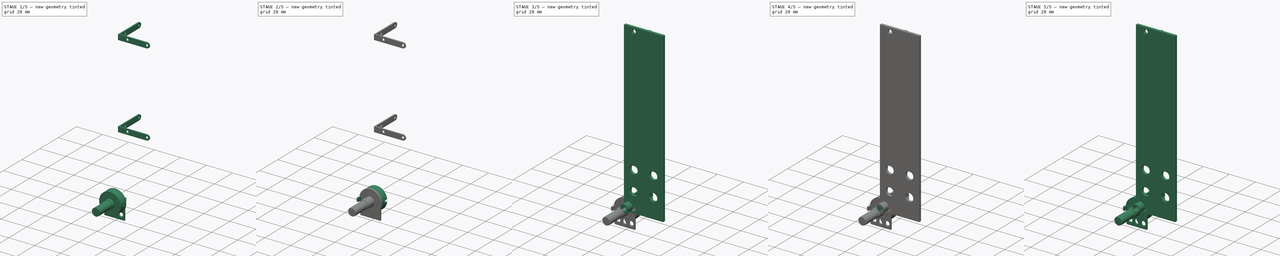
[diagram: build sequence overview — one tinted view per stage of 5, left to right]
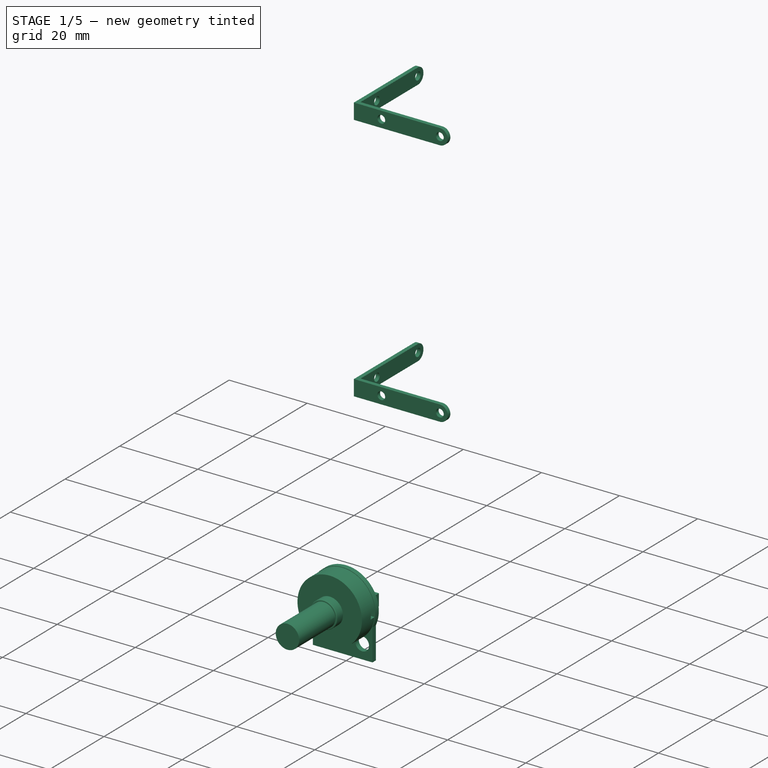
[diagram: stage 1 of 5 — iso view after this stage's code; geometry added in this stage tinted green]
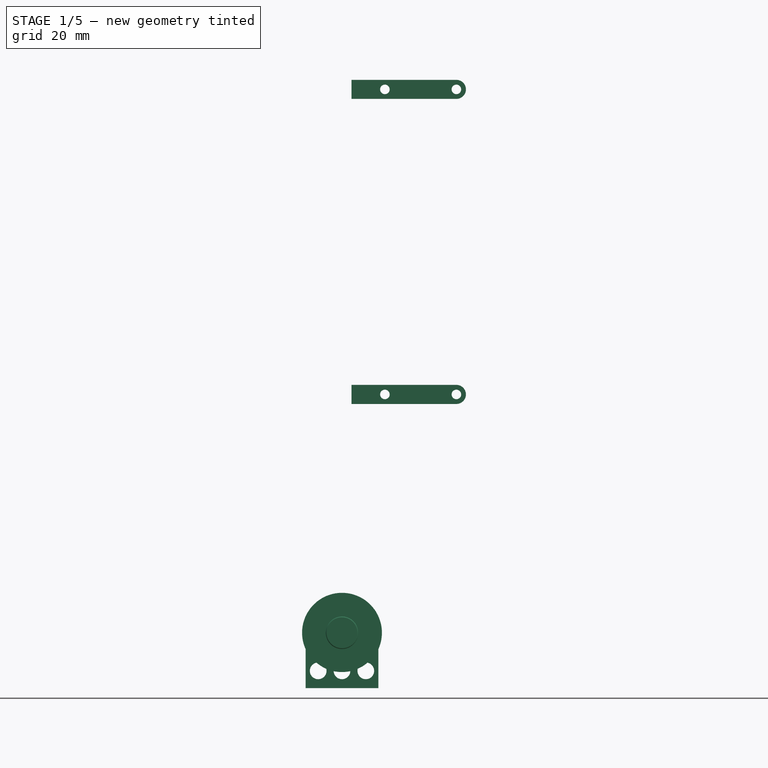
[diagram: stage 1 of 5 — front view after this stage's code; geometry added in this stage tinted green]
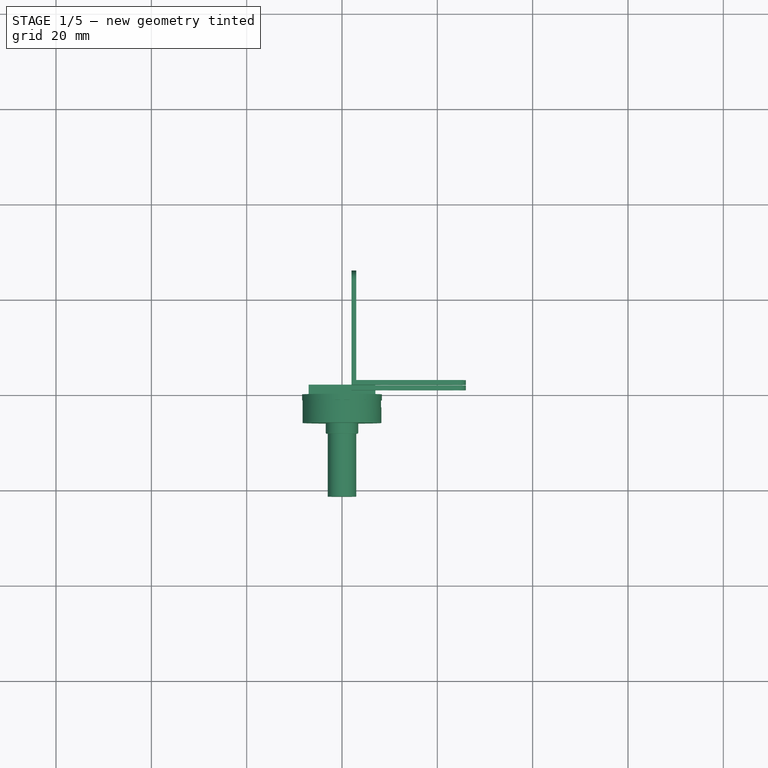
[diagram: stage 1 of 5 — top view after this stage's code; geometry added in this stage tinted green]
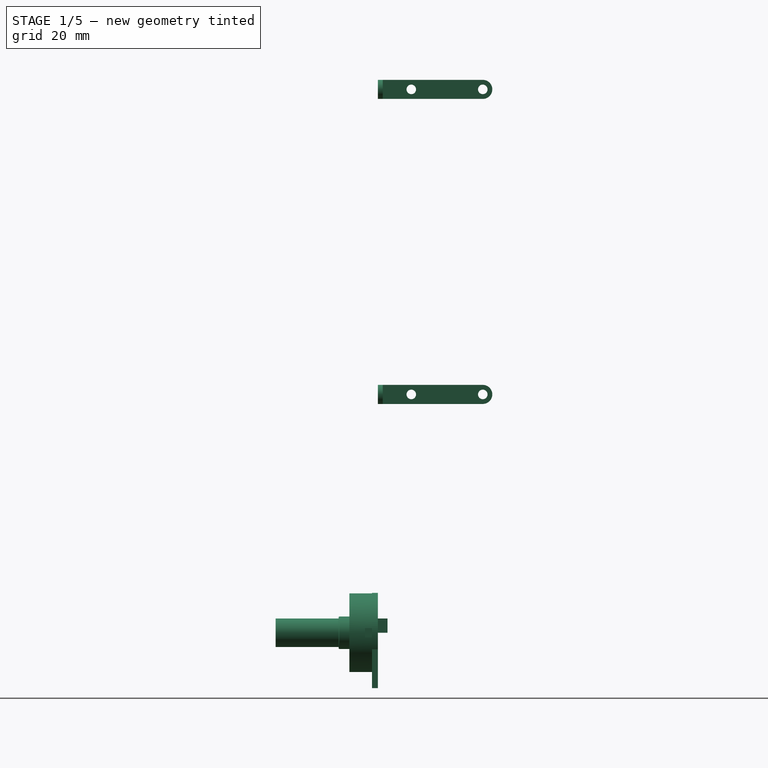
[diagram: stage 1 of 5 — right view after this stage's code; geometry added in this stage tinted green]
FCSTD DOCUMENT  (FreeCAD 0.18R4 (GitTag))
Label: VCO 3340
License: All rights reserved
LicenseURL: http://en.wikipedia.org/wiki/All_rights_reserved
objects: Sketcher::SketchObject×90, PartDesign::Pad×65, PartDesign::Body×36, PartDesign::Pocket×24, PartDesign::Fillet×12, App::Part×8, PartDesign::Hole×5, PartDesign::Chamfer×4, Part::Cut×2, Part::Fuse×2
note: 334 computed .brp shape members not serialized (recipe doc carries the construction recipe); baked Part::Feature solids carry a one-line shape summary decoded from their .brp

FEATURE [PartDesign::Body] Body023  label="Round stuff"
  Group = -> [Sketch013,Pad011]
  Origin = -> Origin027
  Placement = pos=(0,-1.25,0) rot=(0,0,1;0rad)
  Tip = -> Pad011
FEATURE [App::Part] Part  label="Coarse tune"
  Group = -> [Body020,Body021,Body018,Body003,Body022,Body017,Cut,Body019,Body023,Body024]
  Origin = -> Origin026
  Placement = pos=(15,3,100) rot=(0,1,0;-1.5708rad)
FEATURE [Sketcher::SketchObject] Sketch099
  MapMode = 5
  Placement = pos=(0,0,0) rot=(1,0,0;1.5708rad)
  Support = -> [XZ_Plane043]
  sketch-geometry (5):
    g0: LineSegment StartX=-7.625 StartY=-3.4641 StartZ=0 EndX=-7.625 EndY=-11.625 EndZ=0
    g1: LineSegment StartX=-7.625 StartY=-11.625 StartZ=0 EndX=7.625 EndY=-11.625 EndZ=0
    g2: LineSegment StartX=7.625 StartY=-11.625 StartZ=0 EndX=7.625 EndY=-3.4641 EndZ=0
    g3: ArcOfCircle CenterX=0 CenterY=0 CenterZ=0 NormalX=0 NormalY=0 NormalZ=1 AngleXU=0 Radius=8.375 StartAngle=5.85675 EndAngle=9.85121
    g4: GeomPoint X=0 Y=8.375 Z=0
  constraints (14):
    c: Coincident(g0,g1)
    c: Coincident(g1,g2)
    c: Diameter(g3) = 16.75
    c: Vertical(g0)
    c: Vertical(g2)
    c: Horizontal(g1)
    c: Equal(g2,g0)
    c: Coincident(g3,g0)
    c: Coincident(g3,g2)
    c: DistanceX(g1,g1) = 15.25
    c: Coincident(g-1,g3)
    c: DistanceX(g3,g4) = 0
    c: PointOnObject(g4,g3)
    c: DistanceY(g1,g4) = 20
FEATURE [Sketcher::SketchObject] Sketch100
  MapMode = 5
  Support = -> [XY_Plane040]
  sketch-geometry (4):
    g0: LineSegment StartX=-7 StartY=2 StartZ=0 EndX=7 EndY=2 EndZ=0
    g1: LineSegment StartX=7 StartY=2 StartZ=0 EndX=7 EndY=0 EndZ=0
    g2: LineSegment StartX=7 StartY=0 StartZ=0 EndX=-7 EndY=0 EndZ=0
    g3: LineSegment StartX=-7 StartY=0 StartZ=0 EndX=-7 EndY=2 EndZ=0
  constraints (11):
    c: Coincident(g0,g1)
    c: Coincident(g1,g2)
    c: Coincident(g2,g3)
    c: Coincident(g3,g0)
    c: Horizontal(g0)
    c: Horizontal(g2)
    c: Vertical(g1)
    c: Vertical(g3)
    c: DistanceX(g0,g0) = 14
    c: DistanceY(g3,g3) = 2
    c: Symmetric(g1,g2,g-1)
FEATURE [Sketcher::SketchObject] Sketch101
  MapMode = 5
  Placement = pos=(0,0,0) rot=(1,0,0;1.5708rad)
  Support = -> [XZ_Plane039]
  sketch-geometry (10):
    g0: LineSegment StartX=1.775 StartY=-2e-16 StartZ=0 EndX=1.775 EndY=-4.225 EndZ=0
    g1: LineSegment StartX=1.775 StartY=-4.225 StartZ=0 EndX=0.5 EndY=-3.925 EndZ=0
    g2: LineSegment StartX=0.5 StartY=-3.925 StartZ=0 EndX=0.5 EndY=-7.925 EndZ=0
    g3: LineSegment StartX=0.5 StartY=-7.925 StartZ=0 EndX=-0.5 EndY=-7.925 EndZ=0
    g4: LineSegment StartX=-0.5 StartY=-7.925 StartZ=0 EndX=-0.5 EndY=-3.925 EndZ=0
    g5: LineSegment StartX=-0.5 StartY=-3.925 StartZ=0 EndX=-1.775 EndY=-4.225 EndZ=0
    g6: LineSegment StartX=-1.775 StartY=-4.225 StartZ=0 EndX=-1.775 EndY=0 EndZ=0
    g7: ArcOfCircle CenterX=0 CenterY=0 CenterZ=0 NormalX=0 NormalY=0 NormalZ=1 AngleXU=0 Radius=1.775 StartAngle=0 EndAngle=3.14159
    g8: GeomPoint X=0 Y=1.775 Z=0
    g9: Circle CenterX=0 CenterY=0 CenterZ=0 NormalX=0 NormalY=0 NormalZ=1 AngleXU=0 Radius=1.15
  constraints (26):
    c: Coincident(g0,g1)
    c: Coincident(g1,g2)
    c: Coincident(g2,g3)
    c: Coincident(g3,g4)
    c: Coincident(g4,g5)
    c: Coincident(g5,g6)
    c: Vertical(g2)
    c: Vertical(g4)
    c: Vertical(g6)
    c: Vertical(g0)
    c: Horizontal(g3)
    c: DistanceX(g3,g3) = 1
    c: DistanceX(g5,g0) = 3.55
    c: Equal(g2,g4)
    c: Equal(g6,g0)
    c: Equal(g1,g5)
    c: Tangent(g7,g6) = 1.5708
    c: Tangent(g0,g7) = 1.5708
    c: DistanceX(g7,g8) = 0
    c: PointOnObject(g8,g7)
    c: DistanceY(g0,g8) = 6
    c: DistanceY(g2,g8) = 9.7
    c: DistanceY(g2,g2) = 4
    c: Coincident(g9,g7)
    c: Radius(g9) = 1.15
    c: Coincident(g7,g-1)
FEATURE [Sketcher::SketchObject] Sketch103
  MapMode = 5
  Placement = pos=(0,0,0) rot=(1,0,0;1.5708rad)
  Support = -> [XZ_Plane042]
  sketch-geometry (10):
    g0: LineSegment StartX=1.775 StartY=-2e-16 StartZ=0 EndX=1.775 EndY=-4.225 EndZ=0
    g1: LineSegment StartX=1.775 StartY=-4.225 StartZ=0 EndX=0.5 EndY=-3.925 EndZ=0
    g2: LineSegment StartX=0.5 StartY=-3.925 StartZ=0 EndX=0.5 EndY=-7.925 EndZ=0
    g3: LineSegment StartX=0.5 StartY=-7.925 StartZ=0 EndX=-0.5 EndY=-7.925 EndZ=0
    g4: LineSegment StartX=-0.5 StartY=-7.925 StartZ=0 EndX=-0.5 EndY=-3.925 EndZ=0
    g5: LineSegment StartX=-0.5 StartY=-3.925 StartZ=0 EndX=-1.775 EndY=-4.225 EndZ=0
    g6: LineSegment StartX=-1.775 StartY=-4.225 StartZ=0 EndX=-1.775 EndY=0 EndZ=0
    g7: ArcOfCircle CenterX=0 CenterY=0 CenterZ=0 NormalX=0 NormalY=0 NormalZ=1 AngleXU=0 Radius=1.775 StartAngle=0 EndAngle=3.14159
    g8: GeomPoint X=0 Y=1.775 Z=0
    g9: Circle CenterX=0 CenterY=0 CenterZ=0 NormalX=0 NormalY=0 NormalZ=1 AngleXU=0 Radius=1.15
  constraints (26):
    c: Coincident(g0,g1)
    c: Coincident(g1,g2)
    c: Coincident(g2,g3)
    c: Coincident(g3,g4)
    c: Coincident(g4,g5)
    c: Coincident(g5,g6)
    c: Vertical(g2)
    c: Vertical(g4)
    c: Vertical(g6)
    c: Vertical(g0)
    c: Horizontal(g3)
    c: DistanceX(g3,g3) = 1
    c: DistanceX(g5,g0) = 3.55
    c: Equal(g2,g4)
    c: Equal(g6,g0)
    c: Equal(g1,g5)
    c: Tangent(g7,g6) = 1.5708
    c: Tangent(g0,g7) = 1.5708
    c: DistanceX(g7,g8) = 0
    c: PointOnObject(g8,g7)
    c: DistanceY(g0,g8) = 6
    c: DistanceY(g2,g8) = 9.7
    c: DistanceY(g2,g2) = 4
    c: Coincident(g9,g7)
    c: Radius(g9) = 1.15
    c: Coincident(g7,g-1)
FEATURE [Sketcher::SketchObject] Sketch106
  MapMode = 5
  Placement = pos=(0,0,0) rot=(1,0,0;1.5708rad)
  Support = -> [XZ_Plane037]
  sketch-geometry (6):
    g0: LineSegment StartX=-8.0446 StartY=2.3 StartZ=0 EndX=0 EndY=0.1 EndZ=0
    g1: LineSegment StartX=0 StartY=0.1 StartZ=0 EndX=8.0446 EndY=2.3 EndZ=0
    g2: LineSegment StartX=8.0446 StartY=-2.3 StartZ=0 EndX=0 EndY=-0.1 EndZ=0
    g3: LineSegment StartX=0 StartY=-0.1 StartZ=0 EndX=-8.0446 EndY=-2.3 EndZ=0
    g4: ArcOfCircle CenterX=-0.0083879 CenterY=-2.8e-15 CenterZ=0 NormalX=0 NormalY=0 NormalZ=1 AngleXU=0 Radius=8.375 StartAngle=6.00498 EndAngle=6.56139
    g5: ArcOfCircle CenterX=0.0083879 CenterY=-2.5e-15 CenterZ=0 NormalX=0 NormalY=0 NormalZ=1 AngleXU=0 Radius=8.375 StartAngle=2.86339 EndAngle=3.41979
  constraints (19):
    c: Coincident(g0,g1)
    c: Coincident(g2,g3)
    c: Equal(g1,g0)
    c: Equal(g2,g3)
    c: Equal(g0,g3)
    c: Vertical(g0,g3)
    c: DistanceY(g3,g0) = 4.6
    c: Horizontal(g1,g0)
    c: Horizontal(g2,g3)
    c: Coincident(g4,g1)
    c: Distance(g0) = 8.34
    c: Diameter(g4) = 16.75
    c: Diameter(g5) = 16.75
    c: Coincident(g5,g0)
    c: Coincident(g3,g5)
    c: Coincident(g2,g4)
    c: Vertical(g2,g0)
    c: Symmetric(g0,g2,g-1)
    c: DistanceY(g-1,g0) = 0.1
FEATURE [Sketcher::SketchObject] Sketch108
  MapMode = 5
  Placement = pos=(0,0,0) rot=(1,0,0;1.5708rad)
  Support = -> [XZ_Plane038]
  sketch-geometry (10):
    g0: LineSegment StartX=1.775 StartY=-2e-16 StartZ=0 EndX=1.775 EndY=-4.225 EndZ=0
    g1: LineSegment StartX=1.775 StartY=-4.225 StartZ=0 EndX=0.5 EndY=-3.925 EndZ=0
    g2: LineSegment StartX=0.5 StartY=-3.925 StartZ=0 EndX=0.5 EndY=-7.925 EndZ=0
    g3: LineSegment StartX=0.5 StartY=-7.925 StartZ=0 EndX=-0.5 EndY=-7.925 EndZ=0
    g4: LineSegment StartX=-0.5 StartY=-7.925 StartZ=0 EndX=-0.5 EndY=-3.925 EndZ=0
    g5: LineSegment StartX=-0.5 StartY=-3.925 StartZ=0 EndX=-1.775 EndY=-4.225 EndZ=0
    g6: LineSegment StartX=-1.775 StartY=-4.225 StartZ=0 EndX=-1.775 EndY=0 EndZ=0
    g7: ArcOfCircle CenterX=0 CenterY=0 CenterZ=0 NormalX=0 NormalY=0 NormalZ=1 AngleXU=0 Radius=1.775 StartAngle=0 EndAngle=3.14159
    g8: GeomPoint X=0 Y=1.775 Z=0
    g9: Circle CenterX=0 CenterY=0 CenterZ=0 NormalX=0 NormalY=0 NormalZ=1 AngleXU=0 Radius=1.15
  constraints (26):
    c: Coincident(g0,g1)
    c: Coincident(g1,g2)
    c: Coincident(g2,g3)
    c: Coincident(g3,g4)
    c: Coincident(g4,g5)
    c: Coincident(g5,g6)
    c: Vertical(g2)
    c: Vertical(g4)
    c: Vertical(g6)
    c: Vertical(g0)
    c: Horizontal(g3)
    c: DistanceX(g3,g3) = 1
    c: DistanceX(g5,g0) = 3.55
    c: Equal(g2,g4)
    c: Equal(g6,g0)
    c: Equal(g1,g5)
    c: Tangent(g7,g6) = 1.5708
    c: Tangent(g0,g7) = 1.5708
    c: DistanceX(g7,g8) = 0
    c: PointOnObject(g8,g7)
    c: DistanceY(g0,g8) = 6
    c: DistanceY(g2,g8) = 9.7
    c: DistanceY(g2,g2) = 4
    c: Coincident(g9,g7)
    c: Radius(g9) = 1.15
    c: Coincident(g7,g-1)
FEATURE [Sketcher::SketchObject] Sketch110
  MapMode = 5
  Placement = pos=(0,0,0) rot=(1,0,0;1.5708rad)
  Support = -> [XZ_Plane041]
  sketch-geometry (1):
    g0: Circle CenterX=0 CenterY=0 CenterZ=0 NormalX=0 NormalY=0 NormalZ=1 AngleXU=0 Radius=8.25
  constraints (2):
    c: Diameter(g0) = 16.5
    c: Coincident(g0,g-1)
FEATURE [Sketcher::SketchObject] Sketch112
  MapMode = 5
  Placement = pos=(0,0,0) rot=(1,0,0;1.5708rad)
  Support = -> [XZ_Plane035]
  sketch-geometry (1):
    g0: Circle CenterX=0 CenterY=0 CenterZ=0 NormalX=0 NormalY=0 NormalZ=1 AngleXU=0 Radius=3.4
  constraints (2):
    c: Diameter(g0) = 6.8
    c: Coincident(g0,g-1)
FEATURE [Sketcher::SketchObject] Sketch113
  MapMode = 5
  Placement = pos=(0,0,0) rot=(1,0,0;1.5708rad)
  Support = -> [XZ_Plane036]
  sketch-geometry (1):
    g0: Circle CenterX=0 CenterY=0 CenterZ=0 NormalX=0 NormalY=0 NormalZ=1 AngleXU=0 Radius=5.425
  constraints (2):
    c: Diameter(g0) = 10.85
    c: Coincident(g0,g-1)
FEATURE [PartDesign::Pad] Pad060
  Length = 8.25
  Length2 = 100
  Placement = pos=(0,0,0) rot=(1,0,0;1.5708rad)
  Profile = -> Sketch112
  Type = 0
FEATURE [PartDesign::Fillet] Fillet010
  Base = -> Pad060 [Face3]
  BaseFeature = -> Pad060
  Placement = pos=(0,0,0) rot=(1,0,0;1.5708rad)
  Radius = 0.2
FEATURE [Sketcher::SketchObject] Sketch109
  MapMode = 5
  Placement = pos=(0,-8.25,3.6e-15) rot=(1,0,0;1.5708rad)
  Support = -> [Fillet010]
  sketch-geometry (1):
    g0: Circle CenterX=0 CenterY=0 CenterZ=0 NormalX=0 NormalY=0 NormalZ=1 AngleXU=0 Radius=3
  constraints (2):
    c: Diameter(g0) = 6
    c: Coincident(g0,g-1)
FEATURE [PartDesign::Pad] Pad063
  Length = 3
  Length2 = 100
  Profile = -> Sketch100
  Type = 0
FEATURE [PartDesign::Body] Body025  label="Hole006"
  Group = -> [Sketch100,Pad063]
  Origin = -> Origin043
  Placement = pos=(0,0,-9) rot=(0,0,1;0rad)
  Tip = -> Pad063
FEATURE [PartDesign::Pad] Pad064
  Length = 0.5
  Length2 = 100
  Placement = pos=(0,0,0) rot=(1,0,0;1.5708rad)
  Profile = -> Sketch103
  Type = 0
FEATURE [Sketcher::SketchObject] Sketch104
  ExternalGeometry = -> [Pad064]
  MapMode = 5
  Placement = pos=(0,-0.5,2e-16) rot=(1,0,0;1.5708rad)
  Support = -> [Pad064]
  sketch-geometry (2):
    g0: Circle CenterX=0 CenterY=0 CenterZ=0 NormalX=0 NormalY=0 NormalZ=1 AngleXU=0 Radius=1.775
    g1: Circle CenterX=0 CenterY=0 CenterZ=0 NormalX=0 NormalY=0 NormalZ=1 AngleXU=0 Radius=1.15
  constraints (4):
    c: Coincident(g0,g-1)
    c: Tangent(g-3,g0) = -1.5708
    c: Coincident(g1,g0)
    c: Tangent(g1,g-4)
FEATURE [PartDesign::Pad] Pad065
  BaseFeature = -> Pad064
  Length = 1.75
  Length2 = 100
  Placement = pos=(0,0,0) rot=(1,0,0;1.5708rad)
  Profile = -> Sketch104
  Type = 0
FEATURE [PartDesign::Body] Body026  label="Pin 004"
  Group = -> [Sketch103,Pad064,Sketch104,Pad065,Fillet007]
  Origin = -> Origin037
  Placement = pos=(-5,0.5,-8) rot=(0,0,1;0rad)
  Tip = -> Fillet007
FEATURE [PartDesign::Pad] Pad066
  Length = 1.25
  Length2 = 100
  Placement = pos=(0,0,0) rot=(1,0,0;1.5708rad)
  Profile = -> Sketch099
  Type = 0
FEATURE [Sketcher::SketchObject] Sketch111
  ExternalGeometry = -> [Pad066]
  MapMode = 5
  Placement = pos=(0,-1.25,6e-16) rot=(1,0,0;1.5708rad)
  Support = -> [Pad066]
  sketch-geometry (3):
    g0: Circle CenterX=-4.995 CenterY=-7.995 CenterZ=0 NormalX=0 NormalY=0 NormalZ=1 AngleXU=0 Radius=1.75
    g1: Circle CenterX=0 CenterY=-7.995 CenterZ=0 NormalX=0 NormalY=0 NormalZ=1 AngleXU=0 Radius=1.75
    g2: Circle CenterX=4.995 CenterY=-7.995 CenterZ=0 NormalX=0 NormalY=0 NormalZ=1 AngleXU=0 Radius=1.75
  constraints (8):
    c: Diameter(g0) = 3.5
    c: DistanceY(g-4,g0) = 3.63
    c: Equal(g0,g1) = 3.5
    c: DistanceX(g1,g-1) = 0
    c: Horizontal(g1,g0)
    c: Equal(g0,g2) = 3.5
    c: Symmetric(g2,g0,g1)
    c: DistanceX(g-4,g0) = 2.63
FEATURE [PartDesign::Pad] Pad067
  Length = 6
  Length2 = 100
  Placement = pos=(0,0,0) rot=(1,0,0;1.5708rad)
  Profile = -> Sketch110
  Type = 0
FEATURE [Sketcher::SketchObject] Sketch102
  ExternalGeometry = -> [Pad067]
  MapMode = 5
  Placement = pos=(0,0,0) rot=(-1,0,0;1.5708rad)
  Support = -> [Pad067]
  sketch-geometry (5):
    g0: LineSegment StartX=6.35 StartY=0.975 StartZ=0 EndX=8.25 EndY=0.975 EndZ=0
    g1: LineSegment StartX=8.25 StartY=0.975 StartZ=0 EndX=8.25 EndY=-0.975 EndZ=0
    g2: LineSegment StartX=8.25 StartY=-0.975 StartZ=0 EndX=6.35 EndY=-0.975 EndZ=0
    g3: LineSegment StartX=6.35 StartY=0.975 StartZ=0 EndX=6.35 EndY=0 EndZ=0
    g4: LineSegment StartX=6.35 StartY=-0.975 StartZ=0 EndX=6.35 EndY=0 EndZ=0
  constraints (14):
    c: Coincident(g0,g1)
    c: Coincident(g1,g2)
    c: Horizontal(g0)
    c: Horizontal(g2)
    c: Vertical(g1)
    c: Coincident(g4,g3)
    c: Coincident(g3,g0)
    c: Coincident(g4,g2)
    c: Vertical(g4)
    c: Symmetric(g0,g2,g3)
    c: DistanceY(g1,g1) = 1.95
    c: DistanceX(g0,g0) = 1.9
    c: Tangent(g1,g-3)
    c: DistanceY(g-3,g3) = 0
FEATURE [PartDesign::Pocket] Pocket022
  BaseFeature = -> Pad067
  Length = 2.7
  Length2 = 100
  Placement = pos=(0,0,0) rot=(1,0,0;1.5708rad)
  Profile = -> Sketch102
  Type = 0
FEATURE [PartDesign::Pocket] Pocket023
  BaseFeature = -> Pad066
  Length = 5
  Length2 = 100
  Placement = pos=(0,0,0) rot=(1,0,0;1.5708rad)
  Profile = -> Sketch111
  Type = 0
FEATURE [PartDesign::Body] Body028  label="PCB001"
  Group = -> [Sketch099,Pad066,Sketch111,Pocket023]
  Origin = -> Origin038
  Tip = -> Pocket023
FEATURE [PartDesign::Pad] Pad068
  Length = 0.5
  Length2 = 100
  Placement = pos=(0,0,0) rot=(1,0,0;1.5708rad)
  Profile = -> Sketch101
  Type = 0
FEATURE [Sketcher::SketchObject] Sketch107
  ExternalGeometry = -> [Pad068]
  MapMode = 5
  Placement = pos=(0,-0.5,2e-16) rot=(1,0,0;1.5708rad)
  Support = -> [Pad068]
  sketch-geometry (2):
    g0: Circle CenterX=0 CenterY=0 CenterZ=0 NormalX=0 NormalY=0 NormalZ=1 AngleXU=0 Radius=1.775
    g1: Circle CenterX=0 CenterY=0 CenterZ=0 NormalX=0 NormalY=0 NormalZ=1 AngleXU=0 Radius=1.15
  constraints (4):
    c: Coincident(g0,g-1)
    c: Tangent(g-3,g0) = -1.5708
    c: Coincident(g1,g0)
    c: Tangent(g1,g-4)
FEATURE [PartDesign::Pad] Pad062
  BaseFeature = -> Pad068
  Length = 1.75
  Length2 = 100
  Placement = pos=(0,0,0) rot=(1,0,0;1.5708rad)
  Profile = -> Sketch107
  Type = 0
FEATURE [PartDesign::Body] Body031  label="Pin 005"
  Group = -> [Sketch101,Pad068,Sketch107,Pad062,Fillet006]
  Origin = -> Origin034
  Placement = pos=(5,0.5,-8) rot=(0,0,1;0rad)
  Tip = -> Fillet006
FEATURE [PartDesign::Pad] Pad069
  Length = 0.5
  Length2 = 100
  Placement = pos=(0,0,0) rot=(1,0,0;1.5708rad)
  Profile = -> Sketch108
  Type = 0
FEATURE [Sketcher::SketchObject] Sketch105
  ExternalGeometry = -> [Pad069]
  MapMode = 5
  Placement = pos=(0,-0.5,2e-16) rot=(1,0,0;1.5708rad)
  Support = -> [Pad069]
  sketch-geometry (2):
    g0: Circle CenterX=0 CenterY=0 CenterZ=0 NormalX=0 NormalY=0 NormalZ=1 AngleXU=0 Radius=1.775
    g1: Circle CenterX=0 CenterY=0 CenterZ=0 NormalX=0 NormalY=0 NormalZ=1 AngleXU=0 Radius=1.15
  constraints (4):
    c: Coincident(g0,g-1)
    c: Tangent(g-3,g0) = -1.5708
    c: Coincident(g1,g0)
    c: Tangent(g1,g-4)
FEATURE [PartDesign::Pad] Pad061
  BaseFeature = -> Pad069
  Length = 1.75
  Length2 = 100
  Placement = pos=(0,0,0) rot=(1,0,0;1.5708rad)
  Profile = -> Sketch105
  Type = 0
FEATURE [PartDesign::Fillet] Fillet008
  Base = -> Pad061 [Face13]
  BaseFeature = -> Pad061
  Placement = pos=(0,0,0) rot=(1,0,0;1.5708rad)
  Radius = 0.1
FEATURE [PartDesign::Body] Body032  label="Pin 006"
  Group = -> [Sketch108,Pad069,Sketch105,Pad061,Fillet008]
  Origin = -> Origin035
  Placement = pos=(0,0.5,-8) rot=(0,0,1;0rad)
  Tip = -> Fillet008
FEATURE [PartDesign::Pad] Pad070
  Length = 1.25
  Length2 = 100
  Placement = pos=(0,0,0) rot=(1,0,0;1.5708rad)
  Profile = -> Sketch106
  Type = 0
FEATURE [PartDesign::Body] Body030  label="Ears001"
  Group = -> [Sketch106,Pad070,Sketch114,Pad071]
  Origin = -> Origin036
  Placement = pos=(0,-1.25,0) rot=(0,0,1;0rad)
  Tip = -> Pad071
FEATURE [PartDesign::Pad] Pad072
  BaseFeature = -> Fillet010
  Length = 13.2
  Length2 = 100
  Placement = pos=(0,0,0) rot=(1,0,0;1.5708rad)
  Profile = -> Sketch109
  Type = 0
FEATURE [PartDesign::Body] Body029  label="Shaft001"
  Group = -> [Sketch112,Pad060,Fillet010,Sketch109,Pad072,Fillet011]
  Origin = -> Origin040
  Placement = pos=(0,-1.25,0) rot=(0,0,1;0rad)
  Tip = -> Fillet011
FEATURE [PartDesign::Pad] Pad073
  Length = 1.5
  Length2 = 100
  Placement = pos=(0,0,0) rot=(1,0,0;1.5708rad)
  Profile = -> Sketch113
  Type = 0
FEATURE [PartDesign::Body] Body033  label="Round stuff001"
  Group = -> [Sketch113,Pad073]
  Origin = -> Origin042
  Placement = pos=(0,-1.25,0) rot=(0,0,1;0rad)
  Tip = -> Pad073
FEATURE [App::Part] Part008  label="PWM"
  Group = -> [Body027,Body028,Body026,Body032,Body031,Body025,Cut001,Body029,Body033,Body030]
  Origin = -> Origin041
  Placement = pos=(15,3,70) rot=(0,1,0;-1.5708rad)
FEATURE [PartDesign::Body] Body034
  Origin = -> Origin045
FEATURE [App::Part] Part009
  Group = -> [Body034]
  Origin = -> Origin044
FEATURE [Sketcher::SketchObject] Sketch115
  MapMode = 5
  Support = -> [XY_Plane046]
  sketch-geometry (7):
    g0: LineSegment StartX=0 StartY=22 StartZ=0 EndX=0 EndY=0 EndZ=0
    g1: LineSegment StartX=0 StartY=0 StartZ=0 EndX=4 EndY=0 EndZ=0
    g2: LineSegment StartX=4 StartY=0 StartZ=0 EndX=4 EndY=22 EndZ=0
    g3: ArcOfCircle CenterX=2 CenterY=22 CenterZ=0 NormalX=0 NormalY=0 NormalZ=1 AngleXU=0 Radius=2 StartAngle=0 EndAngle=3.14159
    g4: GeomPoint X=2 Y=24 Z=0
    g5: Circle CenterX=2 CenterY=22 CenterZ=0 NormalX=0 NormalY=0 NormalZ=1 AngleXU=0 Radius=1
    g6: Circle CenterX=2 CenterY=7 CenterZ=0 NormalX=0 NormalY=0 NormalZ=1 AngleXU=0 Radius=1
  constraints (19):
    c: Coincident(g0,g1)
    c: Coincident(g1,g2)
    c: Coincident(g0,g-1)
    c: Horizontal(g1)
    c: Vertical(g2)
    c: Equal(g0,g2)
    c: Tangent(g0,g3) = -1.5708
    c: Coincident(g3,g0)
    c: Coincident(g3,g2)
    c: Vertical(g0)
    c: Vertical(g4,g3)
    c: PointOnObject(g4,g3)
    c: DistanceY(g0,g4) = 24
    c: DistanceX(g1,g1) = 4
    c: Coincident(g5,g3)
    c: Diameter(g5) = 2
    c: Equal(g5,g6) = 2
    c: Vertical(g6,g3)
    c: DistanceY(g1,g6) = 7
FEATURE [PartDesign::Pad] Pad074  label="Flat"
  Length = 1
  Length2 = 100
  Profile = -> Sketch115
  Type = 0
FEATURE [Sketcher::SketchObject] Sketch116
  MapMode = 5
  Placement = pos=(0,1,0) rot=(1,0,0;1.5708rad)
  sketch-geometry (7):
    g0: LineSegment StartX=0 StartY=22 StartZ=0 EndX=0 EndY=0 EndZ=0
    g1: LineSegment StartX=0 StartY=0 StartZ=0 EndX=4 EndY=0 EndZ=0
    g2: LineSegment StartX=4 StartY=0 StartZ=0 EndX=4 EndY=22 EndZ=0
    g3: ArcOfCircle CenterX=2 CenterY=22 CenterZ=0 NormalX=0 NormalY=0 NormalZ=1 AngleXU=0 Radius=2 StartAngle=0 EndAngle=3.14159
    g4: GeomPoint X=2 Y=24 Z=0
    g5: Circle CenterX=2 CenterY=22 CenterZ=0 NormalX=0 NormalY=0 NormalZ=1 AngleXU=0 Radius=1
    g6: Circle CenterX=2 CenterY=7 CenterZ=0 NormalX=0 NormalY=0 NormalZ=1 AngleXU=0 Radius=1
  constraints (19):
    c: Coincident(g0,g1)
    c: Coincident(g1,g2)
    c: Coincident(g0,g-1)
    c: Horizontal(g1)
    c: Vertical(g2)
    c: Equal(g0,g2)
    c: Tangent(g0,g3) = -1.5708
    c: Coincident(g3,g0)
    c: Coincident(g3,g2)
    c: Vertical(g0)
    c: Vertical(g4,g3)
    c: PointOnObject(g4,g3)
    c: DistanceY(g0,g4) = 24
    c: DistanceX(g1,g1) = 4
    c: Coincident(g5,g3)
    c: Diameter(g5) = 2
    c: Equal(g5,g6) = 2
    c: Vertical(g6,g3)
    c: DistanceY(g1,g6) = 7
FEATURE [PartDesign::Pad] Pad075  label="High"
  BaseFeature = -> Pad074
  Length = 1
  Length2 = 100
  Profile = -> Sketch116
  Type = 0
FEATURE [Part::Fuse] Fusion
  Base = -> Pad074
  Placement = pos=(2,0,52) rot=(0,1,0;1.5708rad)
  Tool = -> Pad075
FEATURE [Sketcher::SketchObject] Sketch117
  MapMode = 5
  Placement = pos=(0,1,0) rot=(1,0,0;1.5708rad)
  sketch-geometry (7):
    g0: LineSegment StartX=0 StartY=22 StartZ=0 EndX=0 EndY=0 EndZ=0
    g1: LineSegment StartX=0 StartY=0 StartZ=0 EndX=4 EndY=0 EndZ=0
    g2: LineSegment StartX=4 StartY=0 StartZ=0 EndX=4 EndY=22 EndZ=0
    g3: ArcOfCircle CenterX=2 CenterY=22 CenterZ=0 NormalX=0 NormalY=0 NormalZ=1 AngleXU=0 Radius=2 StartAngle=0 EndAngle=3.14159
    g4: GeomPoint X=2 Y=24 Z=0
    g5: Circle CenterX=2 CenterY=22 CenterZ=0 NormalX=0 NormalY=0 NormalZ=1 AngleXU=0 Radius=1
    g6: Circle CenterX=2 CenterY=7 CenterZ=0 NormalX=0 NormalY=0 NormalZ=1 AngleXU=0 Radius=1
  constraints (19):
    c: Coincident(g0,g1)
    c: Coincident(g1,g2)
    c: Coincident(g0,g-1)
    c: Horizontal(g1)
    c: Vertical(g2)
    c: Equal(g0,g2)
    c: Tangent(g0,g3) = -1.5708
    c: Coincident(g3,g0)
    c: Coincident(g3,g2)
    c: Vertical(g0)
    c: Vertical(g4,g3)
    c: PointOnObject(g4,g3)
    c: DistanceY(g0,g4) = 24
    c: DistanceX(g1,g1) = 4
    c: Coincident(g5,g3)
    c: Diameter(g5) = 2
    c: Equal(g5,g6) = 2
    c: Vertical(g6,g3)
    c: DistanceY(g1,g6) = 7
FEATURE [Sketcher::SketchObject] Sketch118
  MapMode = 5
  Support = -> [XY_Plane047]
  sketch-geometry (7):
    g0: LineSegment StartX=0 StartY=22 StartZ=0 EndX=0 EndY=0 EndZ=0
    g1: LineSegment StartX=0 StartY=0 StartZ=0 EndX=4 EndY=0 EndZ=0
    g2: LineSegment StartX=4 StartY=0 StartZ=0 EndX=4 EndY=22 EndZ=0
    g3: ArcOfCircle CenterX=2 CenterY=22 CenterZ=0 NormalX=0 NormalY=0 NormalZ=1 AngleXU=0 Radius=2 StartAngle=0 EndAngle=3.14159
    g4: GeomPoint X=2 Y=24 Z=0
    g5: Circle CenterX=2 CenterY=22 CenterZ=0 NormalX=0 NormalY=0 NormalZ=1 AngleXU=0 Radius=1
    g6: Circle CenterX=2 CenterY=7 CenterZ=0 NormalX=0 NormalY=0 NormalZ=1 AngleXU=0 Radius=1
  constraints (19):
    c: Coincident(g0,g1)
    c: Coincident(g1,g2)
    c: Coincident(g0,g-1)
    c: Horizontal(g1)
    c: Vertical(g2)
    c: Equal(g0,g2)
    c: Tangent(g0,g3) = -1.5708
    c: Coincident(g3,g0)
    c: Coincident(g3,g2)
    c: Vertical(g0)
    c: Vertical(g4,g3)
    c: PointOnObject(g4,g3)
    c: DistanceY(g0,g4) = 24
    c: DistanceX(g1,g1) = 4
    c: Coincident(g5,g3)
    c: Diameter(g5) = 2
    c: Equal(g5,g6) = 2
    c: Vertical(g6,g3)
    c: DistanceY(g1,g6) = 7
FEATURE [PartDesign::Pad] Pad077  label="Flat001"
  Length = 1
  Length2 = 100
  Profile = -> Sketch118
  Type = 0
FEATURE [PartDesign::Pad] Pad076  label="High001"
  BaseFeature = -> Pad077
  Length = 1
  Length2 = 100
  Profile = -> Sketch117
  Type = 0
FEATURE [Part::Fuse] Fusion001
  Base = -> Pad077
  Placement = pos=(2,0,116) rot=(0,1,0;1.5708rad)
  Tool = -> Pad076
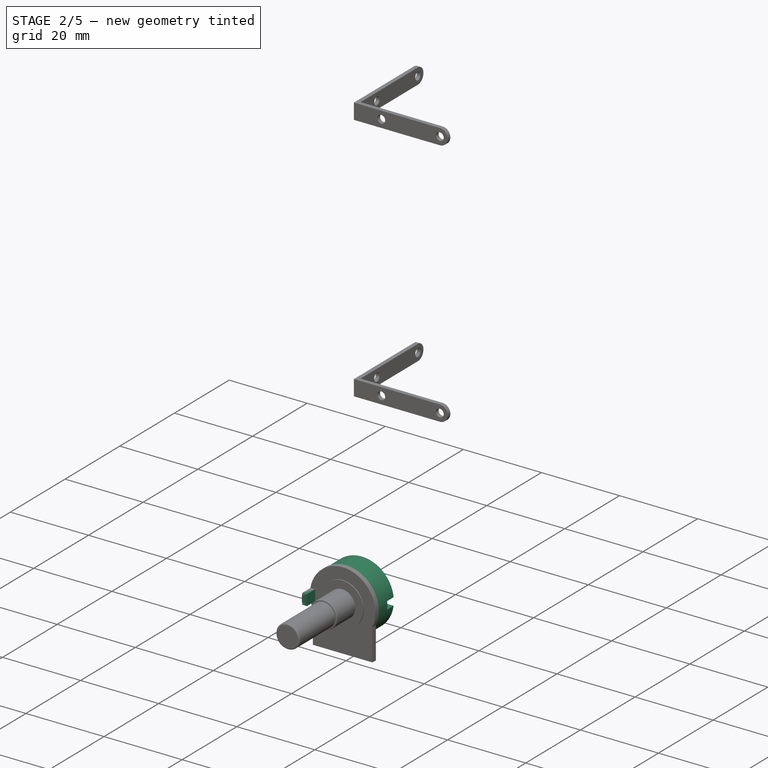
[diagram: stage 2 of 5 — iso view after this stage's code; geometry added in this stage tinted green]
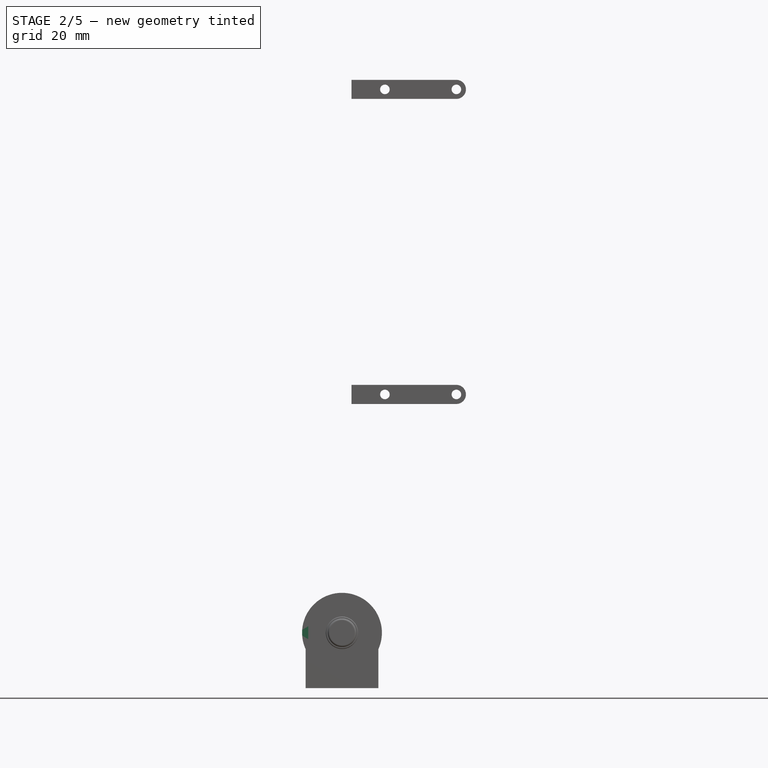
[diagram: stage 2 of 5 — front view after this stage's code; geometry added in this stage tinted green]
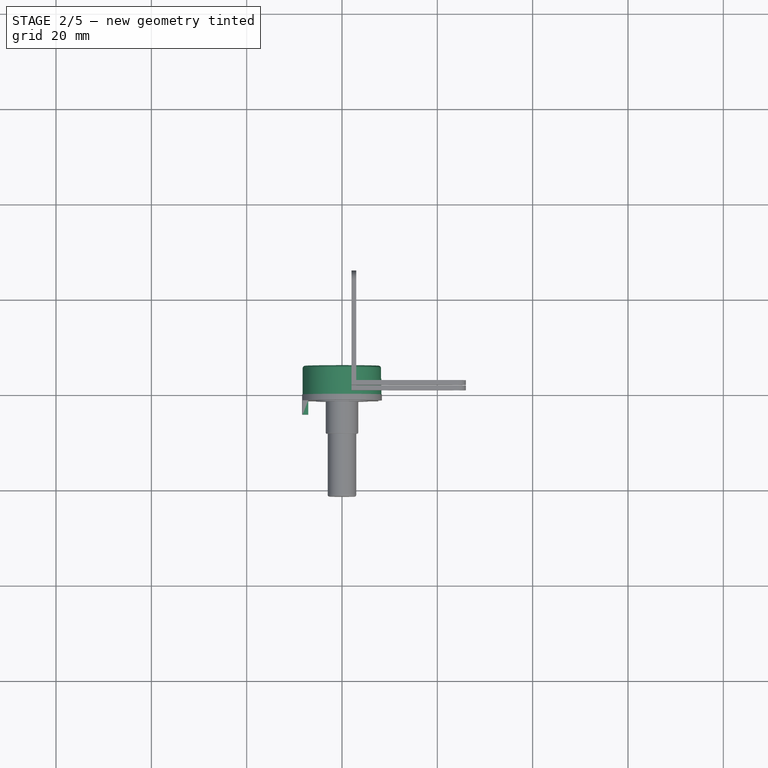
[diagram: stage 2 of 5 — top view after this stage's code; geometry added in this stage tinted green]
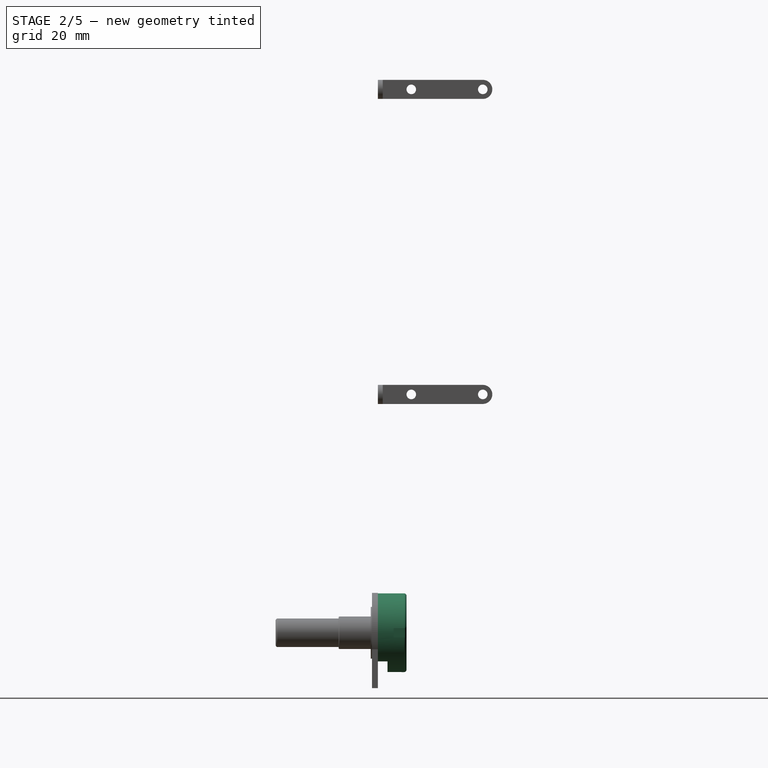
[diagram: stage 2 of 5 — right view after this stage's code; geometry added in this stage tinted green]
FEATURE [PartDesign::Pad] Pad058
  Length = 1.25
  Length2 = 100
  Placement = pos=(0,0,0) rot=(1,0,0;1.5708rad)
  Profile = -> Sketch095
  Type = 0
FEATURE [PartDesign::Pad] Pad059
  Length = 6
  Length2 = 100
  Placement = pos=(0,0,0) rot=(1,0,0;1.5708rad)
  Profile = -> Sketch097
  Type = 0
FEATURE [Sketcher::SketchObject] Sketch096
  ExternalGeometry = -> [Pad059]
  MapMode = 5
  Placement = pos=(0,0,0) rot=(-1,0,0;1.5708rad)
  Support = -> [Pad059]
  sketch-geometry (5):
    g0: LineSegment StartX=6.35 StartY=0.975 StartZ=0 EndX=8.25 EndY=0.975 EndZ=0
    g1: LineSegment StartX=8.25 StartY=0.975 StartZ=0 EndX=8.25 EndY=-0.975 EndZ=0
    g2: LineSegment StartX=8.25 StartY=-0.975 StartZ=0 EndX=6.35 EndY=-0.975 EndZ=0
    g3: LineSegment StartX=6.35 StartY=0.975 StartZ=0 EndX=6.35 EndY=0 EndZ=0
    g4: LineSegment StartX=6.35 StartY=-0.975 StartZ=0 EndX=6.35 EndY=0 EndZ=0
  constraints (14):
    c: Coincident(g0,g1)
    c: Coincident(g1,g2)
    c: Horizontal(g0)
    c: Horizontal(g2)
    c: Vertical(g1)
    c: Coincident(g4,g3)
    c: Coincident(g3,g0)
    c: Coincident(g4,g2)
    c: Vertical(g4)
    c: Symmetric(g0,g2,g3)
    c: DistanceY(g1,g1) = 1.95
    c: DistanceX(g0,g0) = 1.9
    c: Tangent(g1,g-3)
    c: DistanceY(g-3,g3) = 0
FEATURE [PartDesign::Pocket] Pocket020
  BaseFeature = -> Pad059
  Length = 2.7
  Length2 = 100
  Placement = pos=(0,0,0) rot=(1,0,0;1.5708rad)
  Profile = -> Sketch096
  Type = 0
FEATURE [PartDesign::Fillet] Fillet
  Base = -> Pocket020 [Face4]
  BaseFeature = -> Pocket020
  Placement = pos=(0,0,0) rot=(1,0,0;1.5708rad)
  Radius = 0.5
FEATURE [PartDesign::Pad] Pad004
  Length = 0.5
  Length2 = 100
  Placement = pos=(0,0,0) rot=(1,0,0;1.5708rad)
  Profile = -> Sketch005
  Type = 0
FEATURE [PartDesign::Body] Body003  label="Pin 2"
  Group = -> [Sketch005,Pad004,Sketch006,Pad005,Fillet002]
  Origin = -> Origin031
  Placement = pos=(0,0.5,-8) rot=(0,0,1;0rad)
  Tip = -> Fillet002
FEATURE [Sketcher::SketchObject] Sketch014
  MapMode = 5
  Placement = pos=(0,0,0) rot=(1,0,0;1.5708rad)
  Support = -> [XZ_Plane032]
  sketch-geometry (6):
    g0: LineSegment StartX=-8.0446 StartY=2.3 StartZ=0 EndX=0 EndY=0.1 EndZ=0
    g1: LineSegment StartX=0 StartY=0.1 StartZ=0 EndX=8.0446 EndY=2.3 EndZ=0
    g2: LineSegment StartX=8.0446 StartY=-2.3 StartZ=0 EndX=0 EndY=-0.1 EndZ=0
    g3: LineSegment StartX=0 StartY=-0.1 StartZ=0 EndX=-8.0446 EndY=-2.3 EndZ=0
    g4: ArcOfCircle CenterX=-0.0083879 CenterY=-2.8e-15 CenterZ=0 NormalX=0 NormalY=0 NormalZ=1 AngleXU=0 Radius=8.375 StartAngle=6.00498 EndAngle=6.56139
    g5: ArcOfCircle CenterX=0.0083879 CenterY=-2.5e-15 CenterZ=0 NormalX=0 NormalY=0 NormalZ=1 AngleXU=0 Radius=8.375 StartAngle=2.86339 EndAngle=3.41979
  constraints (19):
    c: Coincident(g0,g1)
    c: Coincident(g2,g3)
    c: Equal(g1,g0)
    c: Equal(g2,g3)
    c: Equal(g0,g3)
    c: Vertical(g0,g3)
    c: DistanceY(g3,g0) = 4.6
    c: Horizontal(g1,g0)
    c: Horizontal(g2,g3)
    c: Coincident(g4,g1)
    c: Distance(g0) = 8.34
    c: Diameter(g4) = 16.75
    c: Diameter(g5) = 16.75
    c: Coincident(g5,g0)
    c: Coincident(g3,g5)
    c: Coincident(g2,g4)
    c: Vertical(g2,g0)
    c: Symmetric(g0,g2,g-1)
    c: DistanceY(g-1,g0) = 0.1
FEATURE [Sketcher::SketchObject] Sketch007
  MapMode = 5
  Placement = pos=(0,0,0) rot=(1,0,0;1.5708rad)
  Support = -> [XZ_Plane029]
  sketch-geometry (10):
    g0: LineSegment StartX=1.775 StartY=-2e-16 StartZ=0 EndX=1.775 EndY=-4.225 EndZ=0
    g1: LineSegment StartX=1.775 StartY=-4.225 StartZ=0 EndX=0.5 EndY=-3.925 EndZ=0
    g2: LineSegment StartX=0.5 StartY=-3.925 StartZ=0 EndX=0.5 EndY=-7.925 EndZ=0
    g3: LineSegment StartX=0.5 StartY=-7.925 StartZ=0 EndX=-0.5 EndY=-7.925 EndZ=0
    g4: LineSegment StartX=-0.5 StartY=-7.925 StartZ=0 EndX=-0.5 EndY=-3.925 EndZ=0
    g5: LineSegment StartX=-0.5 StartY=-3.925 StartZ=0 EndX=-1.775 EndY=-4.225 EndZ=0
    g6: LineSegment StartX=-1.775 StartY=-4.225 StartZ=0 EndX=-1.775 EndY=0 EndZ=0
    g7: ArcOfCircle CenterX=0 CenterY=0 CenterZ=0 NormalX=0 NormalY=0 NormalZ=1 AngleXU=0 Radius=1.775 StartAngle=0 EndAngle=3.14159
    g8: GeomPoint X=0 Y=1.775 Z=0
    g9: Circle CenterX=0 CenterY=0 CenterZ=0 NormalX=0 NormalY=0 NormalZ=1 AngleXU=0 Radius=1.15
  constraints (26):
    c: Coincident(g0,g1)
    c: Coincident(g1,g2)
    c: Coincident(g2,g3)
    c: Coincident(g3,g4)
    c: Coincident(g4,g5)
    c: Coincident(g5,g6)
    c: Vertical(g2)
    c: Vertical(g4)
    c: Vertical(g6)
    c: Vertical(g0)
    c: Horizontal(g3)
    c: DistanceX(g3,g3) = 1
    c: DistanceX(g5,g0) = 3.55
    c: Equal(g2,g4)
    c: Equal(g6,g0)
    c: Equal(g1,g5)
    c: Tangent(g7,g6) = 1.5708
    c: Tangent(g0,g7) = 1.5708
    c: DistanceX(g7,g8) = 0
    c: PointOnObject(g8,g7)
    c: DistanceY(g0,g8) = 6
    c: DistanceY(g2,g8) = 9.7
    c: DistanceY(g2,g2) = 4
    c: Coincident(g9,g7)
    c: Radius(g9) = 1.15
    c: Coincident(g7,g-1)
FEATURE [PartDesign::Pad] Pad006
  Length = 0.5
  Length2 = 100
  Placement = pos=(0,0,0) rot=(1,0,0;1.5708rad)
  Profile = -> Sketch007
  Type = 0
FEATURE [Sketcher::SketchObject] Sketch008
  ExternalGeometry = -> [Pad006]
  MapMode = 5
  Placement = pos=(0,-0.5,2e-16) rot=(1,0,0;1.5708rad)
  Support = -> [Pad006]
  sketch-geometry (2):
    g0: Circle CenterX=0 CenterY=0 CenterZ=0 NormalX=0 NormalY=0 NormalZ=1 AngleXU=0 Radius=1.775
    g1: Circle CenterX=0 CenterY=0 CenterZ=0 NormalX=0 NormalY=0 NormalZ=1 AngleXU=0 Radius=1.15
  constraints (4):
    c: Coincident(g0,g-1)
    c: Tangent(g-3,g0) = -1.5708
    c: Coincident(g1,g0)
    c: Tangent(g1,g-4)
FEATURE [PartDesign::Pad] Pad007
  BaseFeature = -> Pad006
  Length = 1.75
  Length2 = 100
  Placement = pos=(0,0,0) rot=(1,0,0;1.5708rad)
  Profile = -> Sketch008
  Type = 0
FEATURE [Sketcher::SketchObject] Sketch009
  MapMode = 5
  Support = -> [XY_Plane029]
  sketch-geometry (4):
    g0: LineSegment StartX=-7 StartY=2 StartZ=0 EndX=7 EndY=2 EndZ=0
    g1: LineSegment StartX=7 StartY=2 StartZ=0 EndX=7 EndY=0 EndZ=0
    g2: LineSegment StartX=7 StartY=0 StartZ=0 EndX=-7 EndY=0 EndZ=0
    g3: LineSegment StartX=-7 StartY=0 StartZ=0 EndX=-7 EndY=2 EndZ=0
  constraints (11):
    c: Coincident(g0,g1)
    c: Coincident(g1,g2)
    c: Coincident(g2,g3)
    c: Coincident(g3,g0)
    c: Horizontal(g0)
    c: Horizontal(g2)
    c: Vertical(g1)
    c: Vertical(g3)
    c: DistanceX(g0,g0) = 14
    c: DistanceY(g3,g3) = 2
    c: Symmetric(g1,g2,g-1)
FEATURE [PartDesign::Pad] Pad008
  Length = 3
  Length2 = 100
  Profile = -> Sketch009
  Type = 0
FEATURE [PartDesign::Body] Body017  label="Hole005"
  Group = -> [Sketch009,Pad008]
  Origin = -> Origin028
  Placement = pos=(0,0,-9) rot=(0,0,1;0rad)
  Tip = -> Pad008
FEATURE [Sketcher::SketchObject] Sketch011
  MapMode = 5
  Placement = pos=(0,0,0) rot=(1,0,0;1.5708rad)
  Support = -> [XZ_Plane026]
  sketch-geometry (1):
    g0: Circle CenterX=0 CenterY=0 CenterZ=0 NormalX=0 NormalY=0 NormalZ=1 AngleXU=0 Radius=3.4
  constraints (2):
    c: Diameter(g0) = 6.8
    c: Coincident(g0,g-1)
FEATURE [PartDesign::Pad] Pad009
  Length = 8.25
  Length2 = 100
  Placement = pos=(0,0,0) rot=(1,0,0;1.5708rad)
  Profile = -> Sketch011
  Type = 0
FEATURE [PartDesign::Body] Body021  label="PCB"
  Group = -> [Sketch095,Pad058,Sketch010,Pocket021]
  Origin = -> Origin029
  Tip = -> Pocket021
FEATURE [Sketcher::SketchObject] Sketch013
  MapMode = 5
  Placement = pos=(0,0,0) rot=(1,0,0;1.5708rad)
  Support = -> [XZ_Plane033]
  sketch-geometry (1):
    g0: Circle CenterX=0 CenterY=0 CenterZ=0 NormalX=0 NormalY=0 NormalZ=1 AngleXU=0 Radius=5.425
  constraints (2):
    c: Diameter(g0) = 10.85
    c: Coincident(g0,g-1)
FEATURE [PartDesign::Fillet] Fillet003
  Base = -> Pad007 [Face13]
  BaseFeature = -> Pad007
  Placement = pos=(0,0,0) rot=(1,0,0;1.5708rad)
  Radius = 0.1
FEATURE [PartDesign::Body] Body022  label="Pin 3"
  Group = -> [Sketch007,Pad006,Sketch008,Pad007,Fillet003]
  Origin = -> Origin032
  Placement = pos=(5,0.5,-8) rot=(0,0,1;0rad)
  Tip = -> Fillet003
FEATURE [Part::Cut] Cut  label="Metal case"
  Base = -> Body020
  Tool = -> Body017
FEATURE [PartDesign::Fillet] Fillet004
  Base = -> Pad009 [Face3]
  BaseFeature = -> Pad009
  Placement = pos=(0,0,0) rot=(1,0,0;1.5708rad)
  Radius = 0.2
FEATURE [Sketcher::SketchObject] Sketch012
  MapMode = 5
  Placement = pos=(0,-8.25,3.6e-15) rot=(1,0,0;1.5708rad)
  Support = -> [Fillet004]
  sketch-geometry (1):
    g0: Circle CenterX=0 CenterY=0 CenterZ=0 NormalX=0 NormalY=0 NormalZ=1 AngleXU=0 Radius=3
  constraints (2):
    c: Diameter(g0) = 6
    c: Coincident(g0,g-1)
FEATURE [PartDesign::Pad] Pad012
  Length = 1.25
  Length2 = 100
  Placement = pos=(0,0,0) rot=(1,0,0;1.5708rad)
  Profile = -> Sketch014
  Type = 0
FEATURE [Sketcher::SketchObject] Sketch015
  ExternalGeometry = -> [Pad012]
  MapMode = 5
  Placement = pos=(0,-1.25,6e-16) rot=(1,0,0;1.5708rad)
  Support = -> [Pad012]
  sketch-geometry (6):
    g0: LineSegment StartX=-8.25297 StartY=1.375 StartZ=0 EndX=-7.06661 EndY=1.375 EndZ=0
    g1: LineSegment StartX=-7.06661 StartY=-1.375 StartZ=0 EndX=-8.25297 EndY=-1.375 EndZ=0
    g2: ArcOfCircle CenterX=0.0083879 CenterY=-1e-14 CenterZ=0 NormalX=0 NormalY=0 NormalZ=1 AngleXU=0 Radius=8.375 StartAngle=2.97667 EndAngle=3.30652
    g3: LineSegment StartX=-7.06661 StartY=1.375 StartZ=0 EndX=-7.06661 EndY=0 EndZ=0
    g4: LineSegment StartX=-7.06661 StartY=-1.375 StartZ=0 EndX=-7.06661 EndY=0 EndZ=0
    g5: GeomPoint X=-8.36661 Y=0 Z=0
  constraints (19):
    c: Coincident(g4,g3)
    c: Coincident(g4,g1)
    c: Coincident(g3,g0)
    c: Vertical(g3)
    c: Vertical(g4)
    c: Equal(g3,g4)
    c: Horizontal(g3,g-1)
    c: Horizontal(g1)
    c: Horizontal(g0)
    c: Coincident(g2,g1)
    c: Coincident(g0,g2)
    c: PointOnObject(g0,g-3)
    c: PointOnObject(g1,g-3)
    c: Diameter(g-3) = 16.75
    c: Diameter(g2) = 16.75
    c: DistanceY(g1,g0) = 2.75
    c: Horizontal(g5,g3)
    c: PointOnObject(g5,g2)
    c: DistanceX(g5,g1) = 1.3
FEATURE [PartDesign::Pad] Pad013
  BaseFeature = -> Pad012
  Length = 3
  Length2 = 100
  Placement = pos=(0,0,0) rot=(1,0,0;1.5708rad)
  Profile = -> Sketch015
  Type = 0
FEATURE [PartDesign::Body] Body024  label="Ears"
  Group = -> [Sketch014,Pad012,Sketch015,Pad013]
  Origin = -> Origin033
  Placement = pos=(0,-1.25,0) rot=(0,0,1;0rad)
  Tip = -> Pad013
FEATURE [PartDesign::Pad] Pad010
  BaseFeature = -> Fillet004
  Length = 13.2
  Length2 = 100
  Placement = pos=(0,0,0) rot=(1,0,0;1.5708rad)
  Profile = -> Sketch012
  Type = 0
FEATURE [PartDesign::Fillet] Fillet005
  Base = -> Pad010 [Face6]
  BaseFeature = -> Pad010
  Placement = pos=(0,0,0) rot=(1,0,0;1.5708rad)
  Radius = 0.4
FEATURE [PartDesign::Body] Body019  label="Shaft"
  Group = -> [Sketch011,Pad009,Fillet004,Sketch012,Pad010,Fillet005]
  Origin = -> Origin030
  Placement = pos=(0,-1.25,0) rot=(0,0,1;0rad)
  Tip = -> Fillet005
FEATURE [PartDesign::Pad] Pad011
  Length = 1.5
  Length2 = 100
  Placement = pos=(0,0,0) rot=(1,0,0;1.5708rad)
  Profile = -> Sketch013
  Type = 0
FEATURE [PartDesign::Fillet] Fillet007
  Base = -> Pad065 [Face13]
  BaseFeature = -> Pad065
  Placement = pos=(0,0,0) rot=(1,0,0;1.5708rad)
  Radius = 0.1
FEATURE [PartDesign::Fillet] Fillet009
  Base = -> Pocket022 [Face4]
  BaseFeature = -> Pocket022
  Placement = pos=(0,0,0) rot=(1,0,0;1.5708rad)
  Radius = 0.5
FEATURE [PartDesign::Body] Body027  label="Cover001"
  Group = -> [Sketch110,Pad067,Sketch102,Pocket022,Fillet009]
  Origin = -> Origin039
  Placement = pos=(0,6,0) rot=(0,0,1;0rad)
  Tip = -> Fillet009
FEATURE [Part::Cut] Cut001  label="Metal case001"
  Base = -> Body027
  Tool = -> Body025
FEATURE [PartDesign::Fillet] Fillet006
  Base = -> Pad062 [Face13]
  BaseFeature = -> Pad062
  Placement = pos=(0,0,0) rot=(1,0,0;1.5708rad)
  Radius = 0.1
FEATURE [Sketcher::SketchObject] Sketch114
  ExternalGeometry = -> [Pad070]
  MapMode = 5
  Placement = pos=(0,-1.25,6e-16) rot=(1,0,0;1.5708rad)
  Support = -> [Pad070]
  sketch-geometry (6):
    g0: LineSegment StartX=-8.25297 StartY=1.375 StartZ=0 EndX=-7.06661 EndY=1.375 EndZ=0
    g1: LineSegment StartX=-7.06661 StartY=-1.375 StartZ=0 EndX=-8.25297 EndY=-1.375 EndZ=0
    g2: ArcOfCircle CenterX=0.0083879 CenterY=-1e-14 CenterZ=0 NormalX=0 NormalY=0 NormalZ=1 AngleXU=0 Radius=8.375 StartAngle=2.97667 EndAngle=3.30652
    g3: LineSegment StartX=-7.06661 StartY=1.375 StartZ=0 EndX=-7.06661 EndY=0 EndZ=0
    g4: LineSegment StartX=-7.06661 StartY=-1.375 StartZ=0 EndX=-7.06661 EndY=0 EndZ=0
    g5: GeomPoint X=-8.36661 Y=0 Z=0
  constraints (19):
    c: Coincident(g4,g3)
    c: Coincident(g4,g1)
    c: Coincident(g3,g0)
    c: Vertical(g3)
    c: Vertical(g4)
    c: Equal(g3,g4)
    c: Horizontal(g3,g-1)
    c: Horizontal(g1)
    c: Horizontal(g0)
    c: Coincident(g2,g1)
    c: Coincident(g0,g2)
    c: PointOnObject(g0,g-3)
    c: PointOnObject(g1,g-3)
    c: Diameter(g-3) = 16.75
    c: Diameter(g2) = 16.75
    c: DistanceY(g1,g0) = 2.75
    c: Horizontal(g5,g3)
    c: PointOnObject(g5,g2)
    c: DistanceX(g5,g1) = 1.3
FEATURE [PartDesign::Pad] Pad071
  BaseFeature = -> Pad070
  Length = 3
  Length2 = 100
  Placement = pos=(0,0,0) rot=(1,0,0;1.5708rad)
  Profile = -> Sketch114
  Type = 0
FEATURE [PartDesign::Fillet] Fillet011
  Base = -> Pad072 [Face6]
  BaseFeature = -> Pad072
  Placement = pos=(0,0,0) rot=(1,0,0;1.5708rad)
  Radius = 0.4
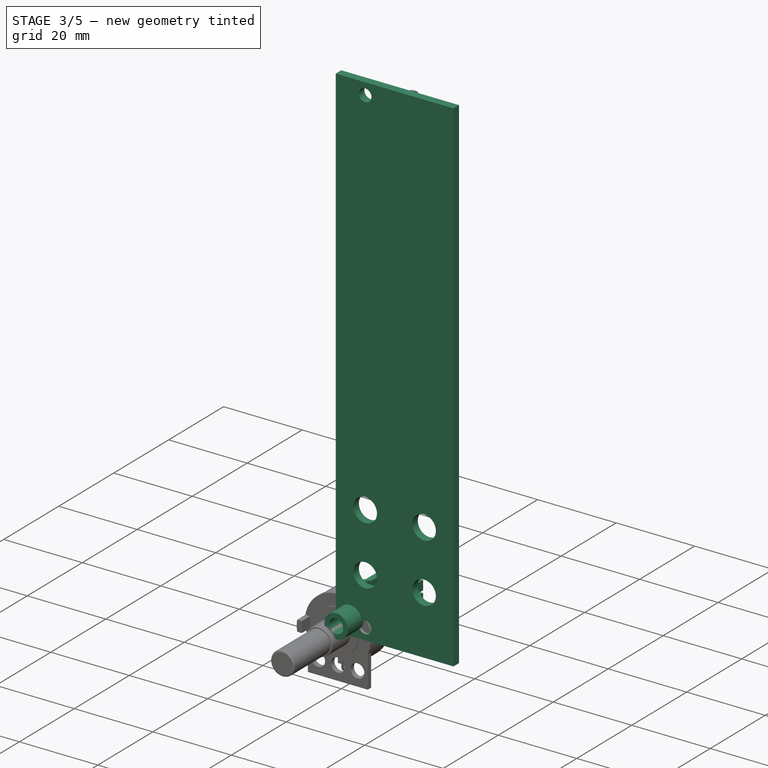
[diagram: stage 3 of 5 — iso view after this stage's code; geometry added in this stage tinted green]
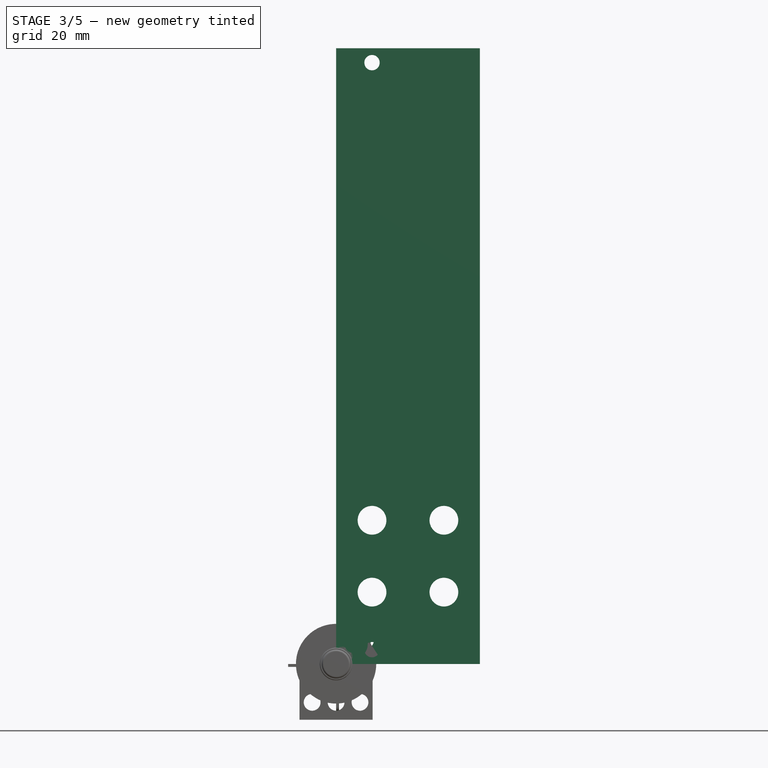
[diagram: stage 3 of 5 — front view after this stage's code; geometry added in this stage tinted green]
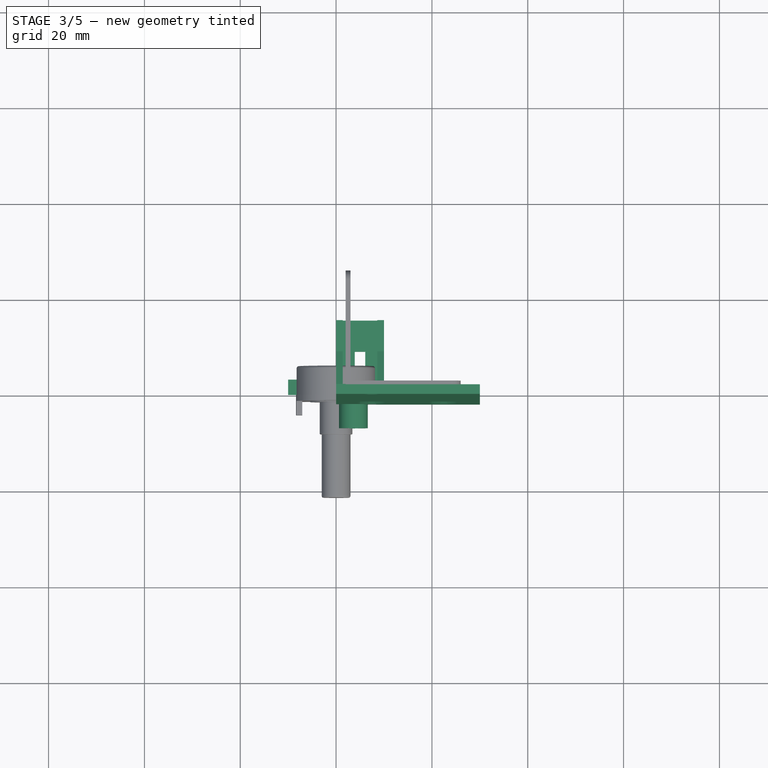
[diagram: stage 3 of 5 — top view after this stage's code; geometry added in this stage tinted green]
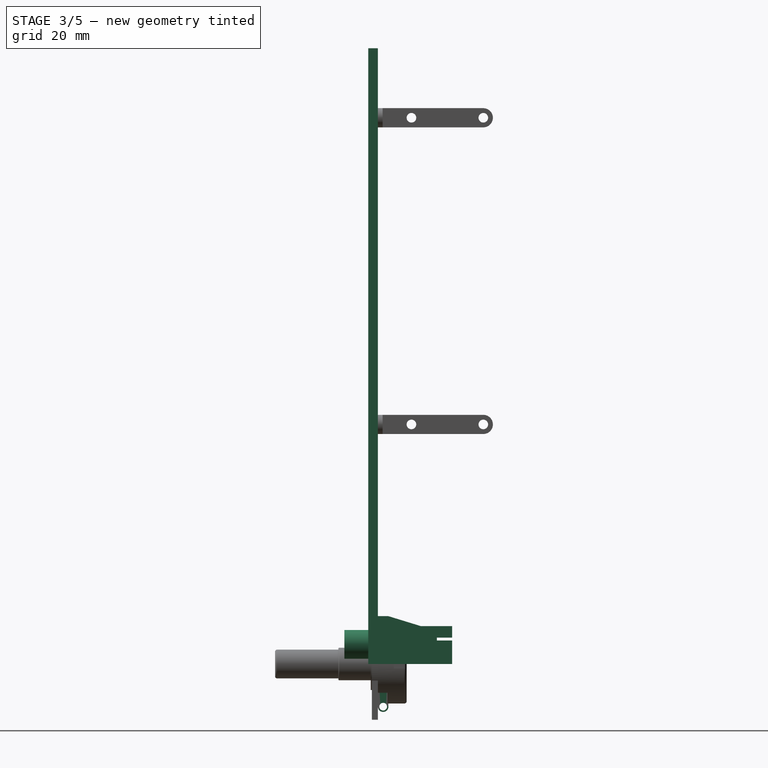
[diagram: stage 3 of 5 — right view after this stage's code; geometry added in this stage tinted green]
FEATURE [PartDesign::Body] Body010  label="Rear lug002"
  Group = -> [Sketch078,Pad043,Sketch071,Pad046]
  Origin = -> Origin017
  Placement = pos=(3.9,16.1,2) rot=(0,0,1;0rad)
  Tip = -> Pad046
FEATURE [App::Part] Part006  label="Triangle out"
  Group = -> [Body012,Body009,Body010,Body011]
  Origin = -> Origin016
  Placement = pos=(12.5,0,35.5) rot=(0,1,0;3.14159rad)
FEATURE [Sketcher::SketchObject] Sketch080
  MapMode = 5
  Placement = pos=(0,0,0) rot=(0.57735,0.57735,0.57735;2.0944rad)
  Support = -> [YZ_Plane021]
  sketch-geometry (4):
    g0: LineSegment StartX=0 StartY=10 StartZ=0 EndX=0 EndY=0 EndZ=0
    g1: LineSegment StartX=0 StartY=0 StartZ=0 EndX=15.5 EndY=0 EndZ=0
    g2: LineSegment StartX=15.5 StartY=0 StartZ=0 EndX=15.5 EndY=10 EndZ=0
    g3: LineSegment StartX=15.5 StartY=10 StartZ=0 EndX=0 EndY=10 EndZ=0
  constraints (11):
    c: Coincident(g0,g1)
    c: Coincident(g1,g2)
    c: Coincident(g3,g0)
    c: Vertical(g0)
    c: Parallel(g2,g0)
    c: Horizontal(g1)
    c: Horizontal(g3)
    c: DistanceX(g1,g1) = 15.5
    c: DistanceY(g0,g0) = 10
    c: Coincident(g2,g3)
    c: Coincident(g-1,g0)
FEATURE [Sketcher::SketchObject] Sketch082
  MapMode = 5
  Placement = pos=(0,0,0) rot=(0.57735,0.57735,0.57735;2.0944rad)
  Support = -> [YZ_Plane018]
  sketch-geometry (6):
    g0: LineSegment StartX=0 StartY=-8.9 StartZ=0 EndX=0 EndY=0 EndZ=0
    g1: LineSegment StartX=0 StartY=0 StartZ=0 EndX=2.2 EndY=0 EndZ=0
    g2: LineSegment StartX=2.2 StartY=0 StartZ=0 EndX=2.2 EndY=-8.9 EndZ=0
    g3: ArcOfCircle CenterX=1.1 CenterY=-8.9 CenterZ=0 NormalX=0 NormalY=0 NormalZ=1 AngleXU=0 Radius=1.1 StartAngle=3.14159 EndAngle=6.28319
    g4: GeomPoint X=1.1 Y=-10 Z=0
    g5: Circle CenterX=1.1 CenterY=-8.9 CenterZ=0 NormalX=0 NormalY=0 NormalZ=1 AngleXU=0 Radius=0.8
  constraints (15):
    c: Coincident(g0,g1)
    c: Coincident(g1,g2)
    c: Horizontal(g1)
    c: Vertical(g0)
    c: Vertical(g2)
    c: Equal(g2,g0)
    c: DistanceX(g1,g1) = 2.2
    c: PointOnObject(g4,g3)
    c: DistanceX(g3,g4) = 0
    c: Tangent(g3,g0) = 1.5708
    c: Coincident(g0,g-1)
    c: DistanceY(g4,g0) = 10
    c: Coincident(g2,g3)
    c: Radius(g5) = 0.8
    c: Coincident(g3,g5)
FEATURE [Sketcher::SketchObject] Sketch086
  MapMode = 5
  Placement = pos=(0,0,0) rot=(1,0,0;1.5708rad)
  Support = -> [XZ_Plane020]
  sketch-geometry (10):
    g0: LineSegment StartX=7.2 StartY=7.6 StartZ=0 EndX=0 EndY=7.6 EndZ=0
    g1: LineSegment StartX=0 StartY=7.6 StartZ=0 EndX=0 EndY=0 EndZ=0
    g2: LineSegment StartX=0 StartY=0 StartZ=0 EndX=2.5 EndY=0 EndZ=0
    g3: LineSegment StartX=2.5 StartY=0 StartZ=0 EndX=2.5 EndY=-4.8 EndZ=0
    g4: LineSegment StartX=4.7 StartY=-4.8 StartZ=0 EndX=4.7 EndY=0 EndZ=0
    g5: LineSegment StartX=4.7 StartY=-4e-16 StartZ=0 EndX=7.2 EndY=-4e-16 EndZ=0
    g6: LineSegment StartX=7.2 StartY=-4e-16 StartZ=0 EndX=7.2 EndY=7.6 EndZ=0
    g7: ArcOfCircle CenterX=3.6 CenterY=-4.8 CenterZ=0 NormalX=0 NormalY=0 NormalZ=1 AngleXU=0 Radius=1.1 StartAngle=3.14159 EndAngle=6.28319
    g8: GeomPoint X=3.6 Y=-5.9 Z=0
    g9: Circle CenterX=3.6 CenterY=-4.8 CenterZ=0 NormalX=0 NormalY=0 NormalZ=1 AngleXU=0 Radius=0.8
  constraints (28):
    c: Coincident(g0,g1)
    c: Coincident(g1,g2)
    c: Coincident(g2,g3)
    c: Coincident(g4,g5)
    c: Coincident(g5,g6)
    c: Coincident(g6,g0)
    c: Horizontal(g0)
    c: Horizontal(g2)
    c: Horizontal(g5)
    c: Vertical(g6)
    c: Vertical(g1)
    c: Vertical(g3)
    c: Vertical(g4)
    c: Equal(g5,g2)
    c: Equal(g1,g6)
    c: Equal(g3,g4)
    c: DistanceX(g8,g7) = 0
    c: PointOnObject(g8,g7)
    c: Coincident(g4,g7)
    c: Coincident(g3,g7)
    c: DistanceX(g2,g4) = 2.2
    c: Coincident(g9,g7)
    c: Radius(g9) = 0.8
    c: DistanceX(g0,g0) = 7.2
    c: DistanceY(g6,g6) = 7.6
    c: Coincident(g1,g-1)
    c: DistanceY(g8,g2) = 5.9
    c: Tangent(g4,g7) = -1.5708
FEATURE [Sketcher::SketchObject] Sketch091
  MapMode = 5
  Placement = pos=(0,0,0) rot=(1,0,0;1.5708rad)
  Support = -> [XZ_Plane022]
  sketch-geometry (6):
    g0: LineSegment StartX=0 StartY=-5.4 StartZ=0 EndX=0 EndY=0 EndZ=0
    g1: LineSegment StartX=0 StartY=0 StartZ=0 EndX=2.2 EndY=-2e-16 EndZ=0
    g2: LineSegment StartX=2.2 StartY=-2e-16 StartZ=0 EndX=2.2 EndY=-5.4 EndZ=0
    g3: ArcOfCircle CenterX=1.1 CenterY=-5.4 CenterZ=0 NormalX=0 NormalY=0 NormalZ=1 AngleXU=0 Radius=1.1 StartAngle=3.14159 EndAngle=6.28319
    g4: Circle CenterX=1.1 CenterY=-5.4 CenterZ=0 NormalX=0 NormalY=0 NormalZ=1 AngleXU=0 Radius=0.8
    g5: GeomPoint X=1.1 Y=-6.5 Z=0
  constraints (14):
    c: Coincident(g0,g1)
    c: Coincident(g1,g2)
    c: Vertical(g0)
    c: Vertical(g2)
    c: Coincident(g0,g-1)
    c: Equal(g2,g0)
    c: Tangent(g3,g2) = 1.5708
    c: Tangent(g0,g3) = 1.5708
    c: DistanceX(g1,g1) = 2.2
    c: Radius(g4) = 0.8
    c: Coincident(g3,g4)
    c: DistanceX(g3,g5) = 0
    c: PointOnObject(g5,g3)
    c: DistanceY(g5,g0) = 6.5
FEATURE [PartDesign::Pad] Pad047  label="Base003"
  Length = 10
  Length2 = 100
  Placement = pos=(0,0,0) rot=(0.57735,0.57735,0.57735;2.0944rad)
  Profile = -> Sketch080
  Type = 0
FEATURE [Sketcher::SketchObject] Sketch081
  ExternalGeometry = -> [Pad047]
  MapMode = 5
  Placement = pos=(-2.8e-15,4.4e-15,10) rot=(0,0,-1;1.5708rad)
  Support = -> [Pad047]
  sketch-geometry (5):
    g0: LineSegment StartX=-15.5 StartY=8.6 StartZ=0 EndX=-15.5 EndY=5 EndZ=0
    g1: LineSegment StartX=-15.5 StartY=5 StartZ=0 EndX=-15.5 EndY=1.4 EndZ=0
    g2: LineSegment StartX=-15.5 StartY=1.4 StartZ=0 EndX=-2.15 EndY=1.4 EndZ=0
    g3: LineSegment StartX=-2.15 StartY=1.4 StartZ=0 EndX=-2.15 EndY=8.6 EndZ=0
    g4: LineSegment StartX=-2.15 StartY=8.6 StartZ=0 EndX=-15.5 EndY=8.6 EndZ=0
  constraints (14):
    c: Coincident(g0,g1)
    c: Coincident(g1,g2)
    c: Coincident(g2,g3)
    c: Coincident(g3,g4)
    c: Coincident(g4,g0)
    c: Vertical(g3)
    c: Vertical(g0)
    c: Horizontal(g4)
    c: Horizontal(g2)
    c: DistanceX(g2,g-4) = 2.15
    c: Symmetric(g1,g0,g0)
    c: DistanceY(g-5,g0) = 5
    c: DistanceX(g-5,g1) = 0
    c: DistanceY(g0,g-5) = 1.4
FEATURE [Sketcher::SketchObject] Sketch087
  MapMode = 5
  Placement = pos=(0,0,0) rot=(-0.57735,-0.57735,0.57735;4.18879rad)
  Support = -> [Pad047]
  sketch-geometry (5):
    g0: LineSegment StartX=-2 StartY=6.1 StartZ=0 EndX=-2 EndY=3.9 EndZ=0
    g1: LineSegment StartX=-2 StartY=3.9 StartZ=0 EndX=0 EndY=3.9 EndZ=0
    g2: LineSegment StartX=0 StartY=3.9 StartZ=0 EndX=-1e-16 EndY=5 EndZ=0
    g3: LineSegment StartX=-1e-16 StartY=5 StartZ=0 EndX=-1e-16 EndY=6.1 EndZ=0
    g4: LineSegment StartX=-1e-16 StartY=6.1 StartZ=0 EndX=-2 EndY=6.1 EndZ=0
  constraints (14):
    c: Coincident(g0,g1)
    c: Coincident(g1,g2)
    c: Coincident(g2,g3)
    c: Coincident(g3,g4)
    c: Coincident(g4,g0)
    c: Horizontal(g1)
    c: Horizontal(g4)
    c: Vertical(g0)
    c: Vertical(g3)
    c: Symmetric(g3,g1,g2)
    c: DistanceY(g-1,g2) = 5
    c: DistanceX(g1,g1) = 2
    c: DistanceY(g0,g0) = 2.2
    c: DistanceX(g1,g-1) = 0
FEATURE [PartDesign::Pocket] Pocket016  label="Front lug pocket003"
  BaseFeature = -> Pad047
  Length = 9
  Length2 = 100
  Placement = pos=(0,0,0) rot=(0.57735,0.57735,0.57735;2.0944rad)
  Profile = -> Sketch087
  Type = 0
FEATURE [Sketcher::SketchObject] Sketch088
  ExternalGeometry = -> [Pocket016]
  MapMode = 5
  Placement = pos=(0,0,0) rot=(-0.57735,-0.57735,0.57735;4.18879rad)
  Support = -> [Pocket016]
  sketch-geometry (1):
    g0: Circle CenterX=-5.5 CenterY=5 CenterZ=0 NormalX=0 NormalY=0 NormalZ=1 AngleXU=0 Radius=3
  constraints (3):
    c: Diameter(g0) = 6
    c: DistanceY(g-1,g0) = 5
    c: Distance(g0,g-4) = 4.5
FEATURE [Sketcher::SketchObject] Sketch089
  ExternalGeometry = -> [Pocket016]
  MapMode = 5
  Placement = pos=(10,-9e-15,6e-15) rot=(0.57735,0.57735,0.57735;2.0944rad)
  sketch-geometry (4):
    g0: LineSegment StartX=2.15 StartY=10 StartZ=0 EndX=9 EndY=7.9 EndZ=0
    g1: LineSegment StartX=9 StartY=7.9 StartZ=0 EndX=15.5 EndY=7.9 EndZ=0
    g2: LineSegment StartX=15.5 StartY=7.9 StartZ=0 EndX=15.5 EndY=10 EndZ=0
    g3: LineSegment StartX=15.5 StartY=10 StartZ=0 EndX=2.15 EndY=10 EndZ=0
  constraints (11):
    c: Coincident(g0,g1)
    c: Coincident(g1,g2)
    c: Coincident(g2,g3)
    c: Coincident(g3,g0)
    c: Horizontal(g1)
    c: DistanceX(g1,g1) = 6.5
    c: Vertical(g2)
    c: Horizontal(g3)
    c: Coincident(g2,g-3)
    c: DistanceX(g-1,g0) = 2.15
    c: DistanceY(g2,g2) = 2.1
FEATURE [PartDesign::Pocket] Pocket017  label="Side pocket003"
  BaseFeature = -> Pocket016
  Length = 10
  Length2 = 100
  Placement = pos=(0,0,0) rot=(0.57735,0.57735,0.57735;2.0944rad)
  Profile = -> Sketch089
  Type = 0
FEATURE [PartDesign::Pocket] Pocket015  label="Top pocket003"
  BaseFeature = -> Pocket017
  Length = 8.6
  Length2 = 100
  Placement = pos=(0,0,0) rot=(0.57735,0.57735,0.57735;2.0944rad)
  Profile = -> Sketch081
  Type = 0
FEATURE [PartDesign::Hole] Hole003
  BaseFeature = -> Pocket015
  Depth = 25
  DepthType = 0
  Diameter = 6
  DrillPoint = 1
  DrillPointAngle = 118
  HoleCutCountersinkAngle = 90
  HoleCutDepth = 0
  HoleCutDiameter = 0
  HoleCutType = 0
  ModelActualThread = false
  Placement = pos=(0,0,0) rot=(0.57735,0.57735,0.57735;2.0944rad)
  Profile = -> Sketch088
  Tapered = false
  TaperedAngle = 90
  ThreadAngle = 0
  ThreadClass = 0
  ThreadCutOffInner = 0
  ThreadCutOffOuter = 0
  ThreadDirection = 0
  ThreadFit = 0
  ThreadPitch = 0
  ThreadSize = 0
  ThreadType = 0
  Threaded = false
FEATURE [Sketcher::SketchObject] Sketch083
  ExternalGeometry = -> [Hole003]
  MapMode = 5
  Placement = pos=(0,0,0) rot=(0.57735,0.57735,-0.57735;4.18879rad)
  Support = -> [Hole003]
  sketch-geometry (4):
    g0: LineSegment StartX=12.3 StartY=-4.9 StartZ=0 EndX=15.5 EndY=-4.9 EndZ=0
    g1: LineSegment StartX=15.5 StartY=-4.9 StartZ=0 EndX=15.5 EndY=-5.5 EndZ=0
    g2: LineSegment StartX=15.5 StartY=-5.5 StartZ=0 EndX=12.3 EndY=-5.5 EndZ=0
    g3: LineSegment StartX=12.3 StartY=-5.5 StartZ=0 EndX=12.3 EndY=-4.9 EndZ=0
  constraints (12):
    c: Coincident(g0,g1)
    c: Coincident(g1,g2)
    c: Coincident(g2,g3)
    c: Coincident(g3,g0)
    c: Horizontal(g0)
    c: Horizontal(g2)
    c: Vertical(g1)
    c: Vertical(g3)
    c: DistanceX(g0,g-4) = 0
    c: DistanceX(g0,g0) = 3.2
    c: DistanceY(g3,g3) = 0.6
    c: DistanceY(g0,g-4) = 4.9
FEATURE [PartDesign::Pad] Pad049
  Length = 0.6
  Length2 = 100
  Placement = pos=(0,0,0) rot=(1,0,0;1.5708rad)
  Profile = -> Sketch086
  Type = 0
FEATURE [Sketcher::SketchObject] Sketch085
  ExternalGeometry = -> [Pad049]
  MapMode = 5
  Placement = pos=(0,-0.6,3e-16) rot=(1,0,0;1.5708rad)
  Support = -> [Pad049]
  sketch-geometry (2):
    g0: Circle CenterX=3.6 CenterY=4.1 CenterZ=0 NormalX=0 NormalY=0 NormalZ=1 AngleXU=0 Radius=3
    g1: GeomPoint X=3.6 Y=7.6 Z=0
  constraints (4):
    c: Diameter(g0) = 6
    c: DistanceY(g0,g-3) = 3.5
    c: Symmetric(g-3,g-3,g1)
    c: DistanceX(g1,g0) = 0
FEATURE [PartDesign::Pad] Pad050
  BaseFeature = -> Pad049
  Length = 6.4
  Length2 = 100
  Placement = pos=(0,0,0) rot=(1,0,0;1.5708rad)
  Profile = -> Sketch085
  Type = 0
FEATURE [Sketcher::SketchObject] Sketch090
  ExternalGeometry = -> [Pad050]
  MapMode = 5
  Placement = pos=(0,-7,6.9e-15) rot=(1,0,0;1.5708rad)
  Support = -> [Pad050]
  sketch-geometry (1):
    g0: Circle CenterX=3.6 CenterY=4.1 CenterZ=0 NormalX=0 NormalY=0 NormalZ=1 AngleXU=0 Radius=1.8
  constraints (2):
    c: Coincident(g-3,g0)
    c: Diameter(g0) = 3.6
FEATURE [PartDesign::Pad] Pad051
  Length = 0.6
  Length2 = 100
  Placement = pos=(0,0,0) rot=(1,0,0;1.5708rad)
  Profile = -> Sketch091
  Type = 0
FEATURE [Sketcher::SketchObject] Sketch084
  ExternalGeometry = -> [Pad051]
  MapMode = 5
  Placement = pos=(0,-0.6,3e-16) rot=(1,0,0;1.5708rad)
  Support = -> [Pad051]
  sketch-geometry (4):
    g0: LineSegment StartX=0 StartY=0 StartZ=0 EndX=2.2 EndY=0 EndZ=0
    g1: LineSegment StartX=2.2 StartY=0 StartZ=0 EndX=2.2 EndY=-0.6 EndZ=0
    g2: LineSegment StartX=2.2 StartY=-0.6 StartZ=0 EndX=0 EndY=-0.6 EndZ=0
    g3: LineSegment StartX=0 StartY=-0.6 StartZ=0 EndX=0 EndY=0 EndZ=0
  constraints (10):
    c: Coincident(g0,g1)
    c: Coincident(g1,g2)
    c: Coincident(g2,g3)
    c: Coincident(g3,g0)
    c: Horizontal(g2)
    c: Vertical(g1)
    c: Vertical(g3)
    c: Coincident(g0,g-1)
    c: Coincident(g0,g-3)
    c: DistanceY(g2,g0) = 0.6
FEATURE [PartDesign::Pad] Pad052
  Length = 0.6
  Length2 = 100
  Placement = pos=(0,0,0) rot=(0.57735,0.57735,0.57735;2.0944rad)
  Profile = -> Sketch082
  Type = 0
FEATURE [Sketcher::SketchObject] Sketch092
  ExternalGeometry = -> [Pad052]
  MapMode = 5
  Placement = pos=(0,0,0) rot=(0.57735,0.57735,-0.57735;4.18879rad)
  Support = -> [Pad052]
  sketch-geometry (4):
    g0: LineSegment StartX=0 StartY=0.6 StartZ=0 EndX=2.2 EndY=0.6 EndZ=0
    g1: LineSegment StartX=2.2 StartY=0.6 StartZ=0 EndX=2.2 EndY=1.2e-15 EndZ=0
    g2: LineSegment StartX=2.2 StartY=1.2e-15 StartZ=0 EndX=0 EndY=0 EndZ=0
    g3: LineSegment StartX=0 StartY=0 StartZ=0 EndX=0 EndY=0.6 EndZ=0
  constraints (10):
    c: Coincident(g0,g1)
    c: Coincident(g1,g2)
    c: Coincident(g2,g3)
    c: Coincident(g3,g0)
    c: Horizontal(g0)
    c: Vertical(g1)
    c: Vertical(g3)
    c: Coincident(g1,g-3)
    c: Coincident(g2,g-1)
    c: DistanceY(g3,g3) = 0.6
FEATURE [PartDesign::Pad] Pad048
  BaseFeature = -> Pad052
  Length = 10
  Length2 = 100
  Placement = pos=(0,0,0) rot=(0.57735,0.57735,0.57735;2.0944rad)
  Profile = -> Sketch092
  Type = 0
FEATURE [PartDesign::Pocket] Pocket018
  BaseFeature = -> Hole003
  Length = 10
  Length2 = 100
  Placement = pos=(0,0,0) rot=(0.57735,0.57735,0.57735;2.0944rad)
  Profile = -> Sketch083
  Type = 0
FEATURE [PartDesign::Body] Body016  label="Housing003"
  Group = -> [Sketch080,Pad047,Sketch087,Pocket016,Sketch088,Sketch089,Pocket017,Sketch081,Pocket015,Hole003,Sketch083,Pocket018]
  Origin = -> Origin018
  Tip = -> Pocket018
FEATURE [PartDesign::Pocket] Pocket019
  BaseFeature = -> Pad050
  Length = 9
  Length2 = 100
  Placement = pos=(0,0,0) rot=(1,0,0;1.5708rad)
  Profile = -> Sketch090
  Type = 0
FEATURE [PartDesign::Body] Body013  label="Front lug003"
  Group = -> [Sketch086,Pad049,Sketch085,Pad050,Sketch090,Pocket019,Chamfer005]
  Origin = -> Origin019
  Placement = pos=(1.4,2.6,1.4) rot=(0,0,1;0rad)
  Tip = -> Chamfer005
FEATURE [PartDesign::Pad] Pad053
  BaseFeature = -> Pad048
  Length = 1
  Length2 = 100
  Placement = pos=(0,0,0) rot=(0.57735,0.57735,0.57735;2.0944rad)
  Profile = -> Pad048 [Face12]
  Type = 0
FEATURE [PartDesign::Body] Body015  label="Side lug003"
  Group = -> [Sketch082,Pad052,Sketch092,Pad048,Pad053]
  Origin = -> Origin020
  Placement = pos=(10,12.3,5.5) rot=(0,0,1;0rad)
  Tip = -> Pad053
FEATURE [PartDesign::Pad] Pad054
  BaseFeature = -> Pad051
  Length = 5
  Length2 = 100
  Placement = pos=(0,0,0) rot=(1,0,0;1.5708rad)
  Profile = -> Sketch084
  Type = 0
FEATURE [PartDesign::Body] Body014  label="Rear lug003"
  Group = -> [Sketch091,Pad051,Sketch084,Pad054]
  Origin = -> Origin022
  Placement = pos=(3.9,16.1,2) rot=(0,0,1;0rad)
  Tip = -> Pad054
FEATURE [App::Part] Part007  label="CV in"
  Group = -> [Body016,Body013,Body014,Body015]
  Origin = -> Origin021
  Placement = pos=(27.5,0,35) rot=(0,1,0;3.14159rad)
FEATURE [Sketcher::SketchObject] Sketch093
  MapMode = 5
  Placement = pos=(0,0,0) rot=(1,0,0;1.5708rad)
  sketch-geometry (6):
    g0: LineSegment StartX=0 StartY=0 StartZ=0 EndX=30 EndY=0 EndZ=0
    g1: LineSegment StartX=30 StartY=0 StartZ=0 EndX=30 EndY=128.5 EndZ=0
    g2: LineSegment StartX=30 StartY=128.5 StartZ=0 EndX=0 EndY=128.5 EndZ=0
    g3: LineSegment StartX=0 StartY=128.5 StartZ=0 EndX=0 EndY=0 EndZ=0
    g4: Circle CenterX=7.5 CenterY=125.5 CenterZ=0 NormalX=0 NormalY=0 NormalZ=1 AngleXU=0 Radius=1.6
    g5: Circle CenterX=7.5 CenterY=3 CenterZ=0 NormalX=0 NormalY=0 NormalZ=1 AngleXU=0 Radius=1.6
  constraints (17):
    c: Coincident(g0,g1)
    c: Coincident(g1,g2)
    c: Coincident(g2,g3)
    c: Coincident(g3,g0)
    c: Horizontal(g0)
    c: Vertical(g3)
    c: DistanceY(g3,g3) = 128.5  'Height'
    c: Coincident(g0,g-1)  'Origin'
    c: Parallel(g1,g3)
    c: DistanceX(g0,g0) = 30  'Width'
    c: Diameter(g4) = 3.2
    c: DistanceY(g4,g2) = 3
    c: DistanceX(g2,g4) = 7.5
    c: Equal(g4,g5) = 3.2
    c: Vertical(g5,g4)
    c: DistanceY(g0,g5) = 3
    c: Parallel(g0,g2)
FEATURE [PartDesign::Pad] Pad055  label="6U pad"
  Length = 2
  Length2 = 100
  Placement = pos=(0,0,0) rot=(1,0,0;1.5708rad)
  Profile = -> Sketch093
  Type = 0
FEATURE [Sketcher::SketchObject] Sketch094
  MapMode = 5
  Placement = pos=(0,-2,1.3e-15) rot=(1,0,0;1.5708rad)
  Support = -> [Pad055]
  sketch-geometry (4):
    g0: Circle CenterX=7.5 CenterY=15 CenterZ=0 NormalX=0 NormalY=0 NormalZ=1 AngleXU=0 Radius=3
    g1: Circle CenterX=7.5 CenterY=30 CenterZ=0 NormalX=0 NormalY=0 NormalZ=1 AngleXU=0 Radius=3
    g2: Circle CenterX=22.5 CenterY=30 CenterZ=0 NormalX=0 NormalY=0 NormalZ=1 AngleXU=0 Radius=3
    g3: Circle CenterX=22.5 CenterY=15 CenterZ=0 NormalX=0 NormalY=0 NormalZ=1 AngleXU=0 Radius=3
  constraints (12):
    c: Diameter(g0) = 6
    c: Equal(g0,g1) = 6
    c: Equal(g0,g2) = 6
    c: Equal(g0,g3) = 6
    c: DistanceX(g1,g2) = 15  'Horizontal space'
    c: Horizontal(g2,g1)
    c: Horizontal(g0,g3)
    c: Vertical(g0,g1)
    c: Vertical(g3,g2)
    c: DistanceY(g0,g1) = 15  'Vertical space'
    c: DistanceY(g-1,g0) = 15
    c: DistanceX(g-1,g0) = 7.5
FEATURE [PartDesign::Hole] Hole004
  BaseFeature = -> Pad055
  Depth = 25
  DepthType = 0
  Diameter = 6
  DrillPoint = 1
  DrillPointAngle = 118
  HoleCutCountersinkAngle = 90
  HoleCutDepth = 0
  HoleCutDiameter = 0
  HoleCutType = 0
  ModelActualThread = false
  Placement = pos=(0,0,0) rot=(1,0,0;1.5708rad)
  Profile = -> Sketch094
  Tapered = false
  TaperedAngle = 90
  ThreadAngle = 0
  ThreadClass = 0
  ThreadCutOffInner = 0
  ThreadCutOffOuter = 0
  ThreadDirection = 0
  ThreadFit = 0
  ThreadPitch = 0
  ThreadSize = 0
  ThreadType = 0
  Threaded = false
FEATURE [PartDesign::Body] Pad001Body  label="6U"
  Group = -> [Sketch093,Pad055,Sketch094,Hole004]
  Origin = -> Origin025
  Tip = -> Hole004
FEATURE [App::Part] Part003  label="Panel"
  Group = -> [Pad001Body]
  Origin = -> Origin004
FEATURE [Sketcher::SketchObject] Sketch095
  MapMode = 5
  Placement = pos=(0,0,0) rot=(1,0,0;1.5708rad)
  Support = -> [XZ_Plane031]
  sketch-geometry (5):
    g0: LineSegment StartX=-7.625 StartY=-3.4641 StartZ=0 EndX=-7.625 EndY=-11.625 EndZ=0
    g1: LineSegment StartX=-7.625 StartY=-11.625 StartZ=0 EndX=7.625 EndY=-11.625 EndZ=0
    g2: LineSegment StartX=7.625 StartY=-11.625 StartZ=0 EndX=7.625 EndY=-3.4641 EndZ=0
    g3: ArcOfCircle CenterX=0 CenterY=0 CenterZ=0 NormalX=0 NormalY=0 NormalZ=1 AngleXU=0 Radius=8.375 StartAngle=5.85675 EndAngle=9.85121
    g4: GeomPoint X=0 Y=8.375 Z=0
  constraints (14):
    c: Coincident(g0,g1)
    c: Coincident(g1,g2)
    c: Diameter(g3) = 16.75
    c: Vertical(g0)
    c: Vertical(g2)
    c: Horizontal(g1)
    c: Equal(g2,g0)
    c: Coincident(g3,g0)
    c: Coincident(g3,g2)
    c: DistanceX(g1,g1) = 15.25
    c: Coincident(g-1,g3)
    c: DistanceX(g3,g4) = 0
    c: PointOnObject(g4,g3)
    c: DistanceY(g1,g4) = 20
FEATURE [Sketcher::SketchObject] Sketch005
  MapMode = 5
  Placement = pos=(0,0,0) rot=(1,0,0;1.5708rad)
  Support = -> [XZ_Plane028]
  sketch-geometry (10):
    g0: LineSegment StartX=1.775 StartY=-2e-16 StartZ=0 EndX=1.775 EndY=-4.225 EndZ=0
    g1: LineSegment StartX=1.775 StartY=-4.225 StartZ=0 EndX=0.5 EndY=-3.925 EndZ=0
    g2: LineSegment StartX=0.5 StartY=-3.925 StartZ=0 EndX=0.5 EndY=-7.925 EndZ=0
    g3: LineSegment StartX=0.5 StartY=-7.925 StartZ=0 EndX=-0.5 EndY=-7.925 EndZ=0
    g4: LineSegment StartX=-0.5 StartY=-7.925 StartZ=0 EndX=-0.5 EndY=-3.925 EndZ=0
    g5: LineSegment StartX=-0.5 StartY=-3.925 StartZ=0 EndX=-1.775 EndY=-4.225 EndZ=0
    g6: LineSegment StartX=-1.775 StartY=-4.225 StartZ=0 EndX=-1.775 EndY=0 EndZ=0
    g7: ArcOfCircle CenterX=0 CenterY=0 CenterZ=0 NormalX=0 NormalY=0 NormalZ=1 AngleXU=0 Radius=1.775 StartAngle=0 EndAngle=3.14159
    g8: GeomPoint X=0 Y=1.775 Z=0
    g9: Circle CenterX=0 CenterY=0 CenterZ=0 NormalX=0 NormalY=0 NormalZ=1 AngleXU=0 Radius=1.15
  constraints (26):
    c: Coincident(g0,g1)
    c: Coincident(g1,g2)
    c: Coincident(g2,g3)
    c: Coincident(g3,g4)
    c: Coincident(g4,g5)
    c: Coincident(g5,g6)
    c: Vertical(g2)
    c: Vertical(g4)
    c: Vertical(g6)
    c: Vertical(g0)
    c: Horizontal(g3)
    c: DistanceX(g3,g3) = 1
    c: DistanceX(g5,g0) = 3.55
    c: Equal(g2,g4)
    c: Equal(g6,g0)
    c: Equal(g1,g5)
    c: Tangent(g7,g6) = 1.5708
    c: Tangent(g0,g7) = 1.5708
    c: DistanceX(g7,g8) = 0
    c: PointOnObject(g8,g7)
    c: DistanceY(g0,g8) = 6
    c: DistanceY(g2,g8) = 9.7
    c: DistanceY(g2,g2) = 4
    c: Coincident(g9,g7)
    c: Radius(g9) = 1.15
    c: Coincident(g7,g-1)
FEATURE [Sketcher::SketchObject] Sketch097
  MapMode = 5
  Placement = pos=(0,0,0) rot=(1,0,0;1.5708rad)
  Support = -> [XZ_Plane001]
  sketch-geometry (1):
    g0: Circle CenterX=0 CenterY=0 CenterZ=0 NormalX=0 NormalY=0 NormalZ=1 AngleXU=0 Radius=8.25
  constraints (2):
    c: Diameter(g0) = 16.5
    c: Coincident(g0,g-1)
FEATURE [Sketcher::SketchObject] Sketch098
  MapMode = 5
  Placement = pos=(0,0,0) rot=(1,0,0;1.5708rad)
  Support = -> [XZ_Plane003]
  sketch-geometry (10):
    g0: LineSegment StartX=1.775 StartY=-2e-16 StartZ=0 EndX=1.775 EndY=-4.225 EndZ=0
    g1: LineSegment StartX=1.775 StartY=-4.225 StartZ=0 EndX=0.5 EndY=-3.925 EndZ=0
    g2: LineSegment StartX=0.5 StartY=-3.925 StartZ=0 EndX=0.5 EndY=-7.925 EndZ=0
    g3: LineSegment StartX=0.5 StartY=-7.925 StartZ=0 EndX=-0.5 EndY=-7.925 EndZ=0
    g4: LineSegment StartX=-0.5 StartY=-7.925 StartZ=0 EndX=-0.5 EndY=-3.925 EndZ=0
    g5: LineSegment StartX=-0.5 StartY=-3.925 StartZ=0 EndX=-1.775 EndY=-4.225 EndZ=0
    g6: LineSegment StartX=-1.775 StartY=-4.225 StartZ=0 EndX=-1.775 EndY=0 EndZ=0
    g7: ArcOfCircle CenterX=0 CenterY=0 CenterZ=0 NormalX=0 NormalY=0 NormalZ=1 AngleXU=0 Radius=1.775 StartAngle=0 EndAngle=3.14159
    g8: GeomPoint X=0 Y=1.775 Z=0
    g9: Circle CenterX=0 CenterY=0 CenterZ=0 NormalX=0 NormalY=0 NormalZ=1 AngleXU=0 Radius=1.15
  constraints (26):
    c: Coincident(g0,g1)
    c: Coincident(g1,g2)
    c: Coincident(g2,g3)
    c: Coincident(g3,g4)
    c: Coincident(g4,g5)
    c: Coincident(g5,g6)
    c: Vertical(g2)
    c: Vertical(g4)
    c: Vertical(g6)
    c: Vertical(g0)
    c: Horizontal(g3)
    c: DistanceX(g3,g3) = 1
    c: DistanceX(g5,g0) = 3.55
    c: Equal(g2,g4)
    c: Equal(g6,g0)
    c: Equal(g1,g5)
    c: Tangent(g7,g6) = 1.5708
    c: Tangent(g0,g7) = 1.5708
    c: DistanceX(g7,g8) = 0
    c: PointOnObject(g8,g7)
    c: DistanceY(g0,g8) = 6
    c: DistanceY(g2,g8) = 9.7
    c: DistanceY(g2,g2) = 4
    c: Coincident(g9,g7)
    c: Radius(g9) = 1.15
    c: Coincident(g7,g-1)
FEATURE [PartDesign::Pad] Pad056
  Length = 0.5
  Length2 = 100
  Placement = pos=(0,0,0) rot=(1,0,0;1.5708rad)
  Profile = -> Sketch098
  Type = 0
FEATURE [Sketcher::SketchObject] Sketch004
  ExternalGeometry = -> [Pad056]
  MapMode = 5
  Placement = pos=(0,-0.5,2e-16) rot=(1,0,0;1.5708rad)
  Support = -> [Pad056]
  sketch-geometry (2):
    g0: Circle CenterX=0 CenterY=0 CenterZ=0 NormalX=0 NormalY=0 NormalZ=1 AngleXU=0 Radius=1.775
    g1: Circle CenterX=0 CenterY=0 CenterZ=0 NormalX=0 NormalY=0 NormalZ=1 AngleXU=0 Radius=1.15
  constraints (4):
    c: Coincident(g0,g-1)
    c: Tangent(g-3,g0) = -1.5708
    c: Coincident(g1,g0)
    c: Tangent(g1,g-4)
FEATURE [PartDesign::Pad] Pad057
  BaseFeature = -> Pad056
  Length = 1.75
  Length2 = 100
  Placement = pos=(0,0,0) rot=(1,0,0;1.5708rad)
  Profile = -> Sketch004
  Type = 0
FEATURE [PartDesign::Fillet] Fillet001
  Base = -> Pad057 [Face13]
  BaseFeature = -> Pad057
  Placement = pos=(0,0,0) rot=(1,0,0;1.5708rad)
  Radius = 0.1
FEATURE [PartDesign::Body] Body018  label="Pin 1"
  Group = -> [Sketch098,Pad056,Sketch004,Pad057,Fillet001]
  Origin = -> Origin003
  Placement = pos=(-5,0.5,-8) rot=(0,0,1;0rad)
  Tip = -> Fillet001
FEATURE [PartDesign::Body] Body020  label="Cover"
  Group = -> [Sketch097,Pad059,Sketch096,Pocket020,Fillet]
  Origin = -> Origin001
  Placement = pos=(0,6,0) rot=(0,0,1;0rad)
  Tip = -> Fillet
FEATURE [Sketcher::SketchObject] Sketch006
  ExternalGeometry = -> [Pad004]
  MapMode = 5
  Placement = pos=(0,-0.5,2e-16) rot=(1,0,0;1.5708rad)
  Support = -> [Pad004]
  sketch-geometry (2):
    g0: Circle CenterX=0 CenterY=0 CenterZ=0 NormalX=0 NormalY=0 NormalZ=1 AngleXU=0 Radius=1.775
    g1: Circle CenterX=0 CenterY=0 CenterZ=0 NormalX=0 NormalY=0 NormalZ=1 AngleXU=0 Radius=1.15
  constraints (4):
    c: Coincident(g0,g-1)
    c: Tangent(g-3,g0) = -1.5708
    c: Coincident(g1,g0)
    c: Tangent(g1,g-4)
FEATURE [PartDesign::Pad] Pad005
  BaseFeature = -> Pad004
  Length = 1.75
  Length2 = 100
  Placement = pos=(0,0,0) rot=(1,0,0;1.5708rad)
  Profile = -> Sketch006
  Type = 0
FEATURE [PartDesign::Fillet] Fillet002
  Base = -> Pad005 [Face13]
  BaseFeature = -> Pad005
  Placement = pos=(0,0,0) rot=(1,0,0;1.5708rad)
  Radius = 0.1
FEATURE [Sketcher::SketchObject] Sketch010
  ExternalGeometry = -> [Pad058]
  MapMode = 5
  Placement = pos=(0,-1.25,6e-16) rot=(1,0,0;1.5708rad)
  Support = -> [Pad058]
  sketch-geometry (3):
    g0: Circle CenterX=-4.995 CenterY=-7.995 CenterZ=0 NormalX=0 NormalY=0 NormalZ=1 AngleXU=0 Radius=1.75
    g1: Circle CenterX=0 CenterY=-7.995 CenterZ=0 NormalX=0 NormalY=0 NormalZ=1 AngleXU=0 Radius=1.75
    g2: Circle CenterX=4.995 CenterY=-7.995 CenterZ=0 NormalX=0 NormalY=0 NormalZ=1 AngleXU=0 Radius=1.75
  constraints (8):
    c: Diameter(g0) = 3.5
    c: DistanceY(g-4,g0) = 3.63
    c: Equal(g0,g1) = 3.5
    c: DistanceX(g1,g-1) = 0
    c: Horizontal(g1,g0)
    c: Equal(g0,g2) = 3.5
    c: Symmetric(g2,g0,g1)
    c: DistanceX(g-4,g0) = 2.63
FEATURE [PartDesign::Pocket] Pocket021
  BaseFeature = -> Pad058
  Length = 5
  Length2 = 100
  Placement = pos=(0,0,0) rot=(1,0,0;1.5708rad)
  Profile = -> Sketch010
  Type = 0
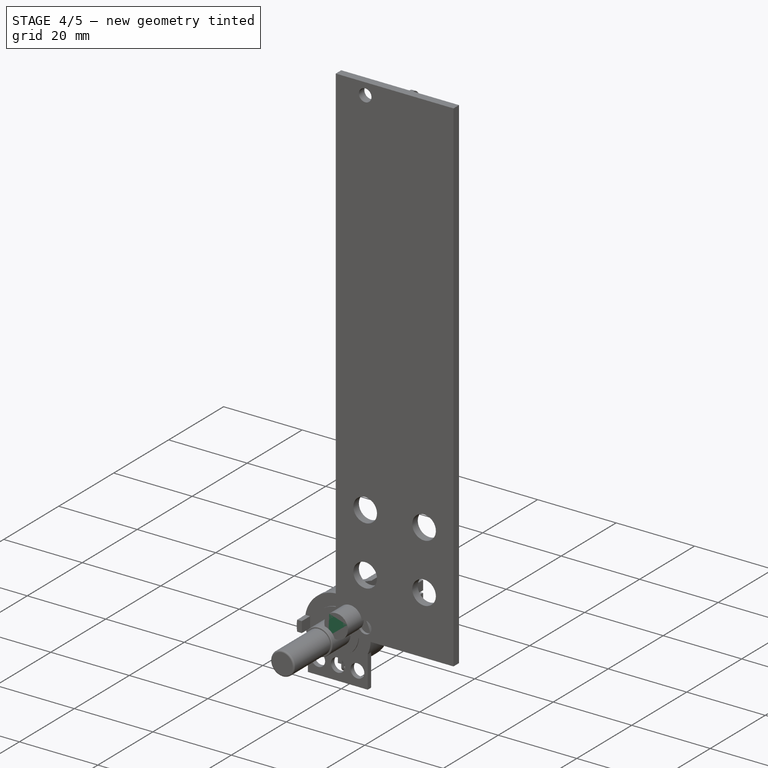
[diagram: stage 4 of 5 — iso view after this stage's code; geometry added in this stage tinted green]
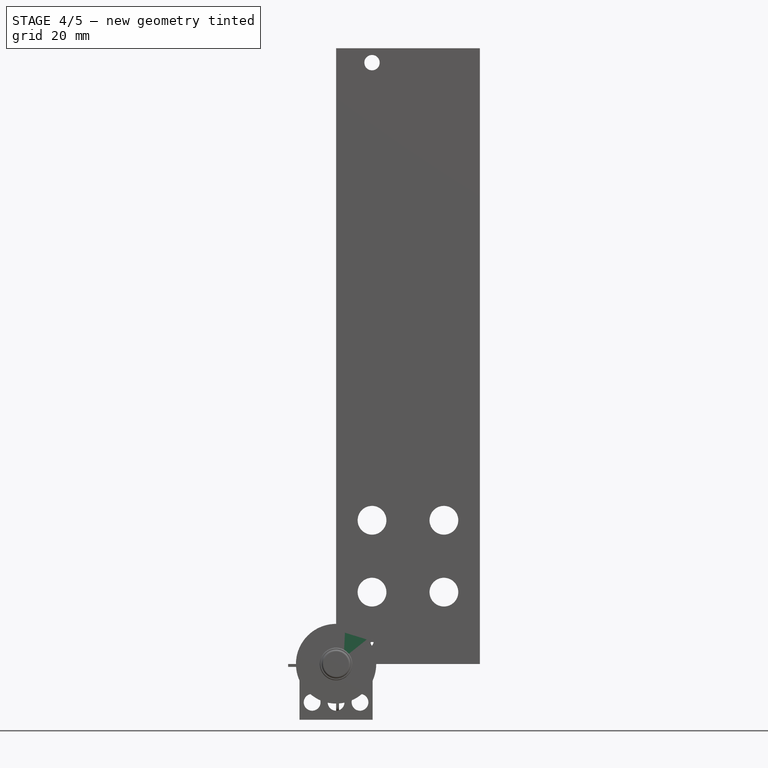
[diagram: stage 4 of 5 — front view after this stage's code; geometry added in this stage tinted green]
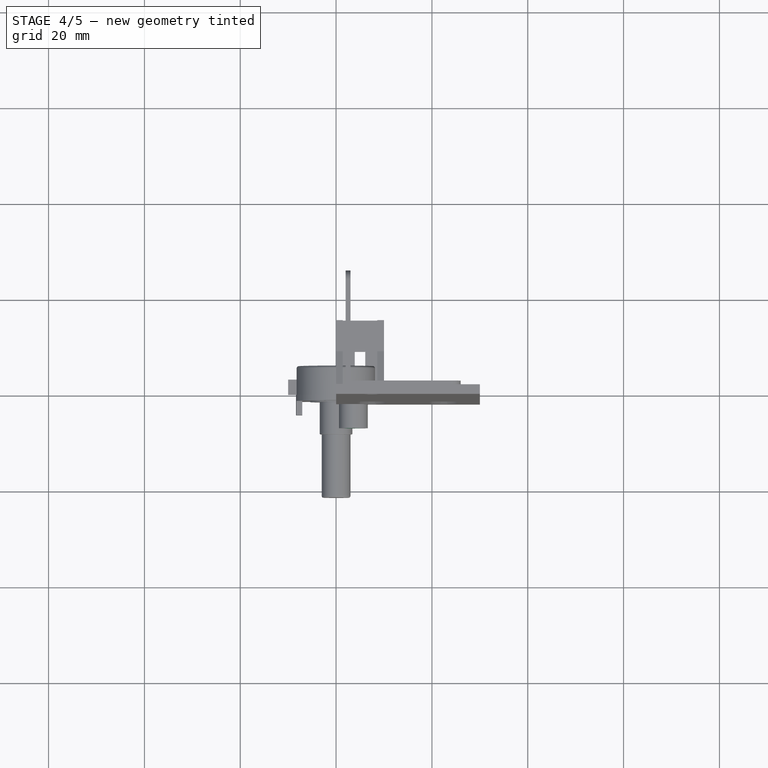
[diagram: stage 4 of 5 — top view after this stage's code; geometry added in this stage tinted green]
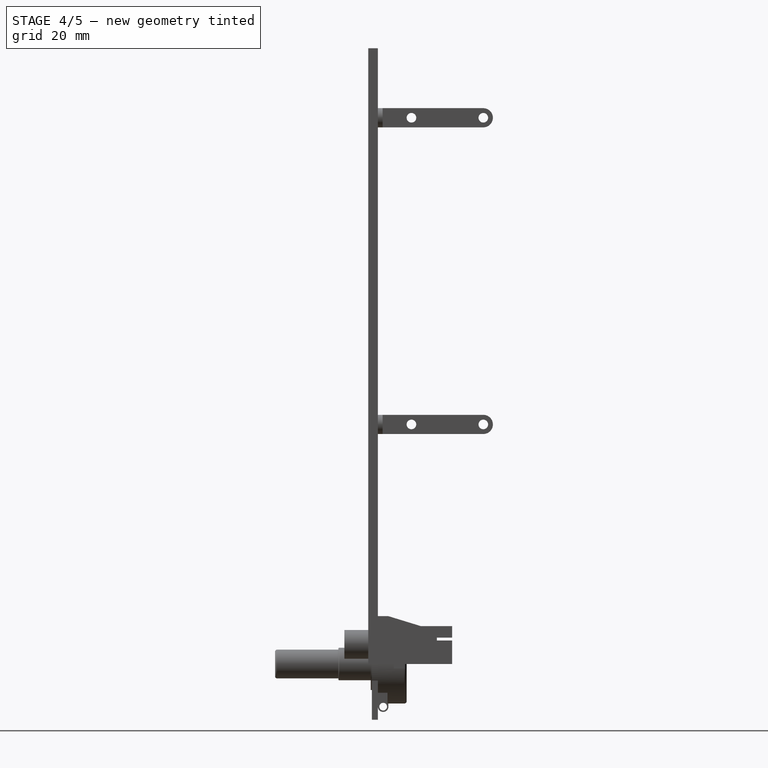
[diagram: stage 4 of 5 — right view after this stage's code; geometry added in this stage tinted green]
FEATURE [Sketcher::SketchObject] Sketch057
  ExternalGeometry = -> [Hole001]
  MapMode = 5
  Placement = pos=(0,0,0) rot=(0.57735,0.57735,-0.57735;4.18879rad)
  Support = -> [Hole001]
  sketch-geometry (4):
    g0: LineSegment StartX=12.3 StartY=-4.9 StartZ=0 EndX=15.5 EndY=-4.9 EndZ=0
    g1: LineSegment StartX=15.5 StartY=-4.9 StartZ=0 EndX=15.5 EndY=-5.5 EndZ=0
    g2: LineSegment StartX=15.5 StartY=-5.5 StartZ=0 EndX=12.3 EndY=-5.5 EndZ=0
    g3: LineSegment StartX=12.3 StartY=-5.5 StartZ=0 EndX=12.3 EndY=-4.9 EndZ=0
  constraints (12):
    c: Coincident(g0,g1)
    c: Coincident(g1,g2)
    c: Coincident(g2,g3)
    c: Coincident(g3,g0)
    c: Horizontal(g0)
    c: Horizontal(g2)
    c: Vertical(g1)
    c: Vertical(g3)
    c: DistanceX(g0,g-4) = 0
    c: DistanceX(g0,g0) = 3.2
    c: DistanceY(g3,g3) = 0.6
    c: DistanceY(g0,g-4) = 4.9
FEATURE [PartDesign::Pad] Pad033
  Length = 0.6
  Length2 = 100
  Placement = pos=(0,0,0) rot=(1,0,0;1.5708rad)
  Profile = -> Sketch060
  Type = 0
FEATURE [Sketcher::SketchObject] Sketch059
  ExternalGeometry = -> [Pad033]
  MapMode = 5
  Placement = pos=(0,-0.6,3e-16) rot=(1,0,0;1.5708rad)
  Support = -> [Pad033]
  sketch-geometry (2):
    g0: Circle CenterX=3.6 CenterY=4.1 CenterZ=0 NormalX=0 NormalY=0 NormalZ=1 AngleXU=0 Radius=3
    g1: GeomPoint X=3.6 Y=7.6 Z=0
  constraints (4):
    c: Diameter(g0) = 6
    c: DistanceY(g0,g-3) = 3.5
    c: Symmetric(g-3,g-3,g1)
    c: DistanceX(g1,g0) = 0
FEATURE [PartDesign::Pad] Pad034
  BaseFeature = -> Pad033
  Length = 6.4
  Length2 = 100
  Placement = pos=(0,0,0) rot=(1,0,0;1.5708rad)
  Profile = -> Sketch059
  Type = 0
FEATURE [Sketcher::SketchObject] Sketch064
  ExternalGeometry = -> [Pad034]
  MapMode = 5
  Placement = pos=(0,-7,6.9e-15) rot=(1,0,0;1.5708rad)
  Support = -> [Pad034]
  sketch-geometry (1):
    g0: Circle CenterX=3.6 CenterY=4.1 CenterZ=0 NormalX=0 NormalY=0 NormalZ=1 AngleXU=0 Radius=1.8
  constraints (2):
    c: Coincident(g-3,g0)
    c: Diameter(g0) = 3.6
FEATURE [PartDesign::Pad] Pad035
  Length = 0.6
  Length2 = 100
  Placement = pos=(0,0,0) rot=(1,0,0;1.5708rad)
  Profile = -> Sketch065
  Type = 0
FEATURE [Sketcher::SketchObject] Sketch058
  ExternalGeometry = -> [Pad035]
  MapMode = 5
  Placement = pos=(0,-0.6,3e-16) rot=(1,0,0;1.5708rad)
  Support = -> [Pad035]
  sketch-geometry (4):
    g0: LineSegment StartX=0 StartY=0 StartZ=0 EndX=2.2 EndY=0 EndZ=0
    g1: LineSegment StartX=2.2 StartY=0 StartZ=0 EndX=2.2 EndY=-0.6 EndZ=0
    g2: LineSegment StartX=2.2 StartY=-0.6 StartZ=0 EndX=0 EndY=-0.6 EndZ=0
    g3: LineSegment StartX=0 StartY=-0.6 StartZ=0 EndX=0 EndY=0 EndZ=0
  constraints (10):
    c: Coincident(g0,g1)
    c: Coincident(g1,g2)
    c: Coincident(g2,g3)
    c: Coincident(g3,g0)
    c: Horizontal(g2)
    c: Vertical(g1)
    c: Vertical(g3)
    c: Coincident(g0,g-1)
    c: Coincident(g0,g-3)
    c: DistanceY(g2,g0) = 0.6
FEATURE [PartDesign::Pad] Pad036
  Length = 0.6
  Length2 = 100
  Placement = pos=(0,0,0) rot=(0.57735,0.57735,0.57735;2.0944rad)
  Profile = -> Sketch056
  Type = 0
FEATURE [Sketcher::SketchObject] Sketch066
  ExternalGeometry = -> [Pad036]
  MapMode = 5
  Placement = pos=(0,0,0) rot=(0.57735,0.57735,-0.57735;4.18879rad)
  Support = -> [Pad036]
  sketch-geometry (4):
    g0: LineSegment StartX=0 StartY=0.6 StartZ=0 EndX=2.2 EndY=0.6 EndZ=0
    g1: LineSegment StartX=2.2 StartY=0.6 StartZ=0 EndX=2.2 EndY=1.2e-15 EndZ=0
    g2: LineSegment StartX=2.2 StartY=1.2e-15 StartZ=0 EndX=0 EndY=0 EndZ=0
    g3: LineSegment StartX=0 StartY=0 StartZ=0 EndX=0 EndY=0.6 EndZ=0
  constraints (10):
    c: Coincident(g0,g1)
    c: Coincident(g1,g2)
    c: Coincident(g2,g3)
    c: Coincident(g3,g0)
    c: Horizontal(g0)
    c: Vertical(g1)
    c: Vertical(g3)
    c: Coincident(g1,g-3)
    c: Coincident(g2,g-1)
    c: DistanceY(g3,g3) = 0.6
FEATURE [PartDesign::Pad] Pad032
  BaseFeature = -> Pad036
  Length = 10
  Length2 = 100
  Placement = pos=(0,0,0) rot=(0.57735,0.57735,0.57735;2.0944rad)
  Profile = -> Sketch066
  Type = 0
FEATURE [PartDesign::Body] Body005  label="Front lug001"
  Group = -> [Sketch060,Pad033,Sketch059,Pad034,Sketch064,Pocket009,Chamfer003]
  Origin = -> Origin009
  Placement = pos=(1.4,2.6,1.4) rot=(0,0,1;0rad)
  Tip = -> Chamfer003
FEATURE [PartDesign::Pad] Pad037
  BaseFeature = -> Pad032
  Length = 1
  Length2 = 100
  Placement = pos=(0,0,0) rot=(0.57735,0.57735,0.57735;2.0944rad)
  Profile = -> Pad032 [Face12]
  Type = 0
FEATURE [PartDesign::Body] Body007  label="Side lug001"
  Group = -> [Sketch056,Pad036,Sketch066,Pad032,Pad037]
  Origin = -> Origin010
  Placement = pos=(10,12.3,5.5) rot=(0,0,1;0rad)
  Tip = -> Pad037
FEATURE [PartDesign::Pad] Pad038
  BaseFeature = -> Pad035
  Length = 5
  Length2 = 100
  Placement = pos=(0,0,0) rot=(1,0,0;1.5708rad)
  Profile = -> Sketch058
  Type = 0
FEATURE [PartDesign::Body] Body006  label="Rear lug001"
  Group = -> [Sketch065,Pad035,Sketch058,Pad038]
  Origin = -> Origin012
  Placement = pos=(3.9,16.1,2) rot=(0,0,1;0rad)
  Tip = -> Pad038
FEATURE [App::Part] Part005  label="Square out"
  Group = -> [Body008,Body005,Body006,Body007]
  Origin = -> Origin011
  Placement = pos=(27.5,0,20.5) rot=(0,1,0;3.14159rad)
FEATURE [Sketcher::SketchObject] Sketch067
  MapMode = 5
  Placement = pos=(0,0,0) rot=(0.57735,0.57735,0.57735;2.0944rad)
  Support = -> [YZ_Plane016]
  sketch-geometry (4):
    g0: LineSegment StartX=0 StartY=10 StartZ=0 EndX=0 EndY=0 EndZ=0
    g1: LineSegment StartX=0 StartY=0 StartZ=0 EndX=15.5 EndY=0 EndZ=0
    g2: LineSegment StartX=15.5 StartY=0 StartZ=0 EndX=15.5 EndY=10 EndZ=0
    g3: LineSegment StartX=15.5 StartY=10 StartZ=0 EndX=0 EndY=10 EndZ=0
  constraints (11):
    c: Coincident(g0,g1)
    c: Coincident(g1,g2)
    c: Coincident(g3,g0)
    c: Vertical(g0)
    c: Parallel(g2,g0)
    c: Horizontal(g1)
    c: Horizontal(g3)
    c: DistanceX(g1,g1) = 15.5
    c: DistanceY(g0,g0) = 10
    c: Coincident(g2,g3)
    c: Coincident(g-1,g0)
FEATURE [Sketcher::SketchObject] Sketch069
  MapMode = 5
  Placement = pos=(0,0,0) rot=(0.57735,0.57735,0.57735;2.0944rad)
  Support = -> [YZ_Plane013]
  sketch-geometry (6):
    g0: LineSegment StartX=0 StartY=-8.9 StartZ=0 EndX=0 EndY=0 EndZ=0
    g1: LineSegment StartX=0 StartY=0 StartZ=0 EndX=2.2 EndY=0 EndZ=0
    g2: LineSegment StartX=2.2 StartY=0 StartZ=0 EndX=2.2 EndY=-8.9 EndZ=0
    g3: ArcOfCircle CenterX=1.1 CenterY=-8.9 CenterZ=0 NormalX=0 NormalY=0 NormalZ=1 AngleXU=0 Radius=1.1 StartAngle=3.14159 EndAngle=6.28319
    g4: GeomPoint X=1.1 Y=-10 Z=0
    g5: Circle CenterX=1.1 CenterY=-8.9 CenterZ=0 NormalX=0 NormalY=0 NormalZ=1 AngleXU=0 Radius=0.8
  constraints (15):
    c: Coincident(g0,g1)
    c: Coincident(g1,g2)
    c: Horizontal(g1)
    c: Vertical(g0)
    c: Vertical(g2)
    c: Equal(g2,g0)
    c: DistanceX(g1,g1) = 2.2
    c: PointOnObject(g4,g3)
    c: DistanceX(g3,g4) = 0
    c: Tangent(g3,g0) = 1.5708
    c: Coincident(g0,g-1)
    c: DistanceY(g4,g0) = 10
    c: Coincident(g2,g3)
    c: Radius(g5) = 0.8
    c: Coincident(g3,g5)
FEATURE [Sketcher::SketchObject] Sketch073
  MapMode = 5
  Placement = pos=(0,0,0) rot=(1,0,0;1.5708rad)
  Support = -> [XZ_Plane015]
  sketch-geometry (10):
    g0: LineSegment StartX=7.2 StartY=7.6 StartZ=0 EndX=0 EndY=7.6 EndZ=0
    g1: LineSegment StartX=0 StartY=7.6 StartZ=0 EndX=0 EndY=0 EndZ=0
    g2: LineSegment StartX=0 StartY=0 StartZ=0 EndX=2.5 EndY=0 EndZ=0
    g3: LineSegment StartX=2.5 StartY=0 StartZ=0 EndX=2.5 EndY=-4.8 EndZ=0
    g4: LineSegment StartX=4.7 StartY=-4.8 StartZ=0 EndX=4.7 EndY=0 EndZ=0
    g5: LineSegment StartX=4.7 StartY=-4e-16 StartZ=0 EndX=7.2 EndY=-4e-16 EndZ=0
    g6: LineSegment StartX=7.2 StartY=-4e-16 StartZ=0 EndX=7.2 EndY=7.6 EndZ=0
    g7: ArcOfCircle CenterX=3.6 CenterY=-4.8 CenterZ=0 NormalX=0 NormalY=0 NormalZ=1 AngleXU=0 Radius=1.1 StartAngle=3.14159 EndAngle=6.28319
    g8: GeomPoint X=3.6 Y=-5.9 Z=0
    g9: Circle CenterX=3.6 CenterY=-4.8 CenterZ=0 NormalX=0 NormalY=0 NormalZ=1 AngleXU=0 Radius=0.8
  constraints (28):
    c: Coincident(g0,g1)
    c: Coincident(g1,g2)
    c: Coincident(g2,g3)
    c: Coincident(g4,g5)
    c: Coincident(g5,g6)
    c: Coincident(g6,g0)
    c: Horizontal(g0)
    c: Horizontal(g2)
    c: Horizontal(g5)
    c: Vertical(g6)
    c: Vertical(g1)
    c: Vertical(g3)
    c: Vertical(g4)
    c: Equal(g5,g2)
    c: Equal(g1,g6)
    c: Equal(g3,g4)
    c: DistanceX(g8,g7) = 0
    c: PointOnObject(g8,g7)
    c: Coincident(g4,g7)
    c: Coincident(g3,g7)
    c: DistanceX(g2,g4) = 2.2
    c: Coincident(g9,g7)
    c: Radius(g9) = 0.8
    c: DistanceX(g0,g0) = 7.2
    c: DistanceY(g6,g6) = 7.6
    c: Coincident(g1,g-1)
    c: DistanceY(g8,g2) = 5.9
    c: Tangent(g4,g7) = -1.5708
FEATURE [Sketcher::SketchObject] Sketch078
  MapMode = 5
  Placement = pos=(0,0,0) rot=(1,0,0;1.5708rad)
  Support = -> [XZ_Plane017]
  sketch-geometry (6):
    g0: LineSegment StartX=0 StartY=-5.4 StartZ=0 EndX=0 EndY=0 EndZ=0
    g1: LineSegment StartX=0 StartY=0 StartZ=0 EndX=2.2 EndY=-2e-16 EndZ=0
    g2: LineSegment StartX=2.2 StartY=-2e-16 StartZ=0 EndX=2.2 EndY=-5.4 EndZ=0
    g3: ArcOfCircle CenterX=1.1 CenterY=-5.4 CenterZ=0 NormalX=0 NormalY=0 NormalZ=1 AngleXU=0 Radius=1.1 StartAngle=3.14159 EndAngle=6.28319
    g4: Circle CenterX=1.1 CenterY=-5.4 CenterZ=0 NormalX=0 NormalY=0 NormalZ=1 AngleXU=0 Radius=0.8
    g5: GeomPoint X=1.1 Y=-6.5 Z=0
  constraints (14):
    c: Coincident(g0,g1)
    c: Coincident(g1,g2)
    c: Vertical(g0)
    c: Vertical(g2)
    c: Coincident(g0,g-1)
    c: Equal(g2,g0)
    c: Tangent(g3,g2) = 1.5708
    c: Tangent(g0,g3) = 1.5708
    c: DistanceX(g1,g1) = 2.2
    c: Radius(g4) = 0.8
    c: Coincident(g3,g4)
    c: DistanceX(g3,g5) = 0
    c: PointOnObject(g5,g3)
    c: DistanceY(g5,g0) = 6.5
FEATURE [PartDesign::Pad] Pad039  label="Base002"
  Length = 10
  Length2 = 100
  Placement = pos=(0,0,0) rot=(0.57735,0.57735,0.57735;2.0944rad)
  Profile = -> Sketch067
  Type = 0
FEATURE [Sketcher::SketchObject] Sketch068
  ExternalGeometry = -> [Pad039]
  MapMode = 5
  Placement = pos=(-2.8e-15,4.4e-15,10) rot=(0,0,-1;1.5708rad)
  Support = -> [Pad039]
  sketch-geometry (5):
    g0: LineSegment StartX=-15.5 StartY=8.6 StartZ=0 EndX=-15.5 EndY=5 EndZ=0
    g1: LineSegment StartX=-15.5 StartY=5 StartZ=0 EndX=-15.5 EndY=1.4 EndZ=0
    g2: LineSegment StartX=-15.5 StartY=1.4 StartZ=0 EndX=-2.15 EndY=1.4 EndZ=0
    g3: LineSegment StartX=-2.15 StartY=1.4 StartZ=0 EndX=-2.15 EndY=8.6 EndZ=0
    g4: LineSegment StartX=-2.15 StartY=8.6 StartZ=0 EndX=-15.5 EndY=8.6 EndZ=0
  constraints (14):
    c: Coincident(g0,g1)
    c: Coincident(g1,g2)
    c: Coincident(g2,g3)
    c: Coincident(g3,g4)
    c: Coincident(g4,g0)
    c: Vertical(g3)
    c: Vertical(g0)
    c: Horizontal(g4)
    c: Horizontal(g2)
    c: DistanceX(g2,g-4) = 2.15
    c: Symmetric(g1,g0,g0)
    c: DistanceY(g-5,g0) = 5
    c: DistanceX(g-5,g1) = 0
    c: DistanceY(g0,g-5) = 1.4
FEATURE [Sketcher::SketchObject] Sketch074
  MapMode = 5
  Placement = pos=(0,0,0) rot=(-0.57735,-0.57735,0.57735;4.18879rad)
  Support = -> [Pad039]
  sketch-geometry (5):
    g0: LineSegment StartX=-2 StartY=6.1 StartZ=0 EndX=-2 EndY=3.9 EndZ=0
    g1: LineSegment StartX=-2 StartY=3.9 StartZ=0 EndX=0 EndY=3.9 EndZ=0
    g2: LineSegment StartX=0 StartY=3.9 StartZ=0 EndX=-1e-16 EndY=5 EndZ=0
    g3: LineSegment StartX=-1e-16 StartY=5 StartZ=0 EndX=-1e-16 EndY=6.1 EndZ=0
    g4: LineSegment StartX=-1e-16 StartY=6.1 StartZ=0 EndX=-2 EndY=6.1 EndZ=0
  constraints (14):
    c: Coincident(g0,g1)
    c: Coincident(g1,g2)
    c: Coincident(g2,g3)
    c: Coincident(g3,g4)
    c: Coincident(g4,g0)
    c: Horizontal(g1)
    c: Horizontal(g4)
    c: Vertical(g0)
    c: Vertical(g3)
    c: Symmetric(g3,g1,g2)
    c: DistanceY(g-1,g2) = 5
    c: DistanceX(g1,g1) = 2
    c: DistanceY(g0,g0) = 2.2
    c: DistanceX(g1,g-1) = 0
FEATURE [PartDesign::Pocket] Pocket011  label="Front lug pocket002"
  BaseFeature = -> Pad039
  Length = 9
  Length2 = 100
  Placement = pos=(0,0,0) rot=(0.57735,0.57735,0.57735;2.0944rad)
  Profile = -> Sketch074
  Type = 0
FEATURE [Sketcher::SketchObject] Sketch075
  ExternalGeometry = -> [Pocket011]
  MapMode = 5
  Placement = pos=(0,0,0) rot=(-0.57735,-0.57735,0.57735;4.18879rad)
  Support = -> [Pocket011]
  sketch-geometry (1):
    g0: Circle CenterX=-5.5 CenterY=5 CenterZ=0 NormalX=0 NormalY=0 NormalZ=1 AngleXU=0 Radius=3
  constraints (3):
    c: Diameter(g0) = 6
    c: DistanceY(g-1,g0) = 5
    c: Distance(g0,g-4) = 4.5
FEATURE [Sketcher::SketchObject] Sketch076
  ExternalGeometry = -> [Pocket011]
  MapMode = 5
  Placement = pos=(10,-9e-15,6e-15) rot=(0.57735,0.57735,0.57735;2.0944rad)
  sketch-geometry (4):
    g0: LineSegment StartX=2.15 StartY=10 StartZ=0 EndX=9 EndY=7.9 EndZ=0
    g1: LineSegment StartX=9 StartY=7.9 StartZ=0 EndX=15.5 EndY=7.9 EndZ=0
    g2: LineSegment StartX=15.5 StartY=7.9 StartZ=0 EndX=15.5 EndY=10 EndZ=0
    g3: LineSegment StartX=15.5 StartY=10 StartZ=0 EndX=2.15 EndY=10 EndZ=0
  constraints (11):
    c: Coincident(g0,g1)
    c: Coincident(g1,g2)
    c: Coincident(g2,g3)
    c: Coincident(g3,g0)
    c: Horizontal(g1)
    c: DistanceX(g1,g1) = 6.5
    c: Vertical(g2)
    c: Horizontal(g3)
    c: Coincident(g2,g-3)
    c: DistanceX(g-1,g0) = 2.15
    c: DistanceY(g2,g2) = 2.1
FEATURE [PartDesign::Pocket] Pocket012  label="Side pocket002"
  BaseFeature = -> Pocket011
  Length = 10
  Length2 = 100
  Placement = pos=(0,0,0) rot=(0.57735,0.57735,0.57735;2.0944rad)
  Profile = -> Sketch076
  Type = 0
FEATURE [PartDesign::Pocket] Pocket010  label="Top pocket002"
  BaseFeature = -> Pocket012
  Length = 8.6
  Length2 = 100
  Placement = pos=(0,0,0) rot=(0.57735,0.57735,0.57735;2.0944rad)
  Profile = -> Sketch068
  Type = 0
FEATURE [PartDesign::Hole] Hole002
  BaseFeature = -> Pocket010
  Depth = 25
  DepthType = 0
  Diameter = 6
  DrillPoint = 1
  DrillPointAngle = 118
  HoleCutCountersinkAngle = 90
  HoleCutDepth = 0
  HoleCutDiameter = 0
  HoleCutType = 0
  ModelActualThread = false
  Placement = pos=(0,0,0) rot=(0.57735,0.57735,0.57735;2.0944rad)
  Profile = -> Sketch075
  Tapered = false
  TaperedAngle = 90
  ThreadAngle = 0
  ThreadClass = 0
  ThreadCutOffInner = 0
  ThreadCutOffOuter = 0
  ThreadDirection = 0
  ThreadFit = 0
  ThreadPitch = 0
  ThreadSize = 0
  ThreadType = 0
  Threaded = false
FEATURE [Sketcher::SketchObject] Sketch070
  ExternalGeometry = -> [Hole002]
  MapMode = 5
  Placement = pos=(0,0,0) rot=(0.57735,0.57735,-0.57735;4.18879rad)
  Support = -> [Hole002]
  sketch-geometry (4):
    g0: LineSegment StartX=12.3 StartY=-4.9 StartZ=0 EndX=15.5 EndY=-4.9 EndZ=0
    g1: LineSegment StartX=15.5 StartY=-4.9 StartZ=0 EndX=15.5 EndY=-5.5 EndZ=0
    g2: LineSegment StartX=15.5 StartY=-5.5 StartZ=0 EndX=12.3 EndY=-5.5 EndZ=0
    g3: LineSegment StartX=12.3 StartY=-5.5 StartZ=0 EndX=12.3 EndY=-4.9 EndZ=0
  constraints (12):
    c: Coincident(g0,g1)
    c: Coincident(g1,g2)
    c: Coincident(g2,g3)
    c: Coincident(g3,g0)
    c: Horizontal(g0)
    c: Horizontal(g2)
    c: Vertical(g1)
    c: Vertical(g3)
    c: DistanceX(g0,g-4) = 0
    c: DistanceX(g0,g0) = 3.2
    c: DistanceY(g3,g3) = 0.6
    c: DistanceY(g0,g-4) = 4.9
FEATURE [PartDesign::Pad] Pad041
  Length = 0.6
  Length2 = 100
  Placement = pos=(0,0,0) rot=(1,0,0;1.5708rad)
  Profile = -> Sketch073
  Type = 0
FEATURE [Sketcher::SketchObject] Sketch072
  ExternalGeometry = -> [Pad041]
  MapMode = 5
  Placement = pos=(0,-0.6,3e-16) rot=(1,0,0;1.5708rad)
  Support = -> [Pad041]
  sketch-geometry (2):
    g0: Circle CenterX=3.6 CenterY=4.1 CenterZ=0 NormalX=0 NormalY=0 NormalZ=1 AngleXU=0 Radius=3
    g1: GeomPoint X=3.6 Y=7.6 Z=0
  constraints (4):
    c: Diameter(g0) = 6
    c: DistanceY(g0,g-3) = 3.5
    c: Symmetric(g-3,g-3,g1)
    c: DistanceX(g1,g0) = 0
FEATURE [PartDesign::Pad] Pad042
  BaseFeature = -> Pad041
  Length = 6.4
  Length2 = 100
  Placement = pos=(0,0,0) rot=(1,0,0;1.5708rad)
  Profile = -> Sketch072
  Type = 0
FEATURE [Sketcher::SketchObject] Sketch077
  ExternalGeometry = -> [Pad042]
  MapMode = 5
  Placement = pos=(0,-7,6.9e-15) rot=(1,0,0;1.5708rad)
  Support = -> [Pad042]
  sketch-geometry (1):
    g0: Circle CenterX=3.6 CenterY=4.1 CenterZ=0 NormalX=0 NormalY=0 NormalZ=1 AngleXU=0 Radius=1.8
  constraints (2):
    c: Coincident(g-3,g0)
    c: Diameter(g0) = 3.6
FEATURE [PartDesign::Pad] Pad043
  Length = 0.6
  Length2 = 100
  Placement = pos=(0,0,0) rot=(1,0,0;1.5708rad)
  Profile = -> Sketch078
  Type = 0
FEATURE [Sketcher::SketchObject] Sketch071
  ExternalGeometry = -> [Pad043]
  MapMode = 5
  Placement = pos=(0,-0.6,3e-16) rot=(1,0,0;1.5708rad)
  Support = -> [Pad043]
  sketch-geometry (4):
    g0: LineSegment StartX=0 StartY=0 StartZ=0 EndX=2.2 EndY=0 EndZ=0
    g1: LineSegment StartX=2.2 StartY=0 StartZ=0 EndX=2.2 EndY=-0.6 EndZ=0
    g2: LineSegment StartX=2.2 StartY=-0.6 StartZ=0 EndX=0 EndY=-0.6 EndZ=0
    g3: LineSegment StartX=0 StartY=-0.6 StartZ=0 EndX=0 EndY=0 EndZ=0
  constraints (10):
    c: Coincident(g0,g1)
    c: Coincident(g1,g2)
    c: Coincident(g2,g3)
    c: Coincident(g3,g0)
    c: Horizontal(g2)
    c: Vertical(g1)
    c: Vertical(g3)
    c: Coincident(g0,g-1)
    c: Coincident(g0,g-3)
    c: DistanceY(g2,g0) = 0.6
FEATURE [PartDesign::Pad] Pad044
  Length = 0.6
  Length2 = 100
  Placement = pos=(0,0,0) rot=(0.57735,0.57735,0.57735;2.0944rad)
  Profile = -> Sketch069
  Type = 0
FEATURE [Sketcher::SketchObject] Sketch079
  ExternalGeometry = -> [Pad044]
  MapMode = 5
  Placement = pos=(0,0,0) rot=(0.57735,0.57735,-0.57735;4.18879rad)
  Support = -> [Pad044]
  sketch-geometry (4):
    g0: LineSegment StartX=0 StartY=0.6 StartZ=0 EndX=2.2 EndY=0.6 EndZ=0
    g1: LineSegment StartX=2.2 StartY=0.6 StartZ=0 EndX=2.2 EndY=1.2e-15 EndZ=0
    g2: LineSegment StartX=2.2 StartY=1.2e-15 StartZ=0 EndX=0 EndY=0 EndZ=0
    g3: LineSegment StartX=0 StartY=0 StartZ=0 EndX=0 EndY=0.6 EndZ=0
  constraints (10):
    c: Coincident(g0,g1)
    c: Coincident(g1,g2)
    c: Coincident(g2,g3)
    c: Coincident(g3,g0)
    c: Horizontal(g0)
    c: Vertical(g1)
    c: Vertical(g3)
    c: Coincident(g1,g-3)
    c: Coincident(g2,g-1)
    c: DistanceY(g3,g3) = 0.6
FEATURE [PartDesign::Pad] Pad040
  BaseFeature = -> Pad044
  Length = 10
  Length2 = 100
  Placement = pos=(0,0,0) rot=(0.57735,0.57735,0.57735;2.0944rad)
  Profile = -> Sketch079
  Type = 0
FEATURE [PartDesign::Pocket] Pocket013
  BaseFeature = -> Hole002
  Length = 10
  Length2 = 100
  Placement = pos=(0,0,0) rot=(0.57735,0.57735,0.57735;2.0944rad)
  Profile = -> Sketch070
  Type = 0
FEATURE [PartDesign::Body] Body012  label="Housing002"
  Group = -> [Sketch067,Pad039,Sketch074,Pocket011,Sketch075,Sketch076,Pocket012,Sketch068,Pocket010,Hole002,Sketch070,Pocket013]
  Origin = -> Origin013
  Tip = -> Pocket013
FEATURE [PartDesign::Pocket] Pocket014
  BaseFeature = -> Pad042
  Length = 9
  Length2 = 100
  Placement = pos=(0,0,0) rot=(1,0,0;1.5708rad)
  Profile = -> Sketch077
  Type = 0
FEATURE [PartDesign::Chamfer] Chamfer004
  Base = -> Pocket014 [Face14]
  BaseFeature = -> Pocket014
  Placement = pos=(0,0,0) rot=(1,0,0;1.5708rad)
  Size = 0.2
FEATURE [PartDesign::Body] Body009  label="Front lug002"
  Group = -> [Sketch073,Pad041,Sketch072,Pad042,Sketch077,Pocket014,Chamfer004]
  Origin = -> Origin014
  Placement = pos=(1.4,2.6,1.4) rot=(0,0,1;0rad)
  Tip = -> Chamfer004
FEATURE [PartDesign::Pad] Pad045
  BaseFeature = -> Pad040
  Length = 1
  Length2 = 100
  Placement = pos=(0,0,0) rot=(0.57735,0.57735,0.57735;2.0944rad)
  Profile = -> Pad040 [Face12]
  Type = 0
FEATURE [PartDesign::Body] Body011  label="Side lug002"
  Group = -> [Sketch069,Pad044,Sketch079,Pad040,Pad045]
  Origin = -> Origin015
  Placement = pos=(10,12.3,5.5) rot=(0,0,1;0rad)
  Tip = -> Pad045
FEATURE [PartDesign::Pad] Pad046
  BaseFeature = -> Pad043
  Length = 5
  Length2 = 100
  Placement = pos=(0,0,0) rot=(1,0,0;1.5708rad)
  Profile = -> Sketch071
  Type = 0
FEATURE [PartDesign::Chamfer] Chamfer005
  Base = -> Pocket019 [Face14]
  BaseFeature = -> Pocket019
  Placement = pos=(0,0,0) rot=(1,0,0;1.5708rad)
  Size = 0.2
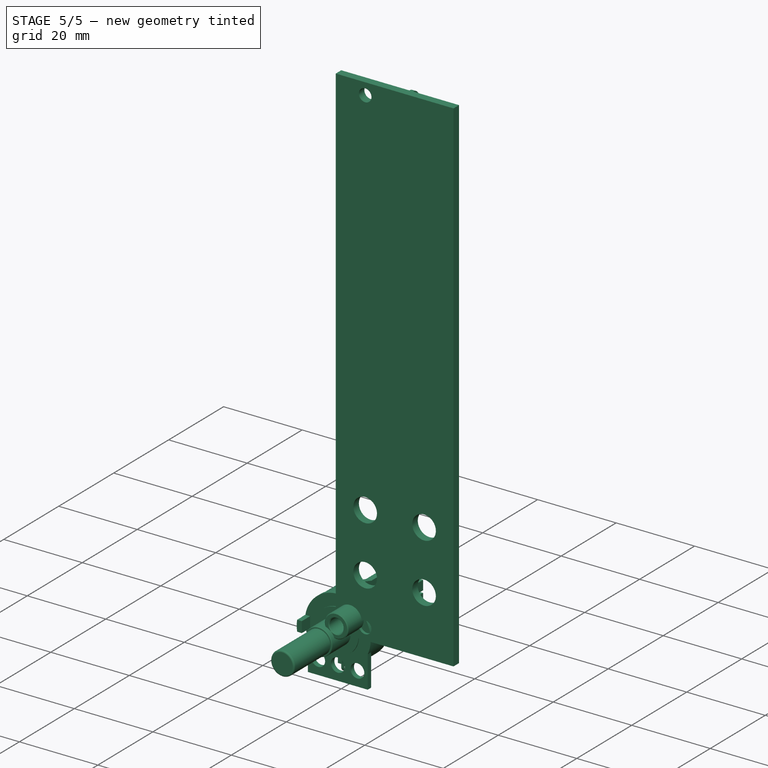
[diagram: stage 5 of 5 — iso view after this stage's code; geometry added in this stage tinted green]
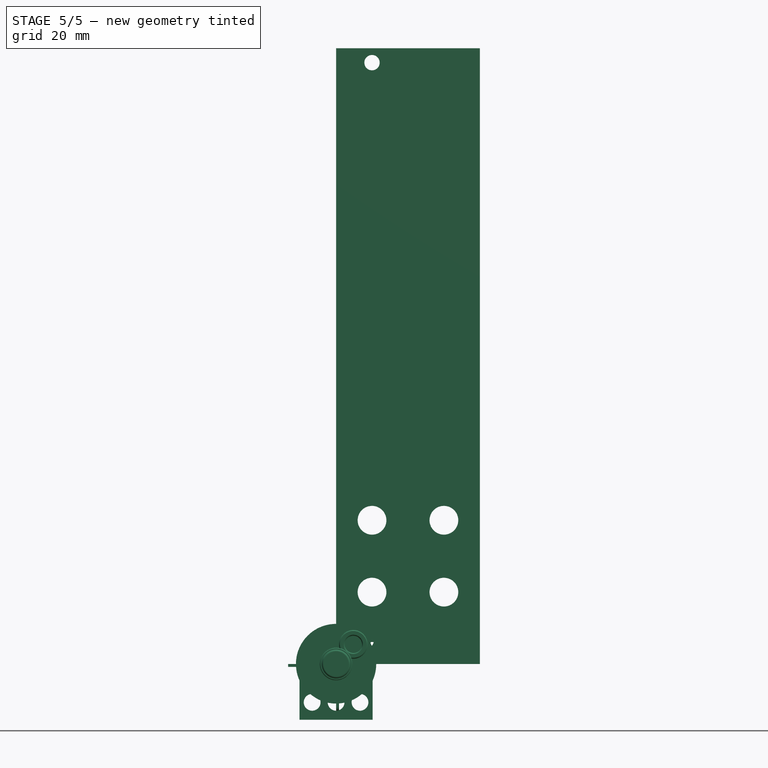
[diagram: stage 5 of 5 — front view after this stage's code; geometry added in this stage tinted green]
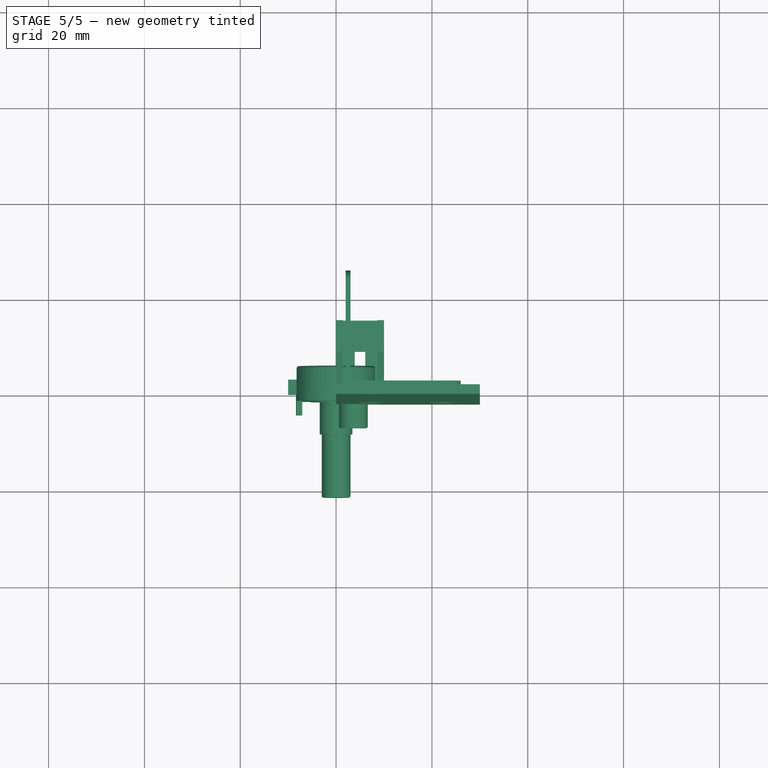
[diagram: stage 5 of 5 — top view after this stage's code; geometry added in this stage tinted green]
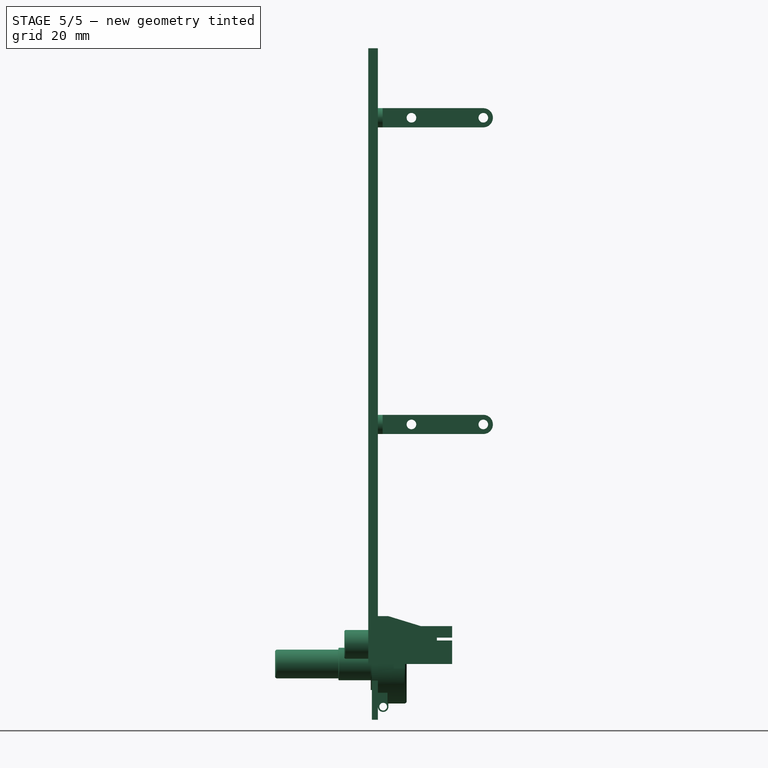
[diagram: stage 5 of 5 — right view after this stage's code; geometry added in this stage tinted green]
FEATURE [Sketcher::SketchObject] Sketch
  MapMode = 5
  Placement = pos=(0,0,0) rot=(0.57735,0.57735,0.57735;2.0944rad)
  Support = -> [YZ_Plane007]
  sketch-geometry (4):
    g0: LineSegment StartX=0 StartY=10 StartZ=0 EndX=0 EndY=0 EndZ=0
    g1: LineSegment StartX=0 StartY=0 StartZ=0 EndX=15.5 EndY=0 EndZ=0
    g2: LineSegment StartX=15.5 StartY=0 StartZ=0 EndX=15.5 EndY=10 EndZ=0
    g3: LineSegment StartX=15.5 StartY=10 StartZ=0 EndX=0 EndY=10 EndZ=0
  constraints (11):
    c: Coincident(g0,g1)
    c: Coincident(g1,g2)
    c: Coincident(g3,g0)
    c: Vertical(g0)
    c: Parallel(g2,g0)
    c: Horizontal(g1)
    c: Horizontal(g3)
    c: DistanceX(g1,g1) = 15.5
    c: DistanceY(g0,g0) = 10
    c: Coincident(g2,g3)
    c: Coincident(g-1,g0)
FEATURE [Sketcher::SketchObject] Sketch046
  MapMode = 5
  Placement = pos=(0,0,0) rot=(0.57735,0.57735,0.57735;2.0944rad)
  Support = -> [YZ_Plane005]
  sketch-geometry (6):
    g0: LineSegment StartX=0 StartY=-8.9 StartZ=0 EndX=0 EndY=0 EndZ=0
    g1: LineSegment StartX=0 StartY=0 StartZ=0 EndX=2.2 EndY=0 EndZ=0
    g2: LineSegment StartX=2.2 StartY=0 StartZ=0 EndX=2.2 EndY=-8.9 EndZ=0
    g3: ArcOfCircle CenterX=1.1 CenterY=-8.9 CenterZ=0 NormalX=0 NormalY=0 NormalZ=1 AngleXU=0 Radius=1.1 StartAngle=3.14159 EndAngle=6.28319
    g4: GeomPoint X=1.1 Y=-10 Z=0
    g5: Circle CenterX=1.1 CenterY=-8.9 CenterZ=0 NormalX=0 NormalY=0 NormalZ=1 AngleXU=0 Radius=0.8
  constraints (15):
    c: Coincident(g0,g1)
    c: Coincident(g1,g2)
    c: Horizontal(g1)
    c: Vertical(g0)
    c: Vertical(g2)
    c: Equal(g2,g0)
    c: DistanceX(g1,g1) = 2.2
    c: PointOnObject(g4,g3)
    c: DistanceX(g3,g4) = 0
    c: Tangent(g3,g0) = 1.5708
    c: Coincident(g0,g-1)
    c: DistanceY(g4,g0) = 10
    c: Coincident(g2,g3)
    c: Radius(g5) = 0.8
    c: Coincident(g3,g5)
FEATURE [Sketcher::SketchObject] Sketch050
  MapMode = 5
  Placement = pos=(0,0,0) rot=(1,0,0;1.5708rad)
  Support = -> [XZ_Plane]
  sketch-geometry (10):
    g0: LineSegment StartX=7.2 StartY=7.6 StartZ=0 EndX=0 EndY=7.6 EndZ=0
    g1: LineSegment StartX=0 StartY=7.6 StartZ=0 EndX=0 EndY=0 EndZ=0
    g2: LineSegment StartX=0 StartY=0 StartZ=0 EndX=2.5 EndY=0 EndZ=0
    g3: LineSegment StartX=2.5 StartY=0 StartZ=0 EndX=2.5 EndY=-4.8 EndZ=0
    g4: LineSegment StartX=4.7 StartY=-4.8 StartZ=0 EndX=4.7 EndY=0 EndZ=0
    g5: LineSegment StartX=4.7 StartY=-4e-16 StartZ=0 EndX=7.2 EndY=-4e-16 EndZ=0
    g6: LineSegment StartX=7.2 StartY=-4e-16 StartZ=0 EndX=7.2 EndY=7.6 EndZ=0
    g7: ArcOfCircle CenterX=3.6 CenterY=-4.8 CenterZ=0 NormalX=0 NormalY=0 NormalZ=1 AngleXU=0 Radius=1.1 StartAngle=3.14159 EndAngle=6.28319
    g8: GeomPoint X=3.6 Y=-5.9 Z=0
    g9: Circle CenterX=3.6 CenterY=-4.8 CenterZ=0 NormalX=0 NormalY=0 NormalZ=1 AngleXU=0 Radius=0.8
  constraints (28):
    c: Coincident(g0,g1)
    c: Coincident(g1,g2)
    c: Coincident(g2,g3)
    c: Coincident(g4,g5)
    c: Coincident(g5,g6)
    c: Coincident(g6,g0)
    c: Horizontal(g0)
    c: Horizontal(g2)
    c: Horizontal(g5)
    c: Vertical(g6)
    c: Vertical(g1)
    c: Vertical(g3)
    c: Vertical(g4)
    c: Equal(g5,g2)
    c: Equal(g1,g6)
    c: Equal(g3,g4)
    c: DistanceX(g8,g7) = 0
    c: PointOnObject(g8,g7)
    c: Coincident(g4,g7)
    c: Coincident(g3,g7)
    c: DistanceX(g2,g4) = 2.2
    c: Coincident(g9,g7)
    c: Radius(g9) = 0.8
    c: DistanceX(g0,g0) = 7.2
    c: DistanceY(g6,g6) = 7.6
    c: Coincident(g1,g-1)
    c: DistanceY(g8,g2) = 5.9
    c: Tangent(g4,g7) = -1.5708
FEATURE [Sketcher::SketchObject] Sketch052
  MapMode = 5
  Placement = pos=(0,0,0) rot=(1,0,0;1.5708rad)
  Support = -> [XZ_Plane002]
  sketch-geometry (6):
    g0: LineSegment StartX=0 StartY=-5.4 StartZ=0 EndX=0 EndY=0 EndZ=0
    g1: LineSegment StartX=0 StartY=0 StartZ=0 EndX=2.2 EndY=-2e-16 EndZ=0
    g2: LineSegment StartX=2.2 StartY=-2e-16 StartZ=0 EndX=2.2 EndY=-5.4 EndZ=0
    g3: ArcOfCircle CenterX=1.1 CenterY=-5.4 CenterZ=0 NormalX=0 NormalY=0 NormalZ=1 AngleXU=0 Radius=1.1 StartAngle=3.14159 EndAngle=6.28319
    g4: Circle CenterX=1.1 CenterY=-5.4 CenterZ=0 NormalX=0 NormalY=0 NormalZ=1 AngleXU=0 Radius=0.8
    g5: GeomPoint X=1.1 Y=-6.5 Z=0
  constraints (14):
    c: Coincident(g0,g1)
    c: Coincident(g1,g2)
    c: Vertical(g0)
    c: Vertical(g2)
    c: Coincident(g0,g-1)
    c: Equal(g2,g0)
    c: Tangent(g3,g2) = 1.5708
    c: Tangent(g0,g3) = 1.5708
    c: DistanceX(g1,g1) = 2.2
    c: Radius(g4) = 0.8
    c: Coincident(g3,g4)
    c: DistanceX(g3,g5) = 0
    c: PointOnObject(g5,g3)
    c: DistanceY(g5,g0) = 6.5
FEATURE [PartDesign::Pad] Pad  label="Base"
  Length = 10
  Length2 = 100
  Placement = pos=(0,0,0) rot=(0.57735,0.57735,0.57735;2.0944rad)
  Profile = -> Sketch
  Type = 0
FEATURE [Sketcher::SketchObject] Sketch045
  ExternalGeometry = -> [Pad]
  MapMode = 5
  Placement = pos=(-2.8e-15,4.4e-15,10) rot=(0,0,-1;1.5708rad)
  Support = -> [Pad]
  sketch-geometry (5):
    g0: LineSegment StartX=-15.5 StartY=8.6 StartZ=0 EndX=-15.5 EndY=5 EndZ=0
    g1: LineSegment StartX=-15.5 StartY=5 StartZ=0 EndX=-15.5 EndY=1.4 EndZ=0
    g2: LineSegment StartX=-15.5 StartY=1.4 StartZ=0 EndX=-2.15 EndY=1.4 EndZ=0
    g3: LineSegment StartX=-2.15 StartY=1.4 StartZ=0 EndX=-2.15 EndY=8.6 EndZ=0
    g4: LineSegment StartX=-2.15 StartY=8.6 StartZ=0 EndX=-15.5 EndY=8.6 EndZ=0
  constraints (14):
    c: Coincident(g0,g1)
    c: Coincident(g1,g2)
    c: Coincident(g2,g3)
    c: Coincident(g3,g4)
    c: Coincident(g4,g0)
    c: Vertical(g3)
    c: Vertical(g0)
    c: Horizontal(g4)
    c: Horizontal(g2)
    c: DistanceX(g2,g-4) = 2.15
    c: Symmetric(g1,g0,g0)
    c: DistanceY(g-5,g0) = 5
    c: DistanceX(g-5,g1) = 0
    c: DistanceY(g0,g-5) = 1.4
FEATURE [Sketcher::SketchObject] Sketch001
  MapMode = 5
  Placement = pos=(0,0,0) rot=(-0.57735,-0.57735,0.57735;4.18879rad)
  Support = -> [Pad]
  sketch-geometry (5):
    g0: LineSegment StartX=-2 StartY=6.1 StartZ=0 EndX=-2 EndY=3.9 EndZ=0
    g1: LineSegment StartX=-2 StartY=3.9 StartZ=0 EndX=0 EndY=3.9 EndZ=0
    g2: LineSegment StartX=0 StartY=3.9 StartZ=0 EndX=-1e-16 EndY=5 EndZ=0
    g3: LineSegment StartX=-1e-16 StartY=5 StartZ=0 EndX=-1e-16 EndY=6.1 EndZ=0
    g4: LineSegment StartX=-1e-16 StartY=6.1 StartZ=0 EndX=-2 EndY=6.1 EndZ=0
  constraints (14):
    c: Coincident(g0,g1)
    c: Coincident(g1,g2)
    c: Coincident(g2,g3)
    c: Coincident(g3,g4)
    c: Coincident(g4,g0)
    c: Horizontal(g1)
    c: Horizontal(g4)
    c: Vertical(g0)
    c: Vertical(g3)
    c: Symmetric(g3,g1,g2)
    c: DistanceY(g-1,g2) = 5
    c: DistanceX(g1,g1) = 2
    c: DistanceY(g0,g0) = 2.2
    c: DistanceX(g1,g-1) = 0
FEATURE [PartDesign::Pocket] Pocket  label="Front lug pocket"
  BaseFeature = -> Pad
  Length = 9
  Length2 = 100
  Placement = pos=(0,0,0) rot=(0.57735,0.57735,0.57735;2.0944rad)
  Profile = -> Sketch001
  Type = 0
FEATURE [Sketcher::SketchObject] Sketch002
  ExternalGeometry = -> [Pocket]
  MapMode = 5
  Placement = pos=(0,0,0) rot=(-0.57735,-0.57735,0.57735;4.18879rad)
  Support = -> [Pocket]
  sketch-geometry (1):
    g0: Circle CenterX=-5.5 CenterY=5 CenterZ=0 NormalX=0 NormalY=0 NormalZ=1 AngleXU=0 Radius=3
  constraints (3):
    c: Diameter(g0) = 6
    c: DistanceY(g-1,g0) = 5
    c: Distance(g0,g-4) = 4.5
FEATURE [Sketcher::SketchObject] Sketch003
  ExternalGeometry = -> [Pocket]
  MapMode = 5
  Placement = pos=(10,-9e-15,6e-15) rot=(0.57735,0.57735,0.57735;2.0944rad)
  sketch-geometry (4):
    g0: LineSegment StartX=2.15 StartY=10 StartZ=0 EndX=9 EndY=7.9 EndZ=0
    g1: LineSegment StartX=9 StartY=7.9 StartZ=0 EndX=15.5 EndY=7.9 EndZ=0
    g2: LineSegment StartX=15.5 StartY=7.9 StartZ=0 EndX=15.5 EndY=10 EndZ=0
    g3: LineSegment StartX=15.5 StartY=10 StartZ=0 EndX=2.15 EndY=10 EndZ=0
  constraints (11):
    c: Coincident(g0,g1)
    c: Coincident(g1,g2)
    c: Coincident(g2,g3)
    c: Coincident(g3,g0)
    c: Horizontal(g1)
    c: DistanceX(g1,g1) = 6.5
    c: Vertical(g2)
    c: Horizontal(g3)
    c: Coincident(g2,g-3)
    c: DistanceX(g-1,g0) = 2.15
    c: DistanceY(g2,g2) = 2.1
FEATURE [PartDesign::Pocket] Pocket001  label="Side pocket"
  BaseFeature = -> Pocket
  Length = 10
  Length2 = 100
  Placement = pos=(0,0,0) rot=(0.57735,0.57735,0.57735;2.0944rad)
  Profile = -> Sketch003
  Type = 0
FEATURE [PartDesign::Pocket] Pocket002  label="Top pocket"
  BaseFeature = -> Pocket001
  Length = 8.6
  Length2 = 100
  Placement = pos=(0,0,0) rot=(0.57735,0.57735,0.57735;2.0944rad)
  Profile = -> Sketch045
  Type = 0
FEATURE [PartDesign::Hole] Hole
  BaseFeature = -> Pocket002
  Depth = 25
  DepthType = 0
  Diameter = 6
  DrillPoint = 1
  DrillPointAngle = 118
  HoleCutCountersinkAngle = 90
  HoleCutDepth = 0
  HoleCutDiameter = 0
  HoleCutType = 0
  ModelActualThread = false
  Placement = pos=(0,0,0) rot=(0.57735,0.57735,0.57735;2.0944rad)
  Profile = -> Sketch002
  Tapered = false
  TaperedAngle = 90
  ThreadAngle = 0
  ThreadClass = 0
  ThreadCutOffInner = 0
  ThreadCutOffOuter = 0
  ThreadDirection = 0
  ThreadFit = 0
  ThreadPitch = 0
  ThreadSize = 0
  ThreadType = 0
  Threaded = false
FEATURE [Sketcher::SketchObject] Sketch047
  ExternalGeometry = -> [Hole]
  MapMode = 5
  Placement = pos=(0,0,0) rot=(0.57735,0.57735,-0.57735;4.18879rad)
  Support = -> [Hole]
  sketch-geometry (4):
    g0: LineSegment StartX=12.3 StartY=-4.9 StartZ=0 EndX=15.5 EndY=-4.9 EndZ=0
    g1: LineSegment StartX=15.5 StartY=-4.9 StartZ=0 EndX=15.5 EndY=-5.5 EndZ=0
    g2: LineSegment StartX=15.5 StartY=-5.5 StartZ=0 EndX=12.3 EndY=-5.5 EndZ=0
    g3: LineSegment StartX=12.3 StartY=-5.5 StartZ=0 EndX=12.3 EndY=-4.9 EndZ=0
  constraints (12):
    c: Coincident(g0,g1)
    c: Coincident(g1,g2)
    c: Coincident(g2,g3)
    c: Coincident(g3,g0)
    c: Horizontal(g0)
    c: Horizontal(g2)
    c: Vertical(g1)
    c: Vertical(g3)
    c: DistanceX(g0,g-4) = 0
    c: DistanceX(g0,g0) = 3.2
    c: DistanceY(g3,g3) = 0.6
    c: DistanceY(g0,g-4) = 4.9
FEATURE [PartDesign::Pad] Pad001
  Length = 0.6
  Length2 = 100
  Placement = pos=(0,0,0) rot=(1,0,0;1.5708rad)
  Profile = -> Sketch050
  Type = 0
FEATURE [Sketcher::SketchObject] Sketch049
  ExternalGeometry = -> [Pad001]
  MapMode = 5
  Placement = pos=(0,-0.6,3e-16) rot=(1,0,0;1.5708rad)
  Support = -> [Pad001]
  sketch-geometry (2):
    g0: Circle CenterX=3.6 CenterY=4.1 CenterZ=0 NormalX=0 NormalY=0 NormalZ=1 AngleXU=0 Radius=3
    g1: GeomPoint X=3.6 Y=7.6 Z=0
  constraints (4):
    c: Diameter(g0) = 6
    c: DistanceY(g0,g-3) = 3.5
    c: Symmetric(g-3,g-3,g1)
    c: DistanceX(g1,g0) = 0
FEATURE [PartDesign::Pad] Pad002
  BaseFeature = -> Pad001
  Length = 6.4
  Length2 = 100
  Placement = pos=(0,0,0) rot=(1,0,0;1.5708rad)
  Profile = -> Sketch049
  Type = 0
FEATURE [Sketcher::SketchObject] Sketch051
  ExternalGeometry = -> [Pad002]
  MapMode = 5
  Placement = pos=(0,-7,6.9e-15) rot=(1,0,0;1.5708rad)
  Support = -> [Pad002]
  sketch-geometry (1):
    g0: Circle CenterX=3.6 CenterY=4.1 CenterZ=0 NormalX=0 NormalY=0 NormalZ=1 AngleXU=0 Radius=1.8
  constraints (2):
    c: Coincident(g-3,g0)
    c: Diameter(g0) = 3.6
FEATURE [PartDesign::Pad] Pad003
  Length = 0.6
  Length2 = 100
  Placement = pos=(0,0,0) rot=(1,0,0;1.5708rad)
  Profile = -> Sketch052
  Type = 0
FEATURE [Sketcher::SketchObject] Sketch048
  ExternalGeometry = -> [Pad003]
  MapMode = 5
  Placement = pos=(0,-0.6,3e-16) rot=(1,0,0;1.5708rad)
  Support = -> [Pad003]
  sketch-geometry (4):
    g0: LineSegment StartX=0 StartY=0 StartZ=0 EndX=2.2 EndY=0 EndZ=0
    g1: LineSegment StartX=2.2 StartY=0 StartZ=0 EndX=2.2 EndY=-0.6 EndZ=0
    g2: LineSegment StartX=2.2 StartY=-0.6 StartZ=0 EndX=0 EndY=-0.6 EndZ=0
    g3: LineSegment StartX=0 StartY=-0.6 StartZ=0 EndX=0 EndY=0 EndZ=0
  constraints (10):
    c: Coincident(g0,g1)
    c: Coincident(g1,g2)
    c: Coincident(g2,g3)
    c: Coincident(g3,g0)
    c: Horizontal(g2)
    c: Vertical(g1)
    c: Vertical(g3)
    c: Coincident(g0,g-1)
    c: Coincident(g0,g-3)
    c: DistanceY(g2,g0) = 0.6
FEATURE [PartDesign::Pad] Pad028
  Length = 0.6
  Length2 = 100
  Placement = pos=(0,0,0) rot=(0.57735,0.57735,0.57735;2.0944rad)
  Profile = -> Sketch046
  Type = 0
FEATURE [Sketcher::SketchObject] Sketch053
  ExternalGeometry = -> [Pad028]
  MapMode = 5
  Placement = pos=(0,0,0) rot=(0.57735,0.57735,-0.57735;4.18879rad)
  Support = -> [Pad028]
  sketch-geometry (4):
    g0: LineSegment StartX=0 StartY=0.6 StartZ=0 EndX=2.2 EndY=0.6 EndZ=0
    g1: LineSegment StartX=2.2 StartY=0.6 StartZ=0 EndX=2.2 EndY=1.2e-15 EndZ=0
    g2: LineSegment StartX=2.2 StartY=1.2e-15 StartZ=0 EndX=0 EndY=0 EndZ=0
    g3: LineSegment StartX=0 StartY=0 StartZ=0 EndX=0 EndY=0.6 EndZ=0
  constraints (10):
    c: Coincident(g0,g1)
    c: Coincident(g1,g2)
    c: Coincident(g2,g3)
    c: Coincident(g3,g0)
    c: Horizontal(g0)
    c: Vertical(g1)
    c: Vertical(g3)
    c: Coincident(g1,g-3)
    c: Coincident(g2,g-1)
    c: DistanceY(g3,g3) = 0.6
FEATURE [PartDesign::Pad] Pad027
  BaseFeature = -> Pad028
  Length = 10
  Length2 = 100
  Placement = pos=(0,0,0) rot=(0.57735,0.57735,0.57735;2.0944rad)
  Profile = -> Sketch053
  Type = 0
FEATURE [PartDesign::Pocket] Pocket004
  BaseFeature = -> Hole
  Length = 10
  Length2 = 100
  Placement = pos=(0,0,0) rot=(0.57735,0.57735,0.57735;2.0944rad)
  Profile = -> Sketch047
  Type = 0
FEATURE [PartDesign::Body] Body001  label="Housing"
  Group = -> [Sketch,Pad,Sketch001,Pocket,Sketch002,Sketch003,Pocket001,Sketch045,Pocket002,Hole,Sketch047,Pocket004]
  Origin = -> Origin005
  Tip = -> Pocket004
FEATURE [PartDesign::Pocket] Pocket003
  BaseFeature = -> Pad002
  Length = 9
  Length2 = 100
  Placement = pos=(0,0,0) rot=(1,0,0;1.5708rad)
  Profile = -> Sketch051
  Type = 0
FEATURE [PartDesign::Chamfer] Chamfer002
  Base = -> Pocket003 [Face14]
  BaseFeature = -> Pocket003
  Placement = pos=(0,0,0) rot=(1,0,0;1.5708rad)
  Size = 0.2
FEATURE [PartDesign::Body] Body  label="Front lug"
  Group = -> [Sketch050,Pad001,Sketch049,Pad002,Sketch051,Pocket003,Chamfer002]
  Origin = -> Origin
  Placement = pos=(1.4,2.6,1.4) rot=(0,0,1;0rad)
  Tip = -> Chamfer002
FEATURE [PartDesign::Pad] Pad029
  BaseFeature = -> Pad027
  Length = 1
  Length2 = 100
  Placement = pos=(0,0,0) rot=(0.57735,0.57735,0.57735;2.0944rad)
  Profile = -> Pad027 [Face12]
  Type = 0
FEATURE [PartDesign::Body] Body004  label="Side lug"
  Group = -> [Sketch046,Pad028,Sketch053,Pad027,Pad029]
  Origin = -> Origin006
  Placement = pos=(10,12.3,5.5) rot=(0,0,1;0rad)
  Tip = -> Pad029
FEATURE [PartDesign::Pad] Pad030
  BaseFeature = -> Pad003
  Length = 5
  Length2 = 100
  Placement = pos=(0,0,0) rot=(1,0,0;1.5708rad)
  Profile = -> Sketch048
  Type = 0
FEATURE [PartDesign::Body] Body002  label="Rear lug"
  Group = -> [Sketch052,Pad003,Sketch048,Pad030]
  Origin = -> Origin002
  Placement = pos=(3.9,16.1,2) rot=(0,0,1;0rad)
  Tip = -> Pad030
FEATURE [App::Part] Part004  label="Saw out"
  Group = -> [Body001,Body,Body002,Body004]
  Origin = -> Origin007
  Placement = pos=(12.5,0,20.5) rot=(0,1,0;3.14159rad)
FEATURE [Sketcher::SketchObject] Sketch054
  MapMode = 5
  Placement = pos=(0,0,0) rot=(0.57735,0.57735,0.57735;2.0944rad)
  Support = -> [YZ_Plane011]
  sketch-geometry (4):
    g0: LineSegment StartX=0 StartY=10 StartZ=0 EndX=0 EndY=0 EndZ=0
    g1: LineSegment StartX=0 StartY=0 StartZ=0 EndX=15.5 EndY=0 EndZ=0
    g2: LineSegment StartX=15.5 StartY=0 StartZ=0 EndX=15.5 EndY=10 EndZ=0
    g3: LineSegment StartX=15.5 StartY=10 StartZ=0 EndX=0 EndY=10 EndZ=0
  constraints (11):
    c: Coincident(g0,g1)
    c: Coincident(g1,g2)
    c: Coincident(g3,g0)
    c: Vertical(g0)
    c: Parallel(g2,g0)
    c: Horizontal(g1)
    c: Horizontal(g3)
    c: DistanceX(g1,g1) = 15.5
    c: DistanceY(g0,g0) = 10
    c: Coincident(g2,g3)
    c: Coincident(g-1,g0)
FEATURE [Sketcher::SketchObject] Sketch056
  MapMode = 5
  Placement = pos=(0,0,0) rot=(0.57735,0.57735,0.57735;2.0944rad)
  Support = -> [YZ_Plane008]
  sketch-geometry (6):
    g0: LineSegment StartX=0 StartY=-8.9 StartZ=0 EndX=0 EndY=0 EndZ=0
    g1: LineSegment StartX=0 StartY=0 StartZ=0 EndX=2.2 EndY=0 EndZ=0
    g2: LineSegment StartX=2.2 StartY=0 StartZ=0 EndX=2.2 EndY=-8.9 EndZ=0
    g3: ArcOfCircle CenterX=1.1 CenterY=-8.9 CenterZ=0 NormalX=0 NormalY=0 NormalZ=1 AngleXU=0 Radius=1.1 StartAngle=3.14159 EndAngle=6.28319
    g4: GeomPoint X=1.1 Y=-10 Z=0
    g5: Circle CenterX=1.1 CenterY=-8.9 CenterZ=0 NormalX=0 NormalY=0 NormalZ=1 AngleXU=0 Radius=0.8
  constraints (15):
    c: Coincident(g0,g1)
    c: Coincident(g1,g2)
    c: Horizontal(g1)
    c: Vertical(g0)
    c: Vertical(g2)
    c: Equal(g2,g0)
    c: DistanceX(g1,g1) = 2.2
    c: PointOnObject(g4,g3)
    c: DistanceX(g3,g4) = 0
    c: Tangent(g3,g0) = 1.5708
    c: Coincident(g0,g-1)
    c: DistanceY(g4,g0) = 10
    c: Coincident(g2,g3)
    c: Radius(g5) = 0.8
    c: Coincident(g3,g5)
FEATURE [Sketcher::SketchObject] Sketch060
  MapMode = 5
  Placement = pos=(0,0,0) rot=(1,0,0;1.5708rad)
  Support = -> [XZ_Plane010]
  sketch-geometry (10):
    g0: LineSegment StartX=7.2 StartY=7.6 StartZ=0 EndX=0 EndY=7.6 EndZ=0
    g1: LineSegment StartX=0 StartY=7.6 StartZ=0 EndX=0 EndY=0 EndZ=0
    g2: LineSegment StartX=0 StartY=0 StartZ=0 EndX=2.5 EndY=0 EndZ=0
    g3: LineSegment StartX=2.5 StartY=0 StartZ=0 EndX=2.5 EndY=-4.8 EndZ=0
    g4: LineSegment StartX=4.7 StartY=-4.8 StartZ=0 EndX=4.7 EndY=0 EndZ=0
    g5: LineSegment StartX=4.7 StartY=-4e-16 StartZ=0 EndX=7.2 EndY=-4e-16 EndZ=0
    g6: LineSegment StartX=7.2 StartY=-4e-16 StartZ=0 EndX=7.2 EndY=7.6 EndZ=0
    g7: ArcOfCircle CenterX=3.6 CenterY=-4.8 CenterZ=0 NormalX=0 NormalY=0 NormalZ=1 AngleXU=0 Radius=1.1 StartAngle=3.14159 EndAngle=6.28319
    g8: GeomPoint X=3.6 Y=-5.9 Z=0
    g9: Circle CenterX=3.6 CenterY=-4.8 CenterZ=0 NormalX=0 NormalY=0 NormalZ=1 AngleXU=0 Radius=0.8
  constraints (28):
    c: Coincident(g0,g1)
    c: Coincident(g1,g2)
    c: Coincident(g2,g3)
    c: Coincident(g4,g5)
    c: Coincident(g5,g6)
    c: Coincident(g6,g0)
    c: Horizontal(g0)
    c: Horizontal(g2)
    c: Horizontal(g5)
    c: Vertical(g6)
    c: Vertical(g1)
    c: Vertical(g3)
    c: Vertical(g4)
    c: Equal(g5,g2)
    c: Equal(g1,g6)
    c: Equal(g3,g4)
    c: DistanceX(g8,g7) = 0
    c: PointOnObject(g8,g7)
    c: Coincident(g4,g7)
    c: Coincident(g3,g7)
    c: DistanceX(g2,g4) = 2.2
    c: Coincident(g9,g7)
    c: Radius(g9) = 0.8
    c: DistanceX(g0,g0) = 7.2
    c: DistanceY(g6,g6) = 7.6
    c: Coincident(g1,g-1)
    c: DistanceY(g8,g2) = 5.9
    c: Tangent(g4,g7) = -1.5708
FEATURE [Sketcher::SketchObject] Sketch065
  MapMode = 5
  Placement = pos=(0,0,0) rot=(1,0,0;1.5708rad)
  Support = -> [XZ_Plane012]
  sketch-geometry (6):
    g0: LineSegment StartX=0 StartY=-5.4 StartZ=0 EndX=0 EndY=0 EndZ=0
    g1: LineSegment StartX=0 StartY=0 StartZ=0 EndX=2.2 EndY=-2e-16 EndZ=0
    g2: LineSegment StartX=2.2 StartY=-2e-16 StartZ=0 EndX=2.2 EndY=-5.4 EndZ=0
    g3: ArcOfCircle CenterX=1.1 CenterY=-5.4 CenterZ=0 NormalX=0 NormalY=0 NormalZ=1 AngleXU=0 Radius=1.1 StartAngle=3.14159 EndAngle=6.28319
    g4: Circle CenterX=1.1 CenterY=-5.4 CenterZ=0 NormalX=0 NormalY=0 NormalZ=1 AngleXU=0 Radius=0.8
    g5: GeomPoint X=1.1 Y=-6.5 Z=0
  constraints (14):
    c: Coincident(g0,g1)
    c: Coincident(g1,g2)
    c: Vertical(g0)
    c: Vertical(g2)
    c: Coincident(g0,g-1)
    c: Equal(g2,g0)
    c: Tangent(g3,g2) = 1.5708
    c: Tangent(g0,g3) = 1.5708
    c: DistanceX(g1,g1) = 2.2
    c: Radius(g4) = 0.8
    c: Coincident(g3,g4)
    c: DistanceX(g3,g5) = 0
    c: PointOnObject(g5,g3)
    c: DistanceY(g5,g0) = 6.5
FEATURE [PartDesign::Pad] Pad031  label="Base001"
  Length = 10
  Length2 = 100
  Placement = pos=(0,0,0) rot=(0.57735,0.57735,0.57735;2.0944rad)
  Profile = -> Sketch054
  Type = 0
FEATURE [Sketcher::SketchObject] Sketch055
  ExternalGeometry = -> [Pad031]
  MapMode = 5
  Placement = pos=(-2.8e-15,4.4e-15,10) rot=(0,0,-1;1.5708rad)
  Support = -> [Pad031]
  sketch-geometry (5):
    g0: LineSegment StartX=-15.5 StartY=8.6 StartZ=0 EndX=-15.5 EndY=5 EndZ=0
    g1: LineSegment StartX=-15.5 StartY=5 StartZ=0 EndX=-15.5 EndY=1.4 EndZ=0
    g2: LineSegment StartX=-15.5 StartY=1.4 StartZ=0 EndX=-2.15 EndY=1.4 EndZ=0
    g3: LineSegment StartX=-2.15 StartY=1.4 StartZ=0 EndX=-2.15 EndY=8.6 EndZ=0
    g4: LineSegment StartX=-2.15 StartY=8.6 StartZ=0 EndX=-15.5 EndY=8.6 EndZ=0
  constraints (14):
    c: Coincident(g0,g1)
    c: Coincident(g1,g2)
    c: Coincident(g2,g3)
    c: Coincident(g3,g4)
    c: Coincident(g4,g0)
    c: Vertical(g3)
    c: Vertical(g0)
    c: Horizontal(g4)
    c: Horizontal(g2)
    c: DistanceX(g2,g-4) = 2.15
    c: Symmetric(g1,g0,g0)
    c: DistanceY(g-5,g0) = 5
    c: DistanceX(g-5,g1) = 0
    c: DistanceY(g0,g-5) = 1.4
FEATURE [Sketcher::SketchObject] Sketch061
  MapMode = 5
  Placement = pos=(0,0,0) rot=(-0.57735,-0.57735,0.57735;4.18879rad)
  Support = -> [Pad031]
  sketch-geometry (5):
    g0: LineSegment StartX=-2 StartY=6.1 StartZ=0 EndX=-2 EndY=3.9 EndZ=0
    g1: LineSegment StartX=-2 StartY=3.9 StartZ=0 EndX=0 EndY=3.9 EndZ=0
    g2: LineSegment StartX=0 StartY=3.9 StartZ=0 EndX=-1e-16 EndY=5 EndZ=0
    g3: LineSegment StartX=-1e-16 StartY=5 StartZ=0 EndX=-1e-16 EndY=6.1 EndZ=0
    g4: LineSegment StartX=-1e-16 StartY=6.1 StartZ=0 EndX=-2 EndY=6.1 EndZ=0
  constraints (14):
    c: Coincident(g0,g1)
    c: Coincident(g1,g2)
    c: Coincident(g2,g3)
    c: Coincident(g3,g4)
    c: Coincident(g4,g0)
    c: Horizontal(g1)
    c: Horizontal(g4)
    c: Vertical(g0)
    c: Vertical(g3)
    c: Symmetric(g3,g1,g2)
    c: DistanceY(g-1,g2) = 5
    c: DistanceX(g1,g1) = 2
    c: DistanceY(g0,g0) = 2.2
    c: DistanceX(g1,g-1) = 0
FEATURE [PartDesign::Pocket] Pocket006  label="Front lug pocket001"
  BaseFeature = -> Pad031
  Length = 9
  Length2 = 100
  Placement = pos=(0,0,0) rot=(0.57735,0.57735,0.57735;2.0944rad)
  Profile = -> Sketch061
  Type = 0
FEATURE [Sketcher::SketchObject] Sketch062
  ExternalGeometry = -> [Pocket006]
  MapMode = 5
  Placement = pos=(0,0,0) rot=(-0.57735,-0.57735,0.57735;4.18879rad)
  Support = -> [Pocket006]
  sketch-geometry (1):
    g0: Circle CenterX=-5.5 CenterY=5 CenterZ=0 NormalX=0 NormalY=0 NormalZ=1 AngleXU=0 Radius=3
  constraints (3):
    c: Diameter(g0) = 6
    c: DistanceY(g-1,g0) = 5
    c: Distance(g0,g-4) = 4.5
FEATURE [Sketcher::SketchObject] Sketch063
  ExternalGeometry = -> [Pocket006]
  MapMode = 5
  Placement = pos=(10,-9e-15,6e-15) rot=(0.57735,0.57735,0.57735;2.0944rad)
  sketch-geometry (4):
    g0: LineSegment StartX=2.15 StartY=10 StartZ=0 EndX=9 EndY=7.9 EndZ=0
    g1: LineSegment StartX=9 StartY=7.9 StartZ=0 EndX=15.5 EndY=7.9 EndZ=0
    g2: LineSegment StartX=15.5 StartY=7.9 StartZ=0 EndX=15.5 EndY=10 EndZ=0
    g3: LineSegment StartX=15.5 StartY=10 StartZ=0 EndX=2.15 EndY=10 EndZ=0
  constraints (11):
    c: Coincident(g0,g1)
    c: Coincident(g1,g2)
    c: Coincident(g2,g3)
    c: Coincident(g3,g0)
    c: Horizontal(g1)
    c: DistanceX(g1,g1) = 6.5
    c: Vertical(g2)
    c: Horizontal(g3)
    c: Coincident(g2,g-3)
    c: DistanceX(g-1,g0) = 2.15
    c: DistanceY(g2,g2) = 2.1
FEATURE [PartDesign::Pocket] Pocket007  label="Side pocket001"
  BaseFeature = -> Pocket006
  Length = 10
  Length2 = 100
  Placement = pos=(0,0,0) rot=(0.57735,0.57735,0.57735;2.0944rad)
  Profile = -> Sketch063
  Type = 0
FEATURE [PartDesign::Pocket] Pocket005  label="Top pocket001"
  BaseFeature = -> Pocket007
  Length = 8.6
  Length2 = 100
  Placement = pos=(0,0,0) rot=(0.57735,0.57735,0.57735;2.0944rad)
  Profile = -> Sketch055
  Type = 0
FEATURE [PartDesign::Hole] Hole001
  BaseFeature = -> Pocket005
  Depth = 25
  DepthType = 0
  Diameter = 6
  DrillPoint = 1
  DrillPointAngle = 118
  HoleCutCountersinkAngle = 90
  HoleCutDepth = 0
  HoleCutDiameter = 0
  HoleCutType = 0
  ModelActualThread = false
  Placement = pos=(0,0,0) rot=(0.57735,0.57735,0.57735;2.0944rad)
  Profile = -> Sketch062
  Tapered = false
  TaperedAngle = 90
  ThreadAngle = 0
  ThreadClass = 0
  ThreadCutOffInner = 0
  ThreadCutOffOuter = 0
  ThreadDirection = 0
  ThreadFit = 0
  ThreadPitch = 0
  ThreadSize = 0
  ThreadType = 0
  Threaded = false
FEATURE [PartDesign::Pocket] Pocket008
  BaseFeature = -> Hole001
  Length = 10
  Length2 = 100
  Placement = pos=(0,0,0) rot=(0.57735,0.57735,0.57735;2.0944rad)
  Profile = -> Sketch057
  Type = 0
FEATURE [PartDesign::Body] Body008  label="Housing001"
  Group = -> [Sketch054,Pad031,Sketch061,Pocket006,Sketch062,Sketch063,Pocket007,Sketch055,Pocket005,Hole001,Sketch057,Pocket008]
  Origin = -> Origin008
  Tip = -> Pocket008
FEATURE [PartDesign::Pocket] Pocket009
  BaseFeature = -> Pad034
  Length = 9
  Length2 = 100
  Placement = pos=(0,0,0) rot=(1,0,0;1.5708rad)
  Profile = -> Sketch064
  Type = 0
FEATURE [PartDesign::Chamfer] Chamfer003
  Base = -> Pocket009 [Face14]
  BaseFeature = -> Pocket009
  Placement = pos=(0,0,0) rot=(1,0,0;1.5708rad)
  Size = 0.2
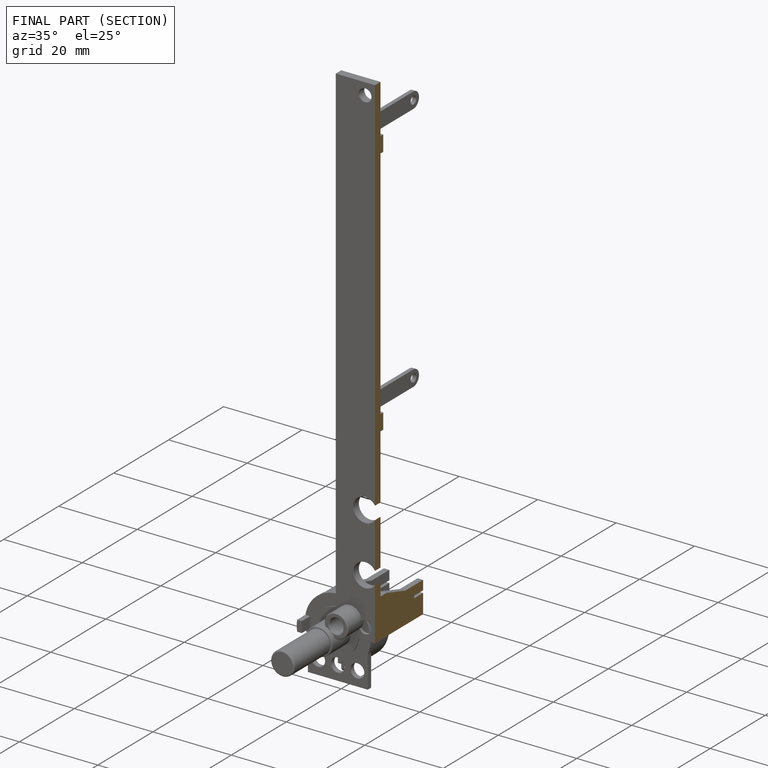
[diagram: finished part — half-section view (interior)]
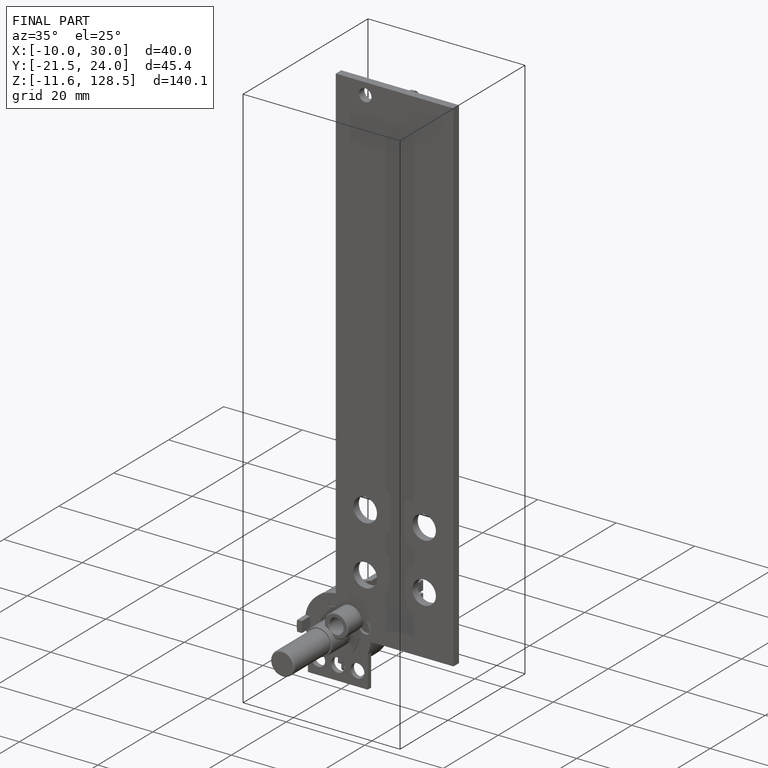
[diagram: finished part — iso view with bounding-box wireframe]
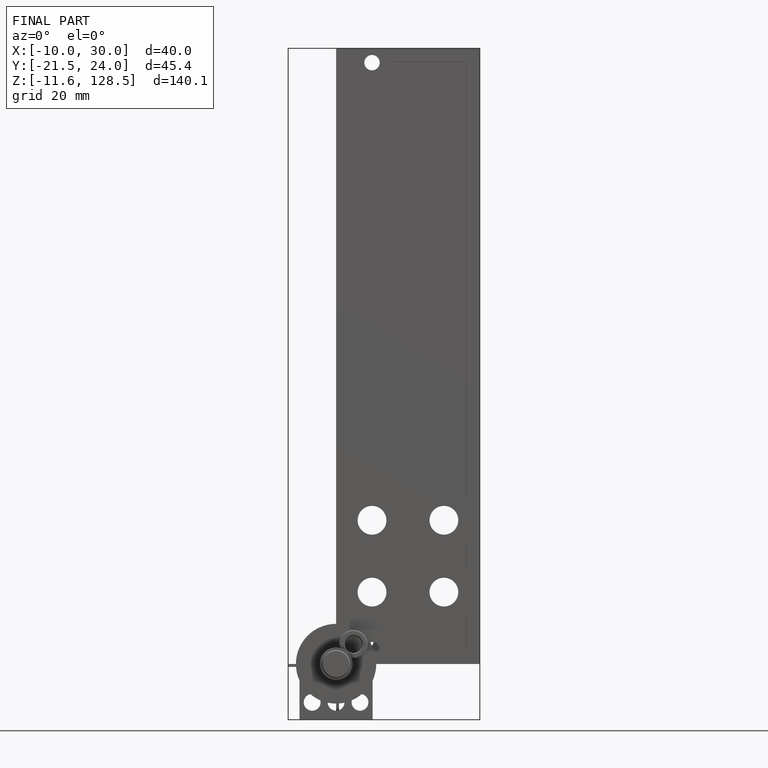
[diagram: finished part — front view with bounding-box wireframe]
